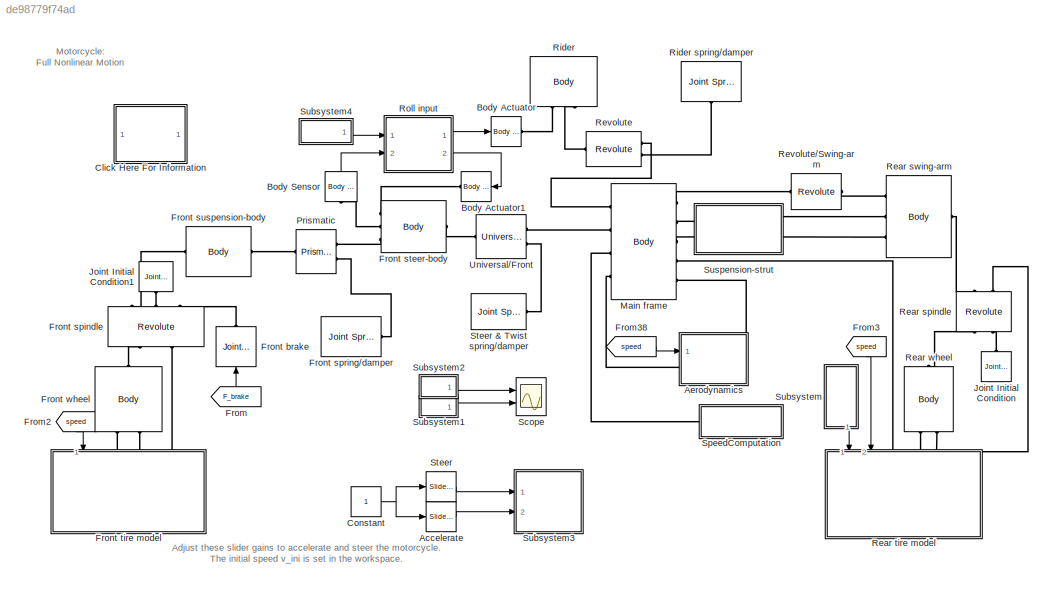
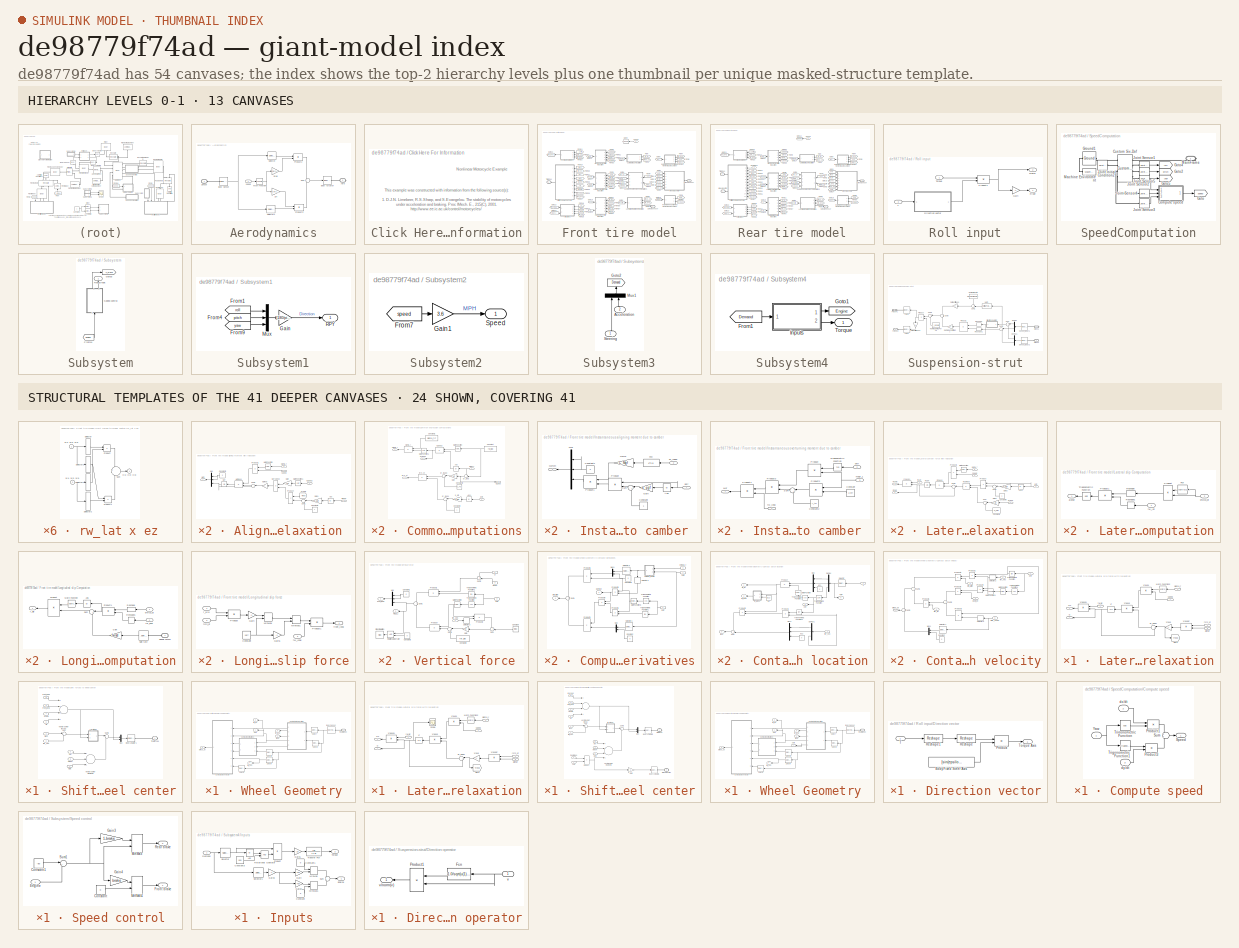
[diagram: thumbnail index - top-2 hierarchy levels (13 canvases) + 24 structural-template representatives of the remaining 41 canvases]
MODEL slx_de98779f74ad
KIND model
CONFIG AbsTol = 1e-4
CONFIG EnableMultiTasking = on
CONFIG FixedStep = 1e-3
CONFIG MaxStep = auto
CONFIG MinStep = auto
CONFIG PostLoadFcn = mech_slider_open(gcs)
CONFIG PreLoadFcn = mech_motorcycle_data_nonlinear
CONFIG RelTol = 1e-3
CONFIG SampleTimeConstraint = Unconstrained
CONFIG Solver = ode45
CONFIG SolverName = ode45
CONFIG StartTime = 0.0
CONFIG StopTime = inf
BLOCK [Reference] Accelerate  REF=simulink/Math
Operations/Slider
Gain
  Ports = [1, 1]
  SourceBlock = simulink/Math\nOperations/Slider\nGain
  SourceProductBaseCode = SL
  SourceProductName = Simulink
  SourceType = Slider Gain
  Tag = 341  295  330   98
BLOCK [SubSystem] Aerodynamics
  Ports = [1, 0, 0, 0, 0, 1, 1]
  RequestExecContextInheritance = off
  Variant = off
BLOCK [PMIOPort] Aerodynamics/Aero
  Port = 2
  Side = Right
BLOCK [Reference] Aerodynamics/Body Actuator  REF=mblibv1/Sensors & 
Actuators/Body Actuator
  Ports = [1, 0, 0, 0, 0, 0, 1]
  SourceBlock = mblibv1/Sensors & \nActuators/Body Actuator
  SourceProductBaseCode = MS
  SourceProductName = Simscape Multibody
  SourceType = Body Actuator
BLOCK [Reference] Aerodynamics/Body Sensor  REF=mblibv1/Sensors & 
Actuators/Body Sensor
  Ports = [0, 1, 0, 0, 0, 1]
  SourceBlock = mblibv1/Sensors & \nActuators/Body Sensor
  SourceProductBaseCode = MS
  SourceProductName = Simscape Multibody
  SourceType = Body Sensor
BLOCK [Gain] Aerodynamics/Drag
  Gain = -0.5*1.227*CDA
BLOCK [Gain] Aerodynamics/Lift
  Gain = -0.5*1.227*CLA
BLOCK [Math] Aerodynamics/Math Function
  Operator = square
  Ports = [1, 1]
BLOCK [Product] Aerodynamics/Product2
  Ports = [2, 1]
  RndMeth = Floor
BLOCK [Product] Aerodynamics/Product3
  Ports = [2, 1]
  RndMeth = Floor
BLOCK [Selector] Aerodynamics/Selector
  IndexOptions = Index vector (dialog)
  Indices = [1:3]
  InputPortWidth = 9
  OutputSizes = 1
  Ports = [1, 1]
BLOCK [Selector] Aerodynamics/Selector1
  IndexOptions = Index vector (dialog)
  Indices = [7:9]
  InputPortWidth = 9
  OutputSizes = 1
  Ports = [1, 1]
BLOCK [PMIOPort] Aerodynamics/Sensor
  Port = 1
  Side = Left
BLOCK [Sum] Aerodynamics/Sum
  IconShape = round
  Ports = [2, 1]
BLOCK [Inport] Aerodynamics/speed
  IconDisplay = Port number
BLOCK [Reference] Body Actuator  REF=mblibv1/Sensors & 
Actuators/Body Actuator
  Ports = [1, 0, 0, 0, 0, 0, 1]
  SourceBlock = mblibv1/Sensors & \nActuators/Body Actuator
  SourceProductBaseCode = MS
  SourceProductName = Simscape Multibody
  SourceType = Body Actuator
BLOCK [Reference] Body Actuator1  REF=mblibv1/Sensors & 
Actuators/Body Actuator
  Ports = [1, 0, 0, 0, 0, 0, 1]
  SourceBlock = mblibv1/Sensors & \nActuators/Body Actuator
  SourceProductBaseCode = MS
  SourceProductName = Simscape Multibody
  SourceType = Body Actuator
BLOCK [Reference] Body Sensor  REF=mblibv1/Sensors & 
Actuators/Body Sensor
  Ports = [0, 1, 0, 0, 0, 1]
  SourceBlock = mblibv1/Sensors & \nActuators/Body Sensor
  SourceProductBaseCode = MS
  SourceProductName = Simscape Multibody
  SourceType = Body Sensor
BLOCK [SubSystem] Click Here For Information
  Ports = []
  RequestExecContextInheritance = off
  Variant = off
BLOCK [Constant] Constant
BLOCK [From] From
  CloseFcn = tagdialog Close
  GotoTag = F_brake
BLOCK [From] From2
  CloseFcn = tagdialog Close
  GotoTag = speed
  TagVisibility = global
BLOCK [From] From3
  CloseFcn = tagdialog Close
  GotoTag = speed
  TagVisibility = global
BLOCK [From] From38
  CloseFcn = tagdialog Close
  GotoTag = speed
  TagVisibility = global
BLOCK [Reference] Front brake  REF=mblibv1/Sensors & 
Actuators/Joint Actuator
  Ports = [1, 0, 0, 0, 0, 0, 1]
  SourceBlock = mblibv1/Sensors & \nActuators/Joint Actuator
  SourceProductBaseCode = MS
  SourceProductName = Simscape Multibody
  SourceType = Joint Actuator
BLOCK [Reference] Front spindle  REF=mblibv1/Joints/Revolute
  Ports = [0, 0, 0, 0, 0, 3, 2]
  SourceBlock = mblibv1/Joints/Revolute
  SourceProductBaseCode = MS
  SourceProductName = Simscape Multibody
  SourceType = Revolute
BLOCK [Reference] Front spring//damper  REF=mblibv1/Force 
Elements/Joint Spring & Damper
  Ports = [0, 0, 0, 0, 0, 1]
  SourceBlock = mblibv1/Force \nElements/Joint Spring & Damper
  SourceProductBaseCode = MS
  SourceProductName = Simscape Multibody
  SourceType = Joint Spring & Damper
BLOCK [Reference] Front steer-body  REF=mblibv1/Bodies/Body
  Ports = [0, 0, 0, 0, 0, 1, 3]
  SourceBlock = mblibv1/Bodies/Body
  SourceProductBaseCode = MS
  SourceProductName = Simscape Multibody
  SourceType = Body
BLOCK [Reference] Front suspension-body  REF=mblibv1/Bodies/Body
  Ports = [0, 0, 0, 0, 0, 1, 1]
  SourceBlock = mblibv1/Bodies/Body
  SourceProductBaseCode = MS
  SourceProductName = Simscape Multibody
  SourceType = Body
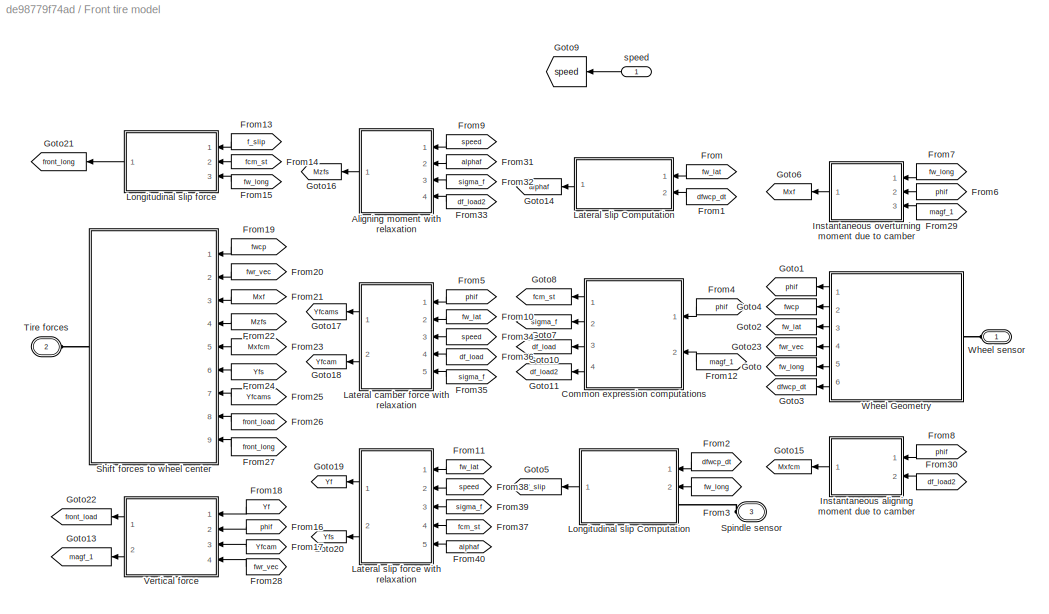
BLOCK [SubSystem] Front tire model
  Ports = [1, 0, 0, 0, 0, 3]
  RequestExecContextInheritance = off
  Variant = off
BLOCK [SubSystem] Front tire model/Aligning moment with relaxation 
  Ports = [4, 1]
  RequestExecContextInheritance = off
  Variant = off
BLOCK [Abs] Front tire model/Aligning moment with relaxation /Abs
  ZeroCross = off
BLOCK [Constant] Front tire model/Aligning moment with relaxation /Constant2
BLOCK [Constant] Front tire model/Aligning moment with relaxation /Constant3
  Value = 0
BLOCK [From] Front tire model/Aligning moment with relaxation /From3
  CloseFcn = tagdialog Close
  GotoTag = Yfexp
  TagVisibility = global
BLOCK [Gain] Front tire model/Aligning moment with relaxation /Gain
  Gain = t_pf
BLOCK [Gain] Front tire model/Aligning moment with relaxation /Gain1
  Gain = q_aaf
BLOCK [Math] Front tire model/Aligning moment with relaxation /Math Function
  Operator = reciprocal
  Ports = [1, 1]
BLOCK [Math] Front tire model/Aligning moment with relaxation /Math Function1
  Operator = sqrt
  Ports = [1, 1]
BLOCK [Mux] Front tire model/Aligning moment with relaxation /Mux
  DisplayOption = bar
  Inputs = 3
  Ports = [3, 1]
BLOCK [Integrator] Front tire model/Aligning moment with relaxation /Mzf
  Ports = [1, 1]
  ZeroCross = off
BLOCK [Gain] Front tire model/Aligning moment with relaxation /Mzfexp
  Gain = -1
BLOCK [Product] Front tire model/Aligning moment with relaxation /Mzfpexp
  Ports = [2, 1]
  RndMeth = Floor
BLOCK [Outport] Front tire model/Aligning moment with relaxation /Mzfs
  IconDisplay = Port number
BLOCK [Product] Front tire model/Aligning moment with relaxation /Mzr sdexp
  Ports = [2, 1]
  RndMeth = Floor
BLOCK [Product] Front tire model/Aligning moment with relaxation /Product
  Ports = [2, 1]
  RndMeth = Floor
BLOCK [Product] Front tire model/Aligning moment with relaxation /Product1
  Ports = [2, 1]
  RndMeth = Floor
BLOCK [Sum] Front tire model/Aligning moment with relaxation /Sum1
  IconShape = round
  Inputs = |-+
  Ports = [2, 1]
BLOCK [Sum] Front tire model/Aligning moment with relaxation /Sum2
  IconShape = round
  Inputs = |+-
  Ports = [2, 1]
BLOCK [Inport] Front tire model/Aligning moment with relaxation /alphaf
  IconDisplay = Port number
  Port = 2
BLOCK [Inport] Front tire model/Aligning moment with relaxation /df_load2
  IconDisplay = Port number
  Port = 4
BLOCK [Inport] Front tire model/Aligning moment with relaxation /sigma_f
  IconDisplay = Port number
  Port = 3
BLOCK [Inport] Front tire model/Aligning moment with relaxation /speed
  IconDisplay = Port number
BLOCK [SubSystem] Front tire model/Common expression computations
  Ports = [2, 4]
  RequestExecContextInheritance = off
  Variant = off
BLOCK [Abs] Front tire model/Common expression computations/Abs
  ZeroCross = off
BLOCK [Abs] Front tire model/Common expression computations/Abs1
  ZeroCross = off
BLOCK [Constant] Front tire model/Common expression computations/Constant
  Value = fw_ld0
BLOCK [Constant] Front tire model/Common expression computations/Constant1
  Value = sigma_fyf
BLOCK [Constant] Front tire model/Common expression computations/Constant2
BLOCK [Constant] Front tire model/Common expression computations/Constant3
  Value = C_Faf
BLOCK [Gain] Front tire model/Common expression computations/Gain
  Gain = n_af
BLOCK [Math] Front tire model/Common expression computations/Math Function
  Operator = reciprocal
  Ports = [1, 1]
BLOCK [Math] Front tire model/Common expression computations/Math Function1
  Operator = sqrt
  Ports = [1, 1]
BLOCK [Outport] Front tire model/Common expression computations/df_load  
  IconDisplay = Port number
  Port = 3
BLOCK [Product] Front tire model/Common expression computations/df_load2
  Ports = [2, 1]
  RndMeth = Floor
BLOCK [Outport] Front tire model/Common expression computations/df_load2 
  IconDisplay = Port number
  Port = 4
BLOCK [Sum] Front tire model/Common expression computations/dr_load
  IconShape = round
  Inputs = --|
  Ports = [2, 1]
BLOCK [Sum] Front tire model/Common expression computations/dr_load3
  IconShape = round
  Inputs = |++
  Ports = [2, 1]
BLOCK [Sum] Front tire model/Common expression computations/dr_load4
  IconShape = round
  Inputs = |-+
  Ports = [2, 1]
BLOCK [Product] Front tire model/Common expression computations/fcrn_st
  Ports = [2, 1]
  RndMeth = Floor
BLOCK [Outport] Front tire model/Common expression computations/fcrn_st 
  IconDisplay = Port number
BLOCK [Inport] Front tire model/Common expression computations/magf_1
  IconDisplay = Port number
  Port = 2
BLOCK [Gain] Front tire model/Common expression computations/p_a  fa
  Gain = p_agf
BLOCK [Inport] Front tire model/Common expression computations/phif
  IconDisplay = Port number
BLOCK [Outport] Front tire model/Common expression computations/sigma_f 
  IconDisplay = Port number
  Port = 2
BLOCK [Product] Front tire model/Common expression computations/sigma_r
  Ports = [2, 1]
  RndMeth = Floor
BLOCK [From] Front tire model/From
  CloseFcn = tagdialog Close
  GotoTag = fw_lat
BLOCK [From] Front tire model/From1
  CloseFcn = tagdialog Close
  GotoTag = dfwcp_dt
BLOCK [From] Front tire model/From10
  CloseFcn = tagdialog Close
  GotoTag = fw_lat
BLOCK [From] Front tire model/From11
  CloseFcn = tagdialog Close
  GotoTag = fw_lat
BLOCK [From] Front tire model/From12
  CloseFcn = tagdialog Close
  GotoTag = magf_1
  TagVisibility = global
BLOCK [From] Front tire model/From13
  CloseFcn = tagdialog Close
  GotoTag = f_slip
  TagVisibility = global
BLOCK [From] Front tire model/From14
  CloseFcn = tagdialog Close
  GotoTag = fcrn_st
  TagVisibility = global
BLOCK [From] Front tire model/From15
  CloseFcn = tagdialog Close
  GotoTag = fw_long
  TagVisibility = global
BLOCK [From] Front tire model/From16
  CloseFcn = tagdialog Close
  GotoTag = phif
BLOCK [From] Front tire model/From17
  CloseFcn = tagdialog Close
  GotoTag = Yfcam
  TagVisibility = global
BLOCK [From] Front tire model/From18
  CloseFcn = tagdialog Close
  GotoTag = Yf
  TagVisibility = global
BLOCK [From] Front tire model/From19
  CloseFcn = tagdialog Close
  GotoTag = fwcp
BLOCK [From] Front tire model/From2
  CloseFcn = tagdialog Close
  GotoTag = dfwcp_dt
BLOCK [From] Front tire model/From20
  CloseFcn = tagdialog Close
  GotoTag = fwr_vec
BLOCK [From] Front tire model/From21
  CloseFcn = tagdialog Close
  GotoTag = Mxf
  TagVisibility = global
BLOCK [From] Front tire model/From22
  CloseFcn = tagdialog Close
  GotoTag = Mzfs
  TagVisibility = global
BLOCK [From] Front tire model/From23
  CloseFcn = tagdialog Close
  GotoTag = Mxfcm
  TagVisibility = global
BLOCK [From] Front tire model/From24
  CloseFcn = tagdialog Close
  GotoTag = Yfs
  TagVisibility = global
BLOCK [From] Front tire model/From25
  CloseFcn = tagdialog Close
  GotoTag = Yfcams
  TagVisibility = global
BLOCK [From] Front tire model/From26
  CloseFcn = tagdialog Close
  GotoTag = front_load
  TagVisibility = global
BLOCK [From] Front tire model/From27
  CloseFcn = tagdialog Close
  GotoTag = front_long
  TagVisibility = global
BLOCK [From] Front tire model/From28
  CloseFcn = tagdialog Close
  GotoTag = fwr_vec
BLOCK [From] Front tire model/From29
  CloseFcn = tagdialog Close
  GotoTag = magf_1
  TagVisibility = global
BLOCK [From] Front tire model/From3
  CloseFcn = tagdialog Close
  GotoTag = fw_long
  TagVisibility = global
BLOCK [From] Front tire model/From30
  CloseFcn = tagdialog Close
  GotoTag = df_load2
BLOCK [From] Front tire model/From31
  CloseFcn = tagdialog Close
  GotoTag = alphaf
  TagVisibility = global
BLOCK [From] Front tire model/From32
  CloseFcn = tagdialog Close
  GotoTag = sigma_f
  TagVisibility = global
BLOCK [From] Front tire model/From33
  CloseFcn = tagdialog Close
  GotoTag = df_load2
BLOCK [From] Front tire model/From34
  CloseFcn = tagdialog Close
  GotoTag = speed
BLOCK [From] Front tire model/From35
  CloseFcn = tagdialog Close
  GotoTag = sigma_f
  TagVisibility = global
BLOCK [From] Front tire model/From36
  CloseFcn = tagdialog Close
  GotoTag = df_load
  TagVisibility = global
BLOCK [From] Front tire model/From37
  CloseFcn = tagdialog Close
  GotoTag = fcrn_st
  TagVisibility = global
BLOCK [From] Front tire model/From38
  CloseFcn = tagdialog Close
  GotoTag = speed
BLOCK [From] Front tire model/From39
  CloseFcn = tagdialog Close
  GotoTag = sigma_f
  TagVisibility = global
BLOCK [From] Front tire model/From4
  CloseFcn = tagdialog Close
  GotoTag = phif
BLOCK [From] Front tire model/From40
  CloseFcn = tagdialog Close
  GotoTag = alphaf
  TagVisibility = global
BLOCK [From] Front tire model/From5
  CloseFcn = tagdialog Close
  GotoTag = phif
BLOCK [From] Front tire model/From6
  CloseFcn = tagdialog Close
  GotoTag = phif
BLOCK [From] Front tire model/From7
  CloseFcn = tagdialog Close
  GotoTag = fw_long
  TagVisibility = global
BLOCK [From] Front tire model/From8
  CloseFcn = tagdialog Close
  GotoTag = phif
BLOCK [From] Front tire model/From9
  CloseFcn = tagdialog Close
  GotoTag = speed
BLOCK [Goto] Front tire model/Goto
  GotoTag = fw_long
  TagVisibility = global
BLOCK [Goto] Front tire model/Goto1
  GotoTag = phif
BLOCK [Goto] Front tire model/Goto10
  GotoTag = df_load
  TagVisibility = global
BLOCK [Goto] Front tire model/Goto11
  GotoTag = df_load2
BLOCK [Goto] Front tire model/Goto13
  GotoTag = magf_1
  TagVisibility = global
BLOCK [Goto] Front tire model/Goto14
  GotoTag = alphaf
  TagVisibility = global
BLOCK [Goto] Front tire model/Goto15
  GotoTag = Mxfcm
  TagVisibility = global
BLOCK [Goto] Front tire model/Goto16
  GotoTag = Mzfs
  TagVisibility = global
BLOCK [Goto] Front tire model/Goto17
  GotoTag = Yfcams
  TagVisibility = global
BLOCK [Goto] Front tire model/Goto18
  GotoTag = Yfcam
  TagVisibility = global
BLOCK [Goto] Front tire model/Goto19
  GotoTag = Yf
  TagVisibility = global
BLOCK [Goto] Front tire model/Goto2
  GotoTag = fw_lat
BLOCK [Goto] Front tire model/Goto20
  GotoTag = Yfs
  TagVisibility = global
BLOCK [Goto] Front tire model/Goto21
  GotoTag = front_long
  TagVisibility = global
BLOCK [Goto] Front tire model/Goto22
  GotoTag = front_load
  TagVisibility = global
BLOCK [Goto] Front tire model/Goto23
  GotoTag = fwr_vec
BLOCK [Goto] Front tire model/Goto3
  GotoTag = dfwcp_dt
BLOCK [Goto] Front tire model/Goto4
  GotoTag = fwcp
BLOCK [Goto] Front tire model/Goto5
  GotoTag = f_slip
  TagVisibility = global
BLOCK [Goto] Front tire model/Goto6
  GotoTag = Mxf
  TagVisibility = global
BLOCK [Goto] Front tire model/Goto7
  GotoTag = sigma_f
  TagVisibility = global
BLOCK [Goto] Front tire model/Goto8
  GotoTag = fcrn_st
  TagVisibility = global
BLOCK [Goto] Front tire model/Goto9
  GotoTag = speed
BLOCK [SubSystem] Front tire model/Instantaneous aligning moment due to camber 
  Ports = [2, 1]
  RequestExecContextInheritance = off
  Variant = off
BLOCK [Abs] Front tire model/Instantaneous aligning moment due to camber /Abs
  ZeroCross = off
BLOCK [Constant] Front tire model/Instantaneous aligning moment due to camber /Constant
BLOCK [Constant] Front tire model/Instantaneous aligning moment due to camber /Constant1
  Value = 0
BLOCK [Fcn] Front tire model/Instantaneous aligning moment due to camber /Fcn
  Expr = u^2.5
BLOCK [Gain] Front tire model/Instantaneous aligning moment due to camber /Gain
  Gain = q_ggf
BLOCK [Gain] Front tire model/Instantaneous aligning moment due to camber /Gain1
  Gain = C_Mgf
BLOCK [Mux] Front tire model/Instantaneous aligning moment due to camber /Mux
  DisplayOption = bar
  Inputs = 3
  Ports = [3, 1]
BLOCK [Outport] Front tire model/Instantaneous aligning moment due to camber /Mzfcm
  IconDisplay = Port number
BLOCK [Product] Front tire model/Instantaneous aligning moment due to camber /Product
  Ports = [2, 1]
  RndMeth = Floor
BLOCK [Product] Front tire model/Instantaneous aligning moment due to camber /Product1
  Ports = [2, 1]
  RndMeth = Floor
BLOCK [Sum] Front tire model/Instantaneous aligning moment due to camber /Sum
  IconShape = round
  Inputs = |++
  Ports = [2, 1]
BLOCK [Inport] Front tire model/Instantaneous aligning moment due to camber /df_load2
  IconDisplay = Port number
  Port = 2
BLOCK [Inport] Front tire model/Instantaneous aligning moment due to camber /phif
  IconDisplay = Port number
BLOCK [SubSystem] Front tire model/Instantaneous overturning moment due to camber 
  Ports = [3, 1]
  RequestExecContextInheritance = off
  Variant = off
BLOCK [Constant] Front tire model/Instantaneous overturning moment due to camber /Constant
  Value = 1/Ktf
BLOCK [Constant] Front tire model/Instantaneous overturning moment due to camber /Constant2
  Value = r_tcf
BLOCK [Outport] Front tire model/Instantaneous overturning moment due to camber /Mxf
  IconDisplay = Port number
BLOCK [Product] Front tire model/Instantaneous overturning moment due to camber /Product
  Ports = [2, 1]
  RndMeth = Floor
BLOCK [Product] Front tire model/Instantaneous overturning moment due to camber /Product2
  Ports = [2, 1]
  RndMeth = Floor
BLOCK [Product] Front tire model/Instantaneous overturning moment due to camber /Product3
  Ports = [2, 1]
  RndMeth = Floor
BLOCK [Product] Front tire model/Instantaneous overturning moment due to camber /Product4
  Ports = [2, 1]
  RndMeth = Floor
BLOCK [Sum] Front tire model/Instantaneous overturning moment due to camber /Sum
  IconShape = round
  Inputs = |++
  Ports = [2, 1]
BLOCK [Trigonometry] Front tire model/Instantaneous overturning moment due to camber /Trigonometric Function
  Operator = tan
  Ports = [1, 1]
BLOCK [Inport] Front tire model/Instantaneous overturning moment due to camber /fw_long
  IconDisplay = Port number
BLOCK [Inport] Front tire model/Instantaneous overturning moment due to camber /magf_1
  IconDisplay = Port number
  Port = 3
BLOCK [Inport] Front tire model/Instantaneous overturning moment due to camber /phif
  IconDisplay = Port number
  Port = 2
BLOCK [SubSystem] Front tire model/Lateral camber force with relaxation 
  Ports = [5, 2]
  RequestExecContextInheritance = off
  Variant = off
BLOCK [Abs] Front tire model/Lateral camber force with relaxation /Abs2
  ZeroCross = off
BLOCK [Constant] Front tire model/Lateral camber force with relaxation /Constant4
  Value = C_Fgf
BLOCK [Constant] Front tire model/Lateral camber force with relaxation /Constant5
BLOCK [Gain] Front tire model/Lateral camber force with relaxation /Gain1
  Gain = n_gf
BLOCK [Gain] Front tire model/Lateral camber force with relaxation /Gain2
  Gain = p_ggf
BLOCK [Math] Front tire model/Lateral camber force with relaxation /Math Function
  Operator = reciprocal
  Ports = [1, 1]
BLOCK [Product] Front tire model/Lateral camber force with relaxation /Product
  Ports = [2, 1]
  RndMeth = Floor
BLOCK [Product] Front tire model/Lateral camber force with relaxation /Product1
  Ports = [2, 1]
  RndMeth = Floor
BLOCK [Sum] Front tire model/Lateral camber force with relaxation /Sum
  IconShape = round
  Inputs = |++
  Ports = [2, 1]
BLOCK [Sum] Front tire model/Lateral camber force with relaxation /Sum1
  IconShape = round
  Inputs = |-+
  Ports = [2, 1]
BLOCK [Sum] Front tire model/Lateral camber force with relaxation /Sum2
  IconShape = round
  Inputs = |+-
  Ports = [2, 1]
BLOCK [Integrator] Front tire model/Lateral camber force with relaxation /Yfcam
  Ports = [1, 1]
  ZeroCross = off
BLOCK [Outport] Front tire model/Lateral camber force with relaxation /Yfcam 
  IconDisplay = Port number
  Port = 2
BLOCK [Product] Front tire model/Lateral camber force with relaxation /Yfcamexp  
  Ports = [2, 1]
  RndMeth = Floor
BLOCK [Outport] Front tire model/Lateral camber force with relaxation /Yfcams
  IconDisplay = Port number
BLOCK [Product] Front tire model/Lateral camber force with relaxation /Yfcpexp
  Ports = [2, 1]
  RndMeth = Floor
BLOCK [Product] Front tire model/Lateral camber force with relaxation /Yrpexp1
  Ports = [2, 1]
  RndMeth = Floor
BLOCK [Inport] Front tire model/Lateral camber force with relaxation /df_load
  IconDisplay = Port number
  Port = 4
BLOCK [Inport] Front tire model/Lateral camber force with relaxation /fw_lat
  IconDisplay = Port number
  Port = 2
BLOCK [Inport] Front tire model/Lateral camber force with relaxation /phif
  IconDisplay = Port number
BLOCK [Inport] Front tire model/Lateral camber force with relaxation /sigma_f
  IconDisplay = Port number
  Port = 5
BLOCK [Inport] Front tire model/Lateral camber force with relaxation /speed
  IconDisplay = Port number
  Port = 3
BLOCK [SubSystem] Front tire model/Lateral slip Computation
  Ports = [2, 1]
  RequestExecContextInheritance = off
  Variant = off
BLOCK [Fcn] Front tire model/Lateral slip Computation/Fcn
  Expr = 1.0/sqrt(u[1]*u[1] + u[2]*u[2] + u[3]*u[3])
BLOCK [Product] Front tire model/Lateral slip Computation/Product
  Ports = [2, 1]
  RndMeth = Floor
BLOCK [Product] Front tire model/Lateral slip Computation/Product1
  Multiplication = Matrix(*)
  Ports = [2, 1]
  RndMeth = Floor
BLOCK [Reshape] Front tire model/Lateral slip Computation/Reshape
  OutputDimensionality = Row vector (2-D)
  Ports = [1, 1]
BLOCK [Reshape] Front tire model/Lateral slip Computation/Reshape1
  OutputDimensionality = Column vector (2-D)
  Ports = [1, 1]
BLOCK [Trigonometry] Front tire model/Lateral slip Computation/Trigonometric Function
  Operator = asin
  Ports = [1, 1]
BLOCK [Outport] Front tire model/Lateral slip Computation/alphaf
  IconDisplay = Port number
BLOCK [Inport] Front tire model/Lateral slip Computation/dfwcp_dt
  IconDisplay = Port number
  Port = 2
BLOCK [Inport] Front tire model/Lateral slip Computation/fw_lat
  IconDisplay = Port number
BLOCK [SubSystem] Front tire model/Lateral slip force with relaxation
  Ports = [5, 2]
  RequestExecContextInheritance = off
  Variant = off
BLOCK [Goto] Front tire model/Lateral slip force with relaxation/Goto
  GotoTag = Yfexp
  TagVisibility = global
BLOCK [Math] Front tire model/Lateral slip force with relaxation/Math Function2
  Operator = reciprocal
  Ports = [1, 1]
BLOCK [Integrator] Front tire model/Lateral slip force with relaxation/Yf
  Ports = [1, 1]
  ZeroCross = off
BLOCK [Outport] Front tire model/Lateral slip force with relaxation/Yf 
  IconDisplay = Port number
BLOCK [Gain] Front tire model/Lateral slip force with relaxation/Yfexp
  Gain = -1
BLOCK [Product] Front tire model/Lateral slip force with relaxation/Yfpexp
  Ports = [2, 1]
  RndMeth = Floor
BLOCK [Outport] Front tire model/Lateral slip force with relaxation/Yfs
  IconDisplay = Port number
  Port = 2
BLOCK [Product] Front tire model/Lateral slip force with relaxation/Yrexp1
  Ports = [2, 1]
  RndMeth = Floor
BLOCK [Product] Front tire model/Lateral slip force with relaxation/Yrexpaf
  Ports = [2, 1]
  RndMeth = Floor
BLOCK [Product] Front tire model/Lateral slip force with relaxation/Yrpexp1
  Ports = [2, 1]
  RndMeth = Floor
BLOCK [Inport] Front tire model/Lateral slip force with relaxation/alphaf
  IconDisplay = Port number
  Port = 5
BLOCK [Sum] Front tire model/Lateral slip force with relaxation/dr_load1
  IconShape = round
  Inputs = |+-
  Ports = [2, 1]
BLOCK [Inport] Front tire model/Lateral slip force with relaxation/fcrn_st
  IconDisplay = Port number
  Port = 4
BLOCK [Inport] Front tire model/Lateral slip force with relaxation/fw_lat
  IconDisplay = Port number
BLOCK [Inport] Front tire model/Lateral slip force with relaxation/sigma_f
  IconDisplay = Port number
  Port = 3
BLOCK [Inport] Front tire model/Lateral slip force with relaxation/speed
  IconDisplay = Port number
  Port = 2
BLOCK [SubSystem] Front tire model/Longitudinal slip Computation
  Ports = [2, 1, 0, 0, 0, 1]
  RequestExecContextInheritance = off
  Variant = off
BLOCK [Abs] Front tire model/Longitudinal slip Computation/Abs
  ZeroCross = off
BLOCK [Gain] Front tire model/Longitudinal slip Computation/Gain
  Gain = fwrad
BLOCK [Math] Front tire model/Longitudinal slip Computation/Math Function
  Operator = reciprocal
  Ports = [1, 1]
BLOCK [Product] Front tire model/Longitudinal slip Computation/Product
  Ports = [2, 1]
  RndMeth = Floor
BLOCK [Product] Front tire model/Longitudinal slip Computation/Product1
  Multiplication = Matrix(*)
  Ports = [2, 1]
  RndMeth = Floor
BLOCK [Reshape] Front tire model/Longitudinal slip Computation/Reshape
  OutputDimensionality = Row vector (2-D)
  Ports = [1, 1]
BLOCK [Reshape] Front tire model/Longitudinal slip Computation/Reshape1
  OutputDimensionality = Column vector (2-D)
  Ports = [1, 1]
BLOCK [Reference] Front tire model/Longitudinal slip Computation/Spin rate  REF=mblibv1/Sensors & 
Actuators/Joint Sensor
  Ports = [0, 1, 0, 0, 0, 1]
  SourceBlock = mblibv1/Sensors & \nActuators/Joint Sensor
  SourceProductBaseCode = MS
  SourceProductName = Simscape Multibody
  SourceType = Joint Sensor
BLOCK [PMIOPort] Front tire model/Longitudinal slip Computation/Spindle sensor
  Port = 1
  Side = Left
  Tag = PMCPort
BLOCK [Sum] Front tire model/Longitudinal slip Computation/Sum
  IconShape = round
  Inputs = |++
  Ports = [2, 1]
BLOCK [Inport] Front tire model/Longitudinal slip Computation/dfwcp_dt
  IconDisplay = Port number
BLOCK [Outport] Front tire model/Longitudinal slip Computation/f_slip
  IconDisplay = Port number
BLOCK [Inport] Front tire model/Longitudinal slip Computation/fw_long
  IconDisplay = Port number
  Port = 2
BLOCK [SubSystem] Front tire model/Longitudinal slip force
  Ports = [3, 1]
  RequestExecContextInheritance = off
  Variant = off
BLOCK [Constant] Front tire model/Longitudinal slip force/Constant
  Value = satf
BLOCK [Gain] Front tire model/Longitudinal slip force/Gain
  Gain = -1
BLOCK [Gain] Front tire model/Longitudinal slip force/Gain1
  Gain = -1
BLOCK [MinMax] Front tire model/Longitudinal slip force/MinMax
  Inputs = 2
  Ports = [2, 1]
  ZeroCross = off
BLOCK [MinMax] Front tire model/Longitudinal slip force/MinMax1
  Function = max
  Inputs = 2
  Ports = [2, 1]
  ZeroCross = off
BLOCK [Product] Front tire model/Longitudinal slip force/Product
  Ports = [2, 1]
  RndMeth = Floor
BLOCK [Product] Front tire model/Longitudinal slip force/Product1
  Ports = [2, 1]
  RndMeth = Floor
BLOCK [Inport] Front tire model/Longitudinal slip force/f_slip
  IconDisplay = Port number
BLOCK [Inport] Front tire model/Longitudinal slip force/fcrn_st
  IconDisplay = Port number
  Port = 2
BLOCK [Outport] Front tire model/Longitudinal slip force/front_long
  IconDisplay = Port number
BLOCK [Inport] Front tire model/Longitudinal slip force/fw_long
  IconDisplay = Port number
  Port = 3
BLOCK [SubSystem] Front tire model/Shift forces to wheel center
  Ports = [9, 0, 0, 0, 0, 0, 1]
  RequestExecContextInheritance = off
  Variant = off
BLOCK [Reference] Front tire model/Shift forces to wheel center/Body Actuator1  REF=mblibv1/Sensors & 
Actuators/Body Actuator
  Ports = [1, 0, 0, 0, 0, 0, 1]
  SourceBlock = mblibv1/Sensors & \nActuators/Body Actuator
  SourceProductBaseCode = MS
  SourceProductName = Simscape Multibody
  SourceType = Body Actuator
BLOCK [Mux] Front tire model/Shift forces to wheel center/Mux
  DisplayOption = bar
  Inputs = 2
  Ports = [2, 1]
BLOCK [Inport] Front tire model/Shift forces to wheel center/Mxf
  IconDisplay = Port number
  Port = 3
BLOCK [Inport] Front tire model/Shift forces to wheel center/Mxfcm
  IconDisplay = Port number
  Port = 5
BLOCK [Inport] Front tire model/Shift forces to wheel center/Mzfs
  IconDisplay = Port number
  Port = 4
BLOCK [Sum] Front tire model/Shift forces to wheel center/Sum
  IconShape = round
  Inputs = |+-
  Ports = [2, 1]
BLOCK [Sum] Front tire model/Shift forces to wheel center/Sum3
  IconShape = round
  Inputs = |++
  Ports = [2, 1]
BLOCK [PMIOPort] Front tire model/Shift forces to wheel center/Tire forces
  Port = 1
  Side = Right
  Tag = PMCPort
BLOCK [Sum] Front tire model/Shift forces to wheel center/Vector sum of forces
  Inputs = ++++
  Ports = [4, 1]
BLOCK [Sum] Front tire model/Shift forces to wheel center/Vector sum of moments
  Inputs = +++
  Ports = [3, 1]
BLOCK [Inport] Front tire model/Shift forces to wheel center/Yfcams
  IconDisplay = Port number
  Port = 7
BLOCK [Inport] Front tire model/Shift forces to wheel center/Yfs
  IconDisplay = Port number
  Port = 6
BLOCK [Inport] Front tire model/Shift forces to wheel center/front_load
  IconDisplay = Port number
  Port = 8
BLOCK [Inport] Front tire model/Shift forces to wheel center/front_long
  IconDisplay = Port number
  Port = 9
BLOCK [Inport] Front tire model/Shift forces to wheel center/fwcp
  IconDisplay = Port number
BLOCK [Inport] Front tire model/Shift forces to wheel center/fwr_vec
  IconDisplay = Port number
  Port = 2
BLOCK [SubSystem] Front tire model/Shift forces to wheel center/rw_lat x ez
  Ports = [2, 1]
  RequestExecContextInheritance = off
  ShowPortLabels = none
  Variant = off
BLOCK [Product] Front tire model/Shift forces to wheel center/rw_lat x ez/Product
  Ports = [2, 1]
BLOCK [Product] Front tire model/Shift forces to wheel center/rw_lat x ez/Product1
  Ports = [2, 1]
BLOCK [Selector] Front tire model/Shift forces to wheel center/rw_lat x ez/Selector
  IndexOptions = Index vector (dialog)
  Indices = [2 3 1]
  InputPortWidth = 3
  OutputSizes = 1
  Ports = [1, 1]
BLOCK [Selector] Front tire model/Shift forces to wheel center/rw_lat x ez/Selector1
  IndexOptions = Index vector (dialog)
  Indices = [3 1 2]
  InputPortWidth = 3
  OutputSizes = 1
  Ports = [1, 1]
BLOCK [Selector] Front tire model/Shift forces to wheel center/rw_lat x ez/Selector2
  IndexOptions = Index vector (dialog)
  Indices = [2 3 1]
  InputPortWidth = 3
  OutputSizes = 1
  Ports = [1, 1]
BLOCK [Selector] Front tire model/Shift forces to wheel center/rw_lat x ez/Selector3
  IndexOptions = Index vector (dialog)
  Indices = [3 1 2]
  InputPortWidth = 3
  OutputSizes = 1
  Ports = [1, 1]
BLOCK [Sum] Front tire model/Shift forces to wheel center/rw_lat x ez/Sum
  IconShape = round
  Inputs = +|-
  Ports = [2, 1]
BLOCK [Inport] Front tire model/Shift forces to wheel center/rw_lat x ez/a(1) a(2) a(3)
  IconDisplay = Port number
BLOCK [Inport] Front tire model/Shift forces to wheel center/rw_lat x ez/b(1) b(2) b(3)
  IconDisplay = Port number
  Port = 2
BLOCK [Outport] Front tire model/Shift forces to wheel center/rw_lat x ez/c(1) c(2) c(3)
  IconDisplay = Port number
  InitialOutput = 0
BLOCK [PMIOPort] Front tire model/Spindle sensor
  Port = 3
  Side = Left
  Tag = PMCPort
BLOCK [PMIOPort] Front tire model/Tire forces
  Port = 2
  Side = Left
  Tag = PMCPort
BLOCK [SubSystem] Front tire model/Vertical force
  Ports = [4, 2]
  RequestExecContextInheritance = off
  Variant = off
BLOCK [Constant] Front tire model/Vertical force/Constant
  Value = fwrad
BLOCK [Constant] Front tire model/Vertical force/Constant1
  Value = 0
BLOCK [Constant] Front tire model/Vertical force/Constant2
  Value = fw_ld0
BLOCK [Constant] Front tire model/Vertical force/Constant3
  Value = 0
BLOCK [Gain] Front tire model/Vertical force/Gain
  Gain = Ktf
BLOCK [Math] Front tire model/Vertical force/Math Function
  Operator = reciprocal
  Ports = [1, 1]
BLOCK [Mux] Front tire model/Vertical force/Mux
  DisplayOption = bar
  Inputs = 3
  Ports = [3, 1]
BLOCK [Product] Front tire model/Vertical force/Product
  Ports = [2, 1]
  RndMeth = Floor
BLOCK [Product] Front tire model/Vertical force/Product1
  Ports = [2, 1]
  RndMeth = Floor
BLOCK [Product] Front tire model/Vertical force/Product2
  Ports = [2, 1]
  RndMeth = Floor
BLOCK [RelationalOperator] Front tire model/Vertical force/Relational Operator
  Ports = [2, 1]
  ZeroCross = off
BLOCK [Selector] Front tire model/Vertical force/Selector3
  IndexOptions = Index vector (dialog)
  Indices = 3
  InputPortWidth = 3
  OutputSizes = 1
  Ports = [1, 1]
BLOCK [Stop] Front tire model/Vertical force/Stop Simulation
BLOCK [Sum] Front tire model/Vertical force/Sum
  IconShape = round
  Inputs = ++|
  Ports = [2, 1]
BLOCK [Sum] Front tire model/Vertical force/Sum1
  IconShape = round
  Inputs = +-
  Ports = [2, 1]
BLOCK [Sum] Front tire model/Vertical force/Sum2
  IconShape = round
  Ports = [2, 1]
BLOCK [Sum] Front tire model/Vertical force/Sum3
  IconShape = round
  Inputs = |++
  Ports = [2, 1]
BLOCK [Trigonometry] Front tire model/Vertical force/Trigonometric Function
  Operator = cos
  Ports = [1, 1]
BLOCK [Trigonometry] Front tire model/Vertical force/Trigonometric Function1
  Operator = tan
  Ports = [1, 1]
BLOCK [Inport] Front tire model/Vertical force/Yf
  IconDisplay = Port number
BLOCK [Inport] Front tire model/Vertical force/Yfcam
  IconDisplay = Port number
  Port = 3
BLOCK [Outport] Front tire model/Vertical force/front_load
  IconDisplay = Port number
BLOCK [Inport] Front tire model/Vertical force/fwr_vec
  IconDisplay = Port number
  Port = 4
BLOCK [Outport] Front tire model/Vertical force/magf_1 
  IconDisplay = Port number
  Port = 2
BLOCK [Inport] Front tire model/Vertical force/phif
  IconDisplay = Port number
  Port = 2
BLOCK [SubSystem] Front tire model/Wheel Geometry
  Ports = [0, 6, 0, 0, 0, 1]
  RequestExecContextInheritance = off
  Variant = off
BLOCK [Reference] Front tire model/Wheel Geometry/Body Sensor  REF=mblibv1/Sensors & 
Actuators/Body Sensor
  Ports = [0, 1, 0, 0, 0, 1]
  SourceBlock = mblibv1/Sensors & \nActuators/Body Sensor
  SourceProductBaseCode = MS
  SourceProductName = Simscape Multibody
  SourceType = Body Sensor
BLOCK [SubSystem] Front tire model/Wheel Geometry/Compute derivatives
  Ports = [3, 2]
  RequestExecContextInheritance = off
  Variant = off
BLOCK [Constant] Front tire model/Wheel Geometry/Compute derivatives/Constant
  Value = 0
BLOCK [Constant] Front tire model/Wheel Geometry/Compute derivatives/Constant1
  Value = 0
BLOCK [Math] Front tire model/Wheel Geometry/Compute derivatives/Math Function3
  Operator = reciprocal
  Ports = [1, 1]
BLOCK [Mux] Front tire model/Wheel Geometry/Compute derivatives/Mux
  DisplayOption = bar
  Inputs = 2
  Ports = [2, 1]
BLOCK [Mux] Front tire model/Wheel Geometry/Compute derivatives/Mux1
  DisplayOption = bar
  Inputs = 2
  Ports = [2, 1]
BLOCK [Product] Front tire model/Wheel Geometry/Compute derivatives/Product1
  Ports = [2, 1]
  RndMeth = Floor
BLOCK [Product] Front tire model/Wheel Geometry/Compute derivatives/Product5
  Ports = [2, 1]
  RndMeth = Floor
BLOCK [Product] Front tire model/Wheel Geometry/Compute derivatives/Product6
  Ports = [2, 1]
  RndMeth = Floor
BLOCK [Product] Front tire model/Wheel Geometry/Compute derivatives/Product8
  Ports = [2, 1]
  RndMeth = Floor
BLOCK [Product] Front tire model/Wheel Geometry/Compute derivatives/Product9
  Ports = [2, 1]
  RndMeth = Floor
BLOCK [Selector] Front tire model/Wheel Geometry/Compute derivatives/Selector1
  IndexOptions = Index vector (dialog)
  Indices = [1 2]
  InputPortWidth = 3
  OutputSizes = 1
  Ports = [1, 1]
BLOCK [Selector] Front tire model/Wheel Geometry/Compute derivatives/Selector2
  IndexOptions = Index vector (dialog)
  Indices = [1 2]
  InputPortWidth = 3
  OutputSizes = 1
  Ports = [1, 1]
BLOCK [Selector] Front tire model/Wheel Geometry/Compute derivatives/Selector3
  IndexOptions = Index vector (dialog)
  Indices = 3
  InputPortWidth = 3
  OutputSizes = 1
  Ports = [1, 1]
BLOCK [Sum] Front tire model/Wheel Geometry/Compute derivatives/Sum1
  IconShape = round
  Ports = [2, 1]
BLOCK [Trigonometry] Front tire model/Wheel Geometry/Compute derivatives/Trigonometric Function
  Operator = cos
  Ports = [1, 1]
BLOCK [Trigonometry] Front tire model/Wheel Geometry/Compute derivatives/Trigonometric Function1
  Operator = tan
  Ports = [1, 1]
BLOCK [Outport] Front tire model/Wheel Geometry/Compute derivatives/dfw_lat//dt
  IconDisplay = Port number
BLOCK [Outport] Front tire model/Wheel Geometry/Compute derivatives/dphif_dt
  IconDisplay = Port number
  Port = 2
BLOCK [Inport] Front tire model/Wheel Geometry/Compute derivatives/omega_f
  IconDisplay = Port number
  Port = 3
BLOCK [SubSystem] Front tire model/Wheel Geometry/Compute derivatives/omega_f x spin
  Ports = [2, 1]
  RequestExecContextInheritance = off
  ShowPortLabels = none
  Variant = off
BLOCK [Product] Front tire model/Wheel Geometry/Compute derivatives/omega_f x spin/Product
  Ports = [2, 1]
BLOCK [Product] Front tire model/Wheel Geometry/Compute derivatives/omega_f x spin/Product1
  Ports = [2, 1]
BLOCK [Selector] Front tire model/Wheel Geometry/Compute derivatives/omega_f x spin/Selector
  IndexOptions = Index vector (dialog)
  Indices = [2 3 1]
  InputPortWidth = 3
  OutputSizes = 1
  Ports = [1, 1]
BLOCK [Selector] Front tire model/Wheel Geometry/Compute derivatives/omega_f x spin/Selector1
  IndexOptions = Index vector (dialog)
  Indices = [3 1 2]
  InputPortWidth = 3
  OutputSizes = 1
  Ports = [1, 1]
BLOCK [Selector] Front tire model/Wheel Geometry/Compute derivatives/omega_f x spin/Selector2
  IndexOptions = Index vector (dialog)
  Indices = [2 3 1]
  InputPortWidth = 3
  OutputSizes = 1
  Ports = [1, 1]
BLOCK [Selector] Front tire model/Wheel Geometry/Compute derivatives/omega_f x spin/Selector3
  IndexOptions = Index vector (dialog)
  Indices = [3 1 2]
  InputPortWidth = 3
  OutputSizes = 1
  Ports = [1, 1]
BLOCK [Sum] Front tire model/Wheel Geometry/Compute derivatives/omega_f x spin/Sum
  IconShape = round
  Inputs = +|-
  Ports = [2, 1]
BLOCK [Inport] Front tire model/Wheel Geometry/Compute derivatives/omega_f x spin/a(1) a(2) a(3)
  IconDisplay = Port number
BLOCK [Inport] Front tire model/Wheel Geometry/Compute derivatives/omega_f x spin/b(1) b(2) b(3)
  IconDisplay = Port number
  Port = 2
BLOCK [Outport] Front tire model/Wheel Geometry/Compute derivatives/omega_f x spin/c(1) c(2) c(3)
  IconDisplay = Port number
  InitialOutput = 0
BLOCK [Inport] Front tire model/Wheel Geometry/Compute derivatives/phif
  IconDisplay = Port number
BLOCK [Inport] Front tire model/Wheel Geometry/Compute derivatives/spin
  IconDisplay = Port number
  Port = 2
BLOCK [SubSystem] Front tire model/Wheel Geometry/Contact patch location
  Ports = [2, 5]
  RequestExecContextInheritance = off
  Variant = off
BLOCK [Demux] Front tire model/Wheel Geometry/Contact patch location/Demux
  Outputs = 3
  Ports = [1, 3]
BLOCK [Demux] Front tire model/Wheel Geometry/Contact patch location/Demux1
  Outputs = 3
  Ports = [1, 3]
BLOCK [Math] Front tire model/Wheel Geometry/Contact patch location/Math Function
  Operator = reciprocal
  Ports = [1, 1]
BLOCK [Mux] Front tire model/Wheel Geometry/Contact patch location/Mux
  DisplayOption = bar
  Inputs = 3
  Ports = [3, 1]
BLOCK [Mux] Front tire model/Wheel Geometry/Contact patch location/Mux1
  DisplayOption = bar
  Inputs = 3
  Ports = [3, 1]
BLOCK [Product] Front tire model/Wheel Geometry/Contact patch location/Product
  Ports = [2, 1]
  RndMeth = Floor
BLOCK [Product] Front tire model/Wheel Geometry/Contact patch location/Product1
  Ports = [2, 1]
  RndMeth = Floor
BLOCK [Product] Front tire model/Wheel Geometry/Contact patch location/Product6
  Ports = [2, 1]
  RndMeth = Floor
BLOCK [Selector] Front tire model/Wheel Geometry/Contact patch location/Selector
  IndexOptions = Index vector (dialog)
  Indices = [4:6]
  InputPortWidth = 9
  OutputSizes = 1
  Ports = [1, 1]
BLOCK [Sum] Front tire model/Wheel Geometry/Contact patch location/Sum
  IconShape = round
  Inputs = ++|
  Ports = [2, 1]
BLOCK [Inport] Front tire model/Wheel Geometry/Contact patch location/T
  IconDisplay = Port number
BLOCK [Trigonometry] Front tire model/Wheel Geometry/Contact patch location/Trigonometric Function
  Operator = asin
  Ports = [1, 1]
BLOCK [Trigonometry] Front tire model/Wheel Geometry/Contact patch location/Trigonometric Function1
  Operator = cos
  Ports = [1, 1]
BLOCK [Trigonometry] Front tire model/Wheel Geometry/Contact patch location/Trigonometric Function2
  Operator = tan
  Ports = [1, 1]
BLOCK [Constant] Front tire model/Wheel Geometry/Contact patch location/ez 
  Value = [0,0,1]
BLOCK [Constant] Front tire model/Wheel Geometry/Contact patch location/ez 1
  Value = 0
BLOCK [Constant] Front tire model/Wheel Geometry/Contact patch location/ez 2
  Value = 0
BLOCK [Outport] Front tire model/Wheel Geometry/Contact patch location/fw_lat
  IconDisplay = Port number
BLOCK [SubSystem] Front tire model/Wheel Geometry/Contact patch location/fw_lat x ez
  Ports = [2, 1]
  RequestExecContextInheritance = off
  ShowPortLabels = none
  Variant = off
BLOCK [Product] Front tire model/Wheel Geometry/Contact patch location/fw_lat x ez/Product
  Ports = [2, 1]
BLOCK [Product] Front tire model/Wheel Geometry/Contact patch location/fw_lat x ez/Product1
  Ports = [2, 1]
BLOCK [Selector] Front tire model/Wheel Geometry/Contact patch location/fw_lat x ez/Selector
  IndexOptions = Index vector (dialog)
  Indices = [2 3 1]
  InputPortWidth = 3
  OutputSizes = 1
  Ports = [1, 1]
BLOCK [Selector] Front tire model/Wheel Geometry/Contact patch location/fw_lat x ez/Selector1
  IndexOptions = Index vector (dialog)
  Indices = [3 1 2]
  InputPortWidth = 3
  OutputSizes = 1
  Ports = [1, 1]
BLOCK [Selector] Front tire model/Wheel Geometry/Contact patch location/fw_lat x ez/Selector2
  IndexOptions = Index vector (dialog)
  Indices = [2 3 1]
  InputPortWidth = 3
  OutputSizes = 1
  Ports = [1, 1]
BLOCK [Selector] Front tire model/Wheel Geometry/Contact patch location/fw_lat x ez/Selector3
  IndexOptions = Index vector (dialog)
  Indices = [3 1 2]
  InputPortWidth = 3
  OutputSizes = 1
  Ports = [1, 1]
BLOCK [Sum] Front tire model/Wheel Geometry/Contact patch location/fw_lat x ez/Sum
  IconShape = round
  Inputs = +|-
  Ports = [2, 1]
BLOCK [Inport] Front tire model/Wheel Geometry/Contact patch location/fw_lat x ez/a(1) a(2) a(3)
  IconDisplay = Port number
BLOCK [Inport] Front tire model/Wheel Geometry/Contact patch location/fw_lat x ez/b(1) b(2) b(3)
  IconDisplay = Port number
  Port = 2
BLOCK [Outport] Front tire model/Wheel Geometry/Contact patch location/fw_lat x ez/c(1) c(2) c(3)
  IconDisplay = Port number
  InitialOutput = 0
BLOCK [Outport] Front tire model/Wheel Geometry/Contact patch location/fw_long
  IconDisplay = Port number
  Port = 2
BLOCK [Outport] Front tire model/Wheel Geometry/Contact patch location/fwcp
  IconDisplay = Port number
  Port = 3
BLOCK [Inport] Front tire model/Wheel Geometry/Contact patch location/fwr_vec
  IconDisplay = Port number
  Port = 2
BLOCK [Outport] Front tire model/Wheel Geometry/Contact patch location/phif
  IconDisplay = Port number
  Port = 4
BLOCK [Outport] Front tire model/Wheel Geometry/Contact patch location/spin
  IconDisplay = Port number
  Port = 5
BLOCK [SubSystem] Front tire model/Wheel Geometry/Contact patch velocity
  Ports = [6, 1]
  RequestExecContextInheritance = off
  Variant = off
BLOCK [Constant] Front tire model/Wheel Geometry/Contact patch velocity/Constant
  Value = 0
BLOCK [Math] Front tire model/Wheel Geometry/Contact patch velocity/Math Function
  Operator = reciprocal
  Ports = [1, 1]
BLOCK [Math] Front tire model/Wheel Geometry/Contact patch velocity/Math Function1
  Operator = square
  Ports = [1, 1]
BLOCK [Mux] Front tire model/Wheel Geometry/Contact patch velocity/Mux1
  DisplayOption = bar
  Inputs = 2
  Ports = [2, 1]
BLOCK [Product] Front tire model/Wheel Geometry/Contact patch velocity/Product1
  Ports = [2, 1]
  RndMeth = Floor
BLOCK [Product] Front tire model/Wheel Geometry/Contact patch velocity/Product2
  Ports = [2, 1]
  RndMeth = Floor
BLOCK [Product] Front tire model/Wheel Geometry/Contact patch velocity/Product3
  Ports = [2, 1]
  RndMeth = Floor
BLOCK [Product] Front tire model/Wheel Geometry/Contact patch velocity/Product4
  Ports = [2, 1]
  RndMeth = Floor
BLOCK [Product] Front tire model/Wheel Geometry/Contact patch velocity/Product5
  Ports = [2, 1]
  RndMeth = Floor
BLOCK [Product] Front tire model/Wheel Geometry/Contact patch velocity/Product6
  Ports = [2, 1]
  RndMeth = Floor
BLOCK [Selector] Front tire model/Wheel Geometry/Contact patch velocity/Selector1
  IndexOptions = Index vector (dialog)
  Indices = [1 2]
  InputPortWidth = 3
  OutputSizes = 1
  Ports = [1, 1]
BLOCK [Selector] Front tire model/Wheel Geometry/Contact patch velocity/Selector2
  IndexOptions = Index vector (dialog)
  Indices = 3
  InputPortWidth = 3
  OutputSizes = 1
  Ports = [1, 1]
BLOCK [Selector] Front tire model/Wheel Geometry/Contact patch velocity/Selector3
  IndexOptions = Index vector (dialog)
  Indices = 3
  InputPortWidth = 3
  OutputSizes = 1
  Ports = [1, 1]
BLOCK [Sum] Front tire model/Wheel Geometry/Contact patch velocity/Sum1
  IconShape = round
  Ports = [2, 1]
BLOCK [Sum] Front tire model/Wheel Geometry/Contact patch velocity/Sum2
  IconShape = round
  Ports = [2, 1]
BLOCK [Sum] Front tire model/Wheel Geometry/Contact patch velocity/Sum3
  IconShape = round
  Ports = [2, 1]
BLOCK [Trigonometry] Front tire model/Wheel Geometry/Contact patch velocity/Trigonometric Function
  Operator = tan
  Ports = [1, 1]
BLOCK [Trigonometry] Front tire model/Wheel Geometry/Contact patch velocity/Trigonometric Function1
  Operator = cos
  Ports = [1, 1]
BLOCK [Inport] Front tire model/Wheel Geometry/Contact patch velocity/dfw_lat//dt
  IconDisplay = Port number
  Port = 3
BLOCK [Outport] Front tire model/Wheel Geometry/Contact patch velocity/dfwcp_dt
  IconDisplay = Port number
BLOCK [Inport] Front tire model/Wheel Geometry/Contact patch velocity/dfwr_vec//dr
  IconDisplay = Port number
  Port = 6
BLOCK [Inport] Front tire model/Wheel Geometry/Contact patch velocity/dphif_dt
  IconDisplay = Port number
  Port = 4
BLOCK [Inport] Front tire model/Wheel Geometry/Contact patch velocity/fwr_lat
  IconDisplay = Port number
BLOCK [Inport] Front tire model/Wheel Geometry/Contact patch velocity/fwr_vec
  IconDisplay = Port number
  Port = 5
BLOCK [Inport] Front tire model/Wheel Geometry/Contact patch velocity/phif
  IconDisplay = Port number
  Port = 2
BLOCK [PMIOPort] Front tire model/Wheel Geometry/Rear Wheel
  Port = 1
  Side = Left
BLOCK [Selector] Front tire model/Wheel Geometry/Select
  IndexOptions = Index vector (dialog)
  Indices = [10:18]
  InputPortWidth = 18
  OutputSizes = 1
  Ports = [1, 1]
BLOCK [Selector] Front tire model/Wheel Geometry/Select1
  IndexOptions = Index vector (dialog)
  Indices = [1:3]
  InputPortWidth = 18
  OutputSizes = 1
  Ports = [1, 1]
BLOCK [Selector] Front tire model/Wheel Geometry/Select2
  IndexOptions = Index vector (dialog)
  Indices = [4:6]
  InputPortWidth = 18
  OutputSizes = 1
  Ports = [1, 1]
BLOCK [Selector] Front tire model/Wheel Geometry/Select3
  IndexOptions = Index vector (dialog)
  Indices = [7:9]
  InputPortWidth = 18
  OutputSizes = 1
  Ports = [1, 1]
BLOCK [Selector] Front tire model/Wheel Geometry/Select4
  IndexOptions = Index vector (dialog)
  Indices = [1:3]
  InputPortWidth = 18
  OutputSizes = 1
  Ports = [1, 1]
BLOCK [Outport] Front tire model/Wheel Geometry/dfwcp_dt
  IconDisplay = Port number
  Port = 6
BLOCK [Outport] Front tire model/Wheel Geometry/fw_lat
  IconDisplay = Port number
  Port = 3
BLOCK [Outport] Front tire model/Wheel Geometry/fw_long
  IconDisplay = Port number
  Port = 5
BLOCK [Outport] Front tire model/Wheel Geometry/fwcp
  IconDisplay = Port number
  Port = 2
BLOCK [Outport] Front tire model/Wheel Geometry/fwr_vec
  IconDisplay = Port number
  Port = 4
BLOCK [Outport] Front tire model/Wheel Geometry/phif
  IconDisplay = Port number
BLOCK [PMIOPort] Front tire model/Wheel sensor
  Port = 1
  Side = Left
BLOCK [Inport] Front tire model/speed
  IconDisplay = Port number
BLOCK [Reference] Front wheel  REF=mblibv1/Bodies/Body
  Ports = [0, 0, 0, 0, 0, 1, 2]
  SourceBlock = mblibv1/Bodies/Body
  SourceProductBaseCode = MS
  SourceProductName = Simscape Multibody
  SourceType = Body
BLOCK [Reference] Joint Initial Condition  REF=mblibv1/Sensors & 
Actuators/Joint Initial Condition
  Ports = [0, 0, 0, 0, 0, 0, 1]
  SourceBlock = mblibv1/Sensors & \nActuators/Joint Initial Condition
  SourceProductBaseCode = MS
  SourceProductName = Simscape Multibody
  SourceType = Joint Initial Condition
BLOCK [Reference] Joint Initial Condition1  REF=mblibv1/Sensors & 
Actuators/Joint Initial Condition
  Ports = [0, 0, 0, 0, 0, 0, 1]
  SourceBlock = mblibv1/Sensors & \nActuators/Joint Initial Condition
  SourceProductBaseCode = MS
  SourceProductName = Simscape Multibody
  SourceType = Joint Initial Condition
BLOCK [Reference] Main frame  REF=mblibv1/Bodies/Body
  Ports = [0, 0, 0, 0, 0, 4, 5]
  SourceBlock = mblibv1/Bodies/Body
  SourceProductBaseCode = MS
  SourceProductName = Simscape Multibody
  SourceType = Body
BLOCK [Reference] Prismatic  REF=mblibv1/Joints/Prismatic
  Ports = [0, 0, 0, 0, 0, 2, 1]
  SourceBlock = mblibv1/Joints/Prismatic
  SourceProductBaseCode = MS
  SourceProductName = Simscape Multibody
  SourceType = Prismatic
BLOCK [Reference] Rear spindle  REF=mblibv1/Joints/Revolute
  Ports = [0, 0, 0, 0, 0, 2, 2]
  SourceBlock = mblibv1/Joints/Revolute
  SourceProductBaseCode = MS
  SourceProductName = Simscape Multibody
  SourceType = Revolute
BLOCK [Reference] Rear swing-arm  REF=mblibv1/Bodies/Body
  Ports = [0, 0, 0, 0, 0, 3, 1]
  SourceBlock = mblibv1/Bodies/Body
  SourceProductBaseCode = MS
  SourceProductName = Simscape Multibody
  SourceType = Body
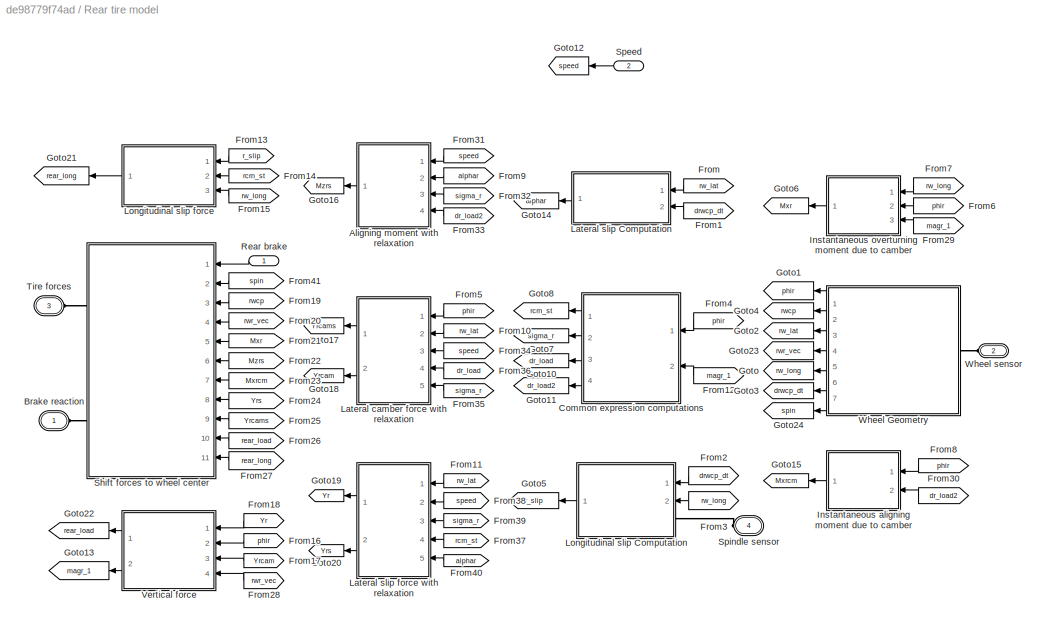
BLOCK [SubSystem] Rear tire model
  Ports = [2, 0, 0, 0, 0, 4]
  RequestExecContextInheritance = off
  Variant = off
BLOCK [SubSystem] Rear tire model/Aligning moment with relaxation 
  Ports = [4, 1]
  RequestExecContextInheritance = off
  Variant = off
BLOCK [Abs] Rear tire model/Aligning moment with relaxation /Abs
  ZeroCross = off
BLOCK [Constant] Rear tire model/Aligning moment with relaxation /Constant2
BLOCK [Constant] Rear tire model/Aligning moment with relaxation /Constant3
  Value = 0
BLOCK [From] Rear tire model/Aligning moment with relaxation /From3
  CloseFcn = tagdialog Close
  GotoTag = Yrexp
  TagVisibility = global
BLOCK [Gain] Rear tire model/Aligning moment with relaxation /Gain
  Gain = t_pr
BLOCK [Gain] Rear tire model/Aligning moment with relaxation /Gain1
  Gain = q_aar
BLOCK [Math] Rear tire model/Aligning moment with relaxation /Math Function
  Operator = reciprocal
  Ports = [1, 1]
BLOCK [Math] Rear tire model/Aligning moment with relaxation /Math Function1
  Operator = sqrt
  Ports = [1, 1]
BLOCK [Mux] Rear tire model/Aligning moment with relaxation /Mux
  DisplayOption = bar
  Inputs = 3
  Ports = [3, 1]
BLOCK [Integrator] Rear tire model/Aligning moment with relaxation /Mzr
  Ports = [1, 1]
  ZeroCross = off
BLOCK [Product] Rear tire model/Aligning moment with relaxation /Mzr sdexp
  Ports = [2, 1]
  RndMeth = Floor
BLOCK [Gain] Rear tire model/Aligning moment with relaxation /Mzrexp
  Gain = -1
BLOCK [Product] Rear tire model/Aligning moment with relaxation /Mzrpexp
  Ports = [2, 1]
  RndMeth = Floor
BLOCK [Outport] Rear tire model/Aligning moment with relaxation /Mzrs
  IconDisplay = Port number
BLOCK [Product] Rear tire model/Aligning moment with relaxation /Product
  Ports = [2, 1]
  RndMeth = Floor
BLOCK [Product] Rear tire model/Aligning moment with relaxation /Product1
  Ports = [2, 1]
  RndMeth = Floor
BLOCK [Sum] Rear tire model/Aligning moment with relaxation /Sum1
  IconShape = round
  Inputs = |-+
  Ports = [2, 1]
BLOCK [Sum] Rear tire model/Aligning moment with relaxation /Sum2
  IconShape = round
  Inputs = |+-
  Ports = [2, 1]
BLOCK [Inport] Rear tire model/Aligning moment with relaxation /alphar
  IconDisplay = Port number
  Port = 2
BLOCK [Inport] Rear tire model/Aligning moment with relaxation /dr_load2
  IconDisplay = Port number
  Port = 4
BLOCK [Inport] Rear tire model/Aligning moment with relaxation /sigma_r
  IconDisplay = Port number
  Port = 3
BLOCK [Inport] Rear tire model/Aligning moment with relaxation /speed
  IconDisplay = Port number
BLOCK [PMIOPort] Rear tire model/Brake reaction
  Port = 1
  Side = Left
  Tag = PMCPort
BLOCK [SubSystem] Rear tire model/Common expression computations
  Ports = [2, 4]
  RequestExecContextInheritance = off
  Variant = off
BLOCK [Abs] Rear tire model/Common expression computations/Abs
  ZeroCross = off
BLOCK [Abs] Rear tire model/Common expression computations/Abs1
  ZeroCross = off
BLOCK [Constant] Rear tire model/Common expression computations/Constant
  Value = rw_ld0
BLOCK [Constant] Rear tire model/Common expression computations/Constant1
  Value = sigma_fyr
BLOCK [Constant] Rear tire model/Common expression computations/Constant2
BLOCK [Constant] Rear tire model/Common expression computations/Constant3
  Value = C_Far
BLOCK [Gain] Rear tire model/Common expression computations/Gain
  Gain = n_ar
BLOCK [Math] Rear tire model/Common expression computations/Math Function
  Operator = reciprocal
  Ports = [1, 1]
BLOCK [Math] Rear tire model/Common expression computations/Math Function1
  Operator = sqrt
  Ports = [1, 1]
BLOCK [Sum] Rear tire model/Common expression computations/dr_load
  IconShape = round
  Inputs = --|
  Ports = [2, 1]
BLOCK [Outport] Rear tire model/Common expression computations/dr_load  
  IconDisplay = Port number
  Port = 3
BLOCK [Product] Rear tire model/Common expression computations/dr_load2
  Ports = [2, 1]
  RndMeth = Floor
BLOCK [Outport] Rear tire model/Common expression computations/dr_load2 
  IconDisplay = Port number
  Port = 4
BLOCK [Sum] Rear tire model/Common expression computations/dr_load3
  IconShape = round
  Inputs = |++
  Ports = [2, 1]
BLOCK [Sum] Rear tire model/Common expression computations/dr_load4
  IconShape = round
  Inputs = |-+
  Ports = [2, 1]
BLOCK [Inport] Rear tire model/Common expression computations/magr_1
  IconDisplay = Port number
  Port = 2
BLOCK [Gain] Rear tire model/Common expression computations/p_a  fa
  Gain = p_agr
BLOCK [Inport] Rear tire model/Common expression computations/phir
  IconDisplay = Port number
BLOCK [Product] Rear tire model/Common expression computations/rcrn_st
  Ports = [2, 1]
  RndMeth = Floor
BLOCK [Outport] Rear tire model/Common expression computations/rcrn_st 
  IconDisplay = Port number
BLOCK [Product] Rear tire model/Common expression computations/sigma_r
  Ports = [2, 1]
  RndMeth = Floor
BLOCK [Outport] Rear tire model/Common expression computations/sigma_r 
  IconDisplay = Port number
  Port = 2
BLOCK [From] Rear tire model/From
  CloseFcn = tagdialog Close
  GotoTag = rw_lat
BLOCK [From] Rear tire model/From1
  CloseFcn = tagdialog Close
  GotoTag = drwcp_dt
BLOCK [From] Rear tire model/From10
  CloseFcn = tagdialog Close
  GotoTag = rw_lat
BLOCK [From] Rear tire model/From11
  CloseFcn = tagdialog Close
  GotoTag = rw_lat
BLOCK [From] Rear tire model/From12
  CloseFcn = tagdialog Close
  GotoTag = magr_1
  TagVisibility = global
BLOCK [From] Rear tire model/From13
  CloseFcn = tagdialog Close
  GotoTag = r_slip
  TagVisibility = global
BLOCK [From] Rear tire model/From14
  CloseFcn = tagdialog Close
  GotoTag = rcrn_st
BLOCK [From] Rear tire model/From15
  CloseFcn = tagdialog Close
  GotoTag = rw_long
BLOCK [From] Rear tire model/From16
  CloseFcn = tagdialog Close
  GotoTag = phir
BLOCK [From] Rear tire model/From17
  CloseFcn = tagdialog Close
  GotoTag = Yrcam
  TagVisibility = global
BLOCK [From] Rear tire model/From18
  CloseFcn = tagdialog Close
  GotoTag = Yr
  TagVisibility = global
BLOCK [From] Rear tire model/From19
  CloseFcn = tagdialog Close
  GotoTag = rwcp
BLOCK [From] Rear tire model/From2
  CloseFcn = tagdialog Close
  GotoTag = drwcp_dt
BLOCK [From] Rear tire model/From20
  CloseFcn = tagdialog Close
  GotoTag = rwr_vec
BLOCK [From] Rear tire model/From21
  CloseFcn = tagdialog Close
  GotoTag = Mxr
  TagVisibility = global
BLOCK [From] Rear tire model/From22
  CloseFcn = tagdialog Close
  GotoTag = Mzrs
  TagVisibility = global
BLOCK [From] Rear tire model/From23
  CloseFcn = tagdialog Close
  GotoTag = Mxrcm
  TagVisibility = global
BLOCK [From] Rear tire model/From24
  CloseFcn = tagdialog Close
  GotoTag = Yrs
  TagVisibility = global
BLOCK [From] Rear tire model/From25
  CloseFcn = tagdialog Close
  GotoTag = Yrcams
  TagVisibility = global
BLOCK [From] Rear tire model/From26
  CloseFcn = tagdialog Close
  GotoTag = rear_load
  TagVisibility = global
BLOCK [From] Rear tire model/From27
  CloseFcn = tagdialog Close
  GotoTag = rear_long
  TagVisibility = global
BLOCK [From] Rear tire model/From28
  CloseFcn = tagdialog Close
  GotoTag = rwr_vec
BLOCK [From] Rear tire model/From29
  CloseFcn = tagdialog Close
  GotoTag = magr_1
  TagVisibility = global
BLOCK [From] Rear tire model/From3
  CloseFcn = tagdialog Close
  GotoTag = rw_long
BLOCK [From] Rear tire model/From30
  CloseFcn = tagdialog Close
  GotoTag = dr_load2
BLOCK [From] Rear tire model/From31
  CloseFcn = tagdialog Close
  GotoTag = speed
BLOCK [From] Rear tire model/From32
  CloseFcn = tagdialog Close
  GotoTag = sigma_r
  TagVisibility = global
BLOCK [From] Rear tire model/From33
  CloseFcn = tagdialog Close
  GotoTag = dr_load2
BLOCK [From] Rear tire model/From34
  CloseFcn = tagdialog Close
  GotoTag = speed
BLOCK [From] Rear tire model/From35
  CloseFcn = tagdialog Close
  GotoTag = sigma_r
  TagVisibility = global
BLOCK [From] Rear tire model/From36
  CloseFcn = tagdialog Close
  GotoTag = dr_load
  TagVisibility = global
BLOCK [From] Rear tire model/From37
  CloseFcn = tagdialog Close
  GotoTag = rcrn_st
BLOCK [From] Rear tire model/From38
  CloseFcn = tagdialog Close
  GotoTag = speed
BLOCK [From] Rear tire model/From39
  CloseFcn = tagdialog Close
  GotoTag = sigma_r
  TagVisibility = global
BLOCK [From] Rear tire model/From4
  CloseFcn = tagdialog Close
  GotoTag = phir
BLOCK [From] Rear tire model/From40
  CloseFcn = tagdialog Close
  GotoTag = alphar
  TagVisibility = global
BLOCK [From] Rear tire model/From41
  CloseFcn = tagdialog Close
  GotoTag = spin
BLOCK [From] Rear tire model/From5
  CloseFcn = tagdialog Close
  GotoTag = phir
BLOCK [From] Rear tire model/From6
  CloseFcn = tagdialog Close
  GotoTag = phir
BLOCK [From] Rear tire model/From7
  CloseFcn = tagdialog Close
  GotoTag = rw_long
BLOCK [From] Rear tire model/From8
  CloseFcn = tagdialog Close
  GotoTag = phir
BLOCK [From] Rear tire model/From9
  CloseFcn = tagdialog Close
  GotoTag = alphar
  TagVisibility = global
BLOCK [Goto] Rear tire model/Goto
  GotoTag = rw_long
BLOCK [Goto] Rear tire model/Goto1
  GotoTag = phir
BLOCK [Goto] Rear tire model/Goto10
  GotoTag = dr_load
  TagVisibility = global
BLOCK [Goto] Rear tire model/Goto11
  GotoTag = dr_load2
BLOCK [Goto] Rear tire model/Goto12
  GotoTag = speed
BLOCK [Goto] Rear tire model/Goto13
  GotoTag = magr_1
  TagVisibility = global
BLOCK [Goto] Rear tire model/Goto14
  GotoTag = alphar
  TagVisibility = global
BLOCK [Goto] Rear tire model/Goto15
  GotoTag = Mxrcm
  TagVisibility = global
BLOCK [Goto] Rear tire model/Goto16
  GotoTag = Mzrs
  TagVisibility = global
BLOCK [Goto] Rear tire model/Goto17
  GotoTag = Yrcams
  TagVisibility = global
BLOCK [Goto] Rear tire model/Goto18
  GotoTag = Yrcam
  TagVisibility = global
BLOCK [Goto] Rear tire model/Goto19
  GotoTag = Yr
  TagVisibility = global
BLOCK [Goto] Rear tire model/Goto2
  GotoTag = rw_lat
BLOCK [Goto] Rear tire model/Goto20
  GotoTag = Yrs
  TagVisibility = global
BLOCK [Goto] Rear tire model/Goto21
  GotoTag = rear_long
  TagVisibility = global
BLOCK [Goto] Rear tire model/Goto22
  GotoTag = rear_load
  TagVisibility = global
BLOCK [Goto] Rear tire model/Goto23
  GotoTag = rwr_vec
BLOCK [Goto] Rear tire model/Goto24
  GotoTag = spin
BLOCK [Goto] Rear tire model/Goto3
  GotoTag = drwcp_dt
BLOCK [Goto] Rear tire model/Goto4
  GotoTag = rwcp
BLOCK [Goto] Rear tire model/Goto5
  GotoTag = r_slip
  TagVisibility = global
BLOCK [Goto] Rear tire model/Goto6
  GotoTag = Mxr
  TagVisibility = global
BLOCK [Goto] Rear tire model/Goto7
  GotoTag = sigma_r
  TagVisibility = global
BLOCK [Goto] Rear tire model/Goto8
  GotoTag = rcrn_st
BLOCK [SubSystem] Rear tire model/Instantaneous aligning moment due to camber 
  Ports = [2, 1]
  RequestExecContextInheritance = off
  Variant = off
BLOCK [Abs] Rear tire model/Instantaneous aligning moment due to camber /Abs
  ZeroCross = off
BLOCK [Constant] Rear tire model/Instantaneous aligning moment due to camber /Constant
BLOCK [Constant] Rear tire model/Instantaneous aligning moment due to camber /Constant1
  Value = 0
BLOCK [Fcn] Rear tire model/Instantaneous aligning moment due to camber /Fcn
  Expr = u^2.5
BLOCK [Gain] Rear tire model/Instantaneous aligning moment due to camber /Gain
  Gain = q_ggr
BLOCK [Gain] Rear tire model/Instantaneous aligning moment due to camber /Gain1
  Gain = C_Mgr
BLOCK [Mux] Rear tire model/Instantaneous aligning moment due to camber /Mux
  DisplayOption = bar
  Inputs = 3
  Ports = [3, 1]
BLOCK [Outport] Rear tire model/Instantaneous aligning moment due to camber /Mzrcm
  IconDisplay = Port number
BLOCK [Product] Rear tire model/Instantaneous aligning moment due to camber /Product
  Ports = [2, 1]
  RndMeth = Floor
BLOCK [Product] Rear tire model/Instantaneous aligning moment due to camber /Product1
  Ports = [2, 1]
  RndMeth = Floor
BLOCK [Sum] Rear tire model/Instantaneous aligning moment due to camber /Sum
  IconShape = round
  Inputs = |++
  Ports = [2, 1]
BLOCK [Inport] Rear tire model/Instantaneous aligning moment due to camber /dr_load2
  IconDisplay = Port number
  Port = 2
BLOCK [Inport] Rear tire model/Instantaneous aligning moment due to camber /phir
  IconDisplay = Port number
BLOCK [SubSystem] Rear tire model/Instantaneous overturning moment due to camber 
  Ports = [3, 1]
  RequestExecContextInheritance = off
  Variant = off
BLOCK [Constant] Rear tire model/Instantaneous overturning moment due to camber /Constant
  Value = 1/Ktr
BLOCK [Constant] Rear tire model/Instantaneous overturning moment due to camber /Constant2
  Value = r_tcr
BLOCK [Outport] Rear tire model/Instantaneous overturning moment due to camber /Mxr
  IconDisplay = Port number
BLOCK [Product] Rear tire model/Instantaneous overturning moment due to camber /Product
  Ports = [2, 1]
  RndMeth = Floor
BLOCK [Product] Rear tire model/Instantaneous overturning moment due to camber /Product2
  Ports = [2, 1]
  RndMeth = Floor
BLOCK [Product] Rear tire model/Instantaneous overturning moment due to camber /Product3
  Ports = [2, 1]
  RndMeth = Floor
BLOCK [Product] Rear tire model/Instantaneous overturning moment due to camber /Product4
  Ports = [2, 1]
  RndMeth = Floor
BLOCK [Sum] Rear tire model/Instantaneous overturning moment due to camber /Sum
  IconShape = round
  Inputs = |++
  Ports = [2, 1]
BLOCK [Trigonometry] Rear tire model/Instantaneous overturning moment due to camber /Trigonometric Function
  Operator = tan
  Ports = [1, 1]
BLOCK [Inport] Rear tire model/Instantaneous overturning moment due to camber /magr_1
  IconDisplay = Port number
  Port = 3
BLOCK [Inport] Rear tire model/Instantaneous overturning moment due to camber /phir
  IconDisplay = Port number
  Port = 2
BLOCK [Inport] Rear tire model/Instantaneous overturning moment due to camber /rw_long
  IconDisplay = Port number
BLOCK [SubSystem] Rear tire model/Lateral camber force with relaxation 
  Ports = [5, 2]
  RequestExecContextInheritance = off
  Variant = off
BLOCK [Abs] Rear tire model/Lateral camber force with relaxation /Abs2
  ZeroCross = off
BLOCK [Constant] Rear tire model/Lateral camber force with relaxation /Constant4
  Value = C_Fgr
BLOCK [Constant] Rear tire model/Lateral camber force with relaxation /Constant5
BLOCK [Gain] Rear tire model/Lateral camber force with relaxation /Gain1
  Gain = n_gr
BLOCK [Gain] Rear tire model/Lateral camber force with relaxation /Gain2
  Gain = p_ggr
BLOCK [Math] Rear tire model/Lateral camber force with relaxation /Math Function
  Operator = reciprocal
  Ports = [1, 1]
BLOCK [Product] Rear tire model/Lateral camber force with relaxation /Product
  Ports = [2, 1]
  RndMeth = Floor
BLOCK [Product] Rear tire model/Lateral camber force with relaxation /Product1
  Ports = [2, 1]
  RndMeth = Floor
BLOCK [Sum] Rear tire model/Lateral camber force with relaxation /Sum
  IconShape = round
  Inputs = |++
  Ports = [2, 1]
BLOCK [Sum] Rear tire model/Lateral camber force with relaxation /Sum1
  IconShape = round
  Inputs = |-+
  Ports = [2, 1]
BLOCK [Sum] Rear tire model/Lateral camber force with relaxation /Sum2
  IconShape = round
  Inputs = |+-
  Ports = [2, 1]
BLOCK [Integrator] Rear tire model/Lateral camber force with relaxation /Yrcam
  Ports = [1, 1]
  ZeroCross = off
BLOCK [Outport] Rear tire model/Lateral camber force with relaxation /Yrcam 
  IconDisplay = Port number
  Port = 2
BLOCK [Product] Rear tire model/Lateral camber force with relaxation /Yrcamexp  
  Ports = [2, 1]
  RndMeth = Floor
BLOCK [Outport] Rear tire model/Lateral camber force with relaxation /Yrcams
  IconDisplay = Port number
BLOCK [Product] Rear tire model/Lateral camber force with relaxation /Yrcpexp
  Ports = [2, 1]
  RndMeth = Floor
BLOCK [Product] Rear tire model/Lateral camber force with relaxation /Yrpexp1
  Ports = [2, 1]
  RndMeth = Floor
BLOCK [Inport] Rear tire model/Lateral camber force with relaxation /dr_load
  IconDisplay = Port number
  Port = 4
BLOCK [Inport] Rear tire model/Lateral camber force with relaxation /phir
  IconDisplay = Port number
BLOCK [Inport] Rear tire model/Lateral camber force with relaxation /rw_lat
  IconDisplay = Port number
  Port = 2
BLOCK [Inport] Rear tire model/Lateral camber force with relaxation /sigma_r
  IconDisplay = Port number
  Port = 5
BLOCK [Inport] Rear tire model/Lateral camber force with relaxation /speed
  IconDisplay = Port number
  Port = 3
BLOCK [SubSystem] Rear tire model/Lateral slip Computation
  Ports = [2, 1]
  RequestExecContextInheritance = off
  Variant = off
BLOCK [Fcn] Rear tire model/Lateral slip Computation/Fcn
  Expr = 1.0/sqrt(u[1]*u[1] + u[2]*u[2] + u[3]*u[3])
BLOCK [Product] Rear tire model/Lateral slip Computation/Product
  Ports = [2, 1]
  RndMeth = Floor
BLOCK [Product] Rear tire model/Lateral slip Computation/Product1
  Multiplication = Matrix(*)
  Ports = [2, 1]
  RndMeth = Floor
BLOCK [Reshape] Rear tire model/Lateral slip Computation/Reshape
  OutputDimensionality = Row vector (2-D)
  Ports = [1, 1]
BLOCK [Reshape] Rear tire model/Lateral slip Computation/Reshape1
  OutputDimensionality = Column vector (2-D)
  Ports = [1, 1]
BLOCK [Trigonometry] Rear tire model/Lateral slip Computation/Trigonometric Function
  Operator = asin
  Ports = [1, 1]
BLOCK [Outport] Rear tire model/Lateral slip Computation/alphar
  IconDisplay = Port number
BLOCK [Inport] Rear tire model/Lateral slip Computation/drwcp_dt
  IconDisplay = Port number
  Port = 2
BLOCK [Inport] Rear tire model/Lateral slip Computation/rw_lat
  IconDisplay = Port number
BLOCK [SubSystem] Rear tire model/Lateral slip force with relaxation
  Ports = [5, 2]
  RequestExecContextInheritance = off
  Variant = off
BLOCK [Goto] Rear tire model/Lateral slip force with relaxation/Goto
  GotoTag = Yrexp
  TagVisibility = global
BLOCK [Math] Rear tire model/Lateral slip force with relaxation/Math Function2
  Operator = reciprocal
  Ports = [1, 1]
BLOCK [Scope] Rear tire model/Lateral slip force with relaxation/Scope
  NumInputPorts = 1
  Ports = [1]
  ScopeSpecificationString = C++SS(StrPVP('Location','[188, 365, 512, 604]'),StrPVP('Open','off'),MxPVP('AxesTitles',53,'struct(''axes1'',''%<SignalLabel>'')'),StrPVP('ShowLegends','off'),StrPVP('YMin','-25'),StrPVP('YMax','7.5'),StrPVP('SaveName','ScopeData2'),StrPVP('DataFormat','StructureWithTime'),StrPVP('BlockParamSampleTime','0'),StrPVP('LimitDataPoints','on'),StrPVP('Decimation','1'),StrPVP('BlockParamSampleInput','off...<+3ch>
BLOCK [Integrator] Rear tire model/Lateral slip force with relaxation/Yr
  Ports = [1, 1]
  ZeroCross = off
BLOCK [Outport] Rear tire model/Lateral slip force with relaxation/Yr 
  IconDisplay = Port number
BLOCK [Gain] Rear tire model/Lateral slip force with relaxation/Yrexp
  Gain = -1
BLOCK [Product] Rear tire model/Lateral slip force with relaxation/Yrexp1
  Ports = [2, 1]
  RndMeth = Floor
BLOCK [Product] Rear tire model/Lateral slip force with relaxation/Yrexpaf
  Ports = [2, 1]
  RndMeth = Floor
BLOCK [Product] Rear tire model/Lateral slip force with relaxation/Yrpexp
  Ports = [2, 1]
  RndMeth = Floor
BLOCK [Product] Rear tire model/Lateral slip force with relaxation/Yrpexp1
  Ports = [2, 1]
  RndMeth = Floor
BLOCK [Outport] Rear tire model/Lateral slip force with relaxation/Yrs
  IconDisplay = Port number
  Port = 2
BLOCK [Inport] Rear tire model/Lateral slip force with relaxation/alphar
  IconDisplay = Port number
  Port = 5
BLOCK [Sum] Rear tire model/Lateral slip force with relaxation/dr_load1
  IconShape = round
  Inputs = |+-
  Ports = [2, 1]
BLOCK [Inport] Rear tire model/Lateral slip force with relaxation/rcrn_st
  IconDisplay = Port number
  Port = 4
BLOCK [Inport] Rear tire model/Lateral slip force with relaxation/rw_lat
  IconDisplay = Port number
BLOCK [Inport] Rear tire model/Lateral slip force with relaxation/sigma_r
  IconDisplay = Port number
  Port = 3
BLOCK [Inport] Rear tire model/Lateral slip force with relaxation/speed
  IconDisplay = Port number
  Port = 2
BLOCK [SubSystem] Rear tire model/Longitudinal slip Computation
  Ports = [2, 1, 0, 0, 0, 1]
  RequestExecContextInheritance = off
  Variant = off
BLOCK [Abs] Rear tire model/Longitudinal slip Computation/Abs
  ZeroCross = off
BLOCK [Gain] Rear tire model/Longitudinal slip Computation/Gain
  Gain = rwrad
BLOCK [Math] Rear tire model/Longitudinal slip Computation/Math Function
  Operator = reciprocal
  Ports = [1, 1]
BLOCK [Product] Rear tire model/Longitudinal slip Computation/Product
  Ports = [2, 1]
  RndMeth = Floor
BLOCK [Product] Rear tire model/Longitudinal slip Computation/Product1
  Multiplication = Matrix(*)
  Ports = [2, 1]
  RndMeth = Floor
BLOCK [Reshape] Rear tire model/Longitudinal slip Computation/Reshape
  OutputDimensionality = Row vector (2-D)
  Ports = [1, 1]
BLOCK [Reshape] Rear tire model/Longitudinal slip Computation/Reshape1
  OutputDimensionality = Column vector (2-D)
  Ports = [1, 1]
BLOCK [Reference] Rear tire model/Longitudinal slip Computation/Spin rate  REF=mblibv1/Sensors & 
Actuators/Joint Sensor
  Ports = [0, 1, 0, 0, 0, 1]
  SourceBlock = mblibv1/Sensors & \nActuators/Joint Sensor
  SourceProductBaseCode = MS
  SourceProductName = Simscape Multibody
  SourceType = Joint Sensor
BLOCK [PMIOPort] Rear tire model/Longitudinal slip Computation/Spindle sensor
  Port = 1
  Side = Left
  Tag = PMCPort
BLOCK [Sum] Rear tire model/Longitudinal slip Computation/Sum
  IconShape = round
  Inputs = |++
  Ports = [2, 1]
BLOCK [Inport] Rear tire model/Longitudinal slip Computation/drwcp_dt
  IconDisplay = Port number
BLOCK [Outport] Rear tire model/Longitudinal slip Computation/r_slip
  IconDisplay = Port number
BLOCK [Inport] Rear tire model/Longitudinal slip Computation/rw_long
  IconDisplay = Port number
  Port = 2
BLOCK [SubSystem] Rear tire model/Longitudinal slip force
  Ports = [3, 1]
  RequestExecContextInheritance = off
  Variant = off
BLOCK [Constant] Rear tire model/Longitudinal slip force/Constant
  Value = satf
BLOCK [Gain] Rear tire model/Longitudinal slip force/Gain
  Gain = -1
BLOCK [Gain] Rear tire model/Longitudinal slip force/Gain1
  Gain = -1
BLOCK [MinMax] Rear tire model/Longitudinal slip force/MinMax
  Inputs = 2
  Ports = [2, 1]
  ZeroCross = off
BLOCK [MinMax] Rear tire model/Longitudinal slip force/MinMax1
  Function = max
  Inputs = 2
  Ports = [2, 1]
  ZeroCross = off
BLOCK [Product] Rear tire model/Longitudinal slip force/Product
  Ports = [2, 1]
  RndMeth = Floor
BLOCK [Product] Rear tire model/Longitudinal slip force/Product1
  Ports = [2, 1]
  RndMeth = Floor
BLOCK [Inport] Rear tire model/Longitudinal slip force/r_slip
  IconDisplay = Port number
BLOCK [Inport] Rear tire model/Longitudinal slip force/rcrn_st
  IconDisplay = Port number
  Port = 2
BLOCK [Outport] Rear tire model/Longitudinal slip force/rear_long
  IconDisplay = Port number
BLOCK [Inport] Rear tire model/Longitudinal slip force/rw_long
  IconDisplay = Port number
  Port = 3
BLOCK [Inport] Rear tire model/Rear brake
  IconDisplay = Port number
BLOCK [SubSystem] Rear tire model/Shift forces to wheel center
  Ports = [11, 0, 0, 0, 0, 0, 2]
  RequestExecContextInheritance = off
  Variant = off
BLOCK [Reference] Rear tire model/Shift forces to wheel center/Body Actuator1  REF=mblibv1/Sensors & 
Actuators/Body Actuator
  Ports = [1, 0, 0, 0, 0, 0, 1]
  SourceBlock = mblibv1/Sensors & \nActuators/Body Actuator
  SourceProductBaseCode = MS
  SourceProductName = Simscape Multibody
  SourceType = Body Actuator
BLOCK [Reference] Rear tire model/Shift forces to wheel center/Body Actuator2  REF=mblibv1/Sensors & 
Actuators/Body Actuator
  Ports = [1, 0, 0, 0, 0, 0, 1]
  SourceBlock = mblibv1/Sensors & \nActuators/Body Actuator
  SourceProductBaseCode = MS
  SourceProductName = Simscape Multibody
  SourceType = Body Actuator
BLOCK [PMIOPort] Rear tire model/Shift forces to wheel center/Brake reaction
  Port = 2
  Side = Right
  Tag = PMCPort
BLOCK [Gain] Rear tire model/Shift forces to wheel center/Gain
  Gain = -1
BLOCK [Mux] Rear tire model/Shift forces to wheel center/Mux
  DisplayOption = bar
  Inputs = 2
  Ports = [2, 1]
BLOCK [Inport] Rear tire model/Shift forces to wheel center/Mxr
  IconDisplay = Port number
  Port = 5
BLOCK [Inport] Rear tire model/Shift forces to wheel center/Mxrcm
  IconDisplay = Port number
  Port = 7
BLOCK [Inport] Rear tire model/Shift forces to wheel center/Mzrs
  IconDisplay = Port number
  Port = 6
BLOCK [Product] Rear tire model/Shift forces to wheel center/Product
  Ports = [2, 1]
  RndMeth = Floor
BLOCK [Inport] Rear tire model/Shift forces to wheel center/Rear brake
  IconDisplay = Port number
BLOCK [Sum] Rear tire model/Shift forces to wheel center/Sum
  IconShape = round
  Inputs = |+-
  Ports = [2, 1]
BLOCK [Sum] Rear tire model/Shift forces to wheel center/Sum3
  IconShape = round
  Inputs = |++
  Ports = [2, 1]
BLOCK [PMIOPort] Rear tire model/Shift forces to wheel center/Tire forces
  Port = 1
  Side = Right
  Tag = PMCPort
BLOCK [Sum] Rear tire model/Shift forces to wheel center/Vector sum of forces
  Inputs = ++++
  Ports = [4, 1]
BLOCK [Sum] Rear tire model/Shift forces to wheel center/Vector sum of moments
  Inputs = ++++
  Ports = [4, 1]
BLOCK [Inport] Rear tire model/Shift forces to wheel center/Yrcams
  IconDisplay = Port number
  Port = 9
BLOCK [Inport] Rear tire model/Shift forces to wheel center/Yrs
  IconDisplay = Port number
  Port = 8
BLOCK [Inport] Rear tire model/Shift forces to wheel center/rear_load
  IconDisplay = Port number
  Port = 10
BLOCK [Inport] Rear tire model/Shift forces to wheel center/rear_long
  IconDisplay = Port number
  Port = 11
BLOCK [SubSystem] Rear tire model/Shift forces to wheel center/rw_lat x ez
  Ports = [2, 1]
  RequestExecContextInheritance = off
  ShowPortLabels = none
  Variant = off
BLOCK [Product] Rear tire model/Shift forces to wheel center/rw_lat x ez/Product
  Ports = [2, 1]
BLOCK [Product] Rear tire model/Shift forces to wheel center/rw_lat x ez/Product1
  Ports = [2, 1]
BLOCK [Selector] Rear tire model/Shift forces to wheel center/rw_lat x ez/Selector
  IndexOptions = Index vector (dialog)
  Indices = [2 3 1]
  InputPortWidth = 3
  OutputSizes = 1
  Ports = [1, 1]
BLOCK [Selector] Rear tire model/Shift forces to wheel center/rw_lat x ez/Selector1
  IndexOptions = Index vector (dialog)
  Indices = [3 1 2]
  InputPortWidth = 3
  OutputSizes = 1
  Ports = [1, 1]
BLOCK [Selector] Rear tire model/Shift forces to wheel center/rw_lat x ez/Selector2
  IndexOptions = Index vector (dialog)
  Indices = [2 3 1]
  InputPortWidth = 3
  OutputSizes = 1
  Ports = [1, 1]
BLOCK [Selector] Rear tire model/Shift forces to wheel center/rw_lat x ez/Selector3
  IndexOptions = Index vector (dialog)
  Indices = [3 1 2]
  InputPortWidth = 3
  OutputSizes = 1
  Ports = [1, 1]
BLOCK [Sum] Rear tire model/Shift forces to wheel center/rw_lat x ez/Sum
  IconShape = round
  Inputs = +|-
  Ports = [2, 1]
BLOCK [Inport] Rear tire model/Shift forces to wheel center/rw_lat x ez/a(1) a(2) a(3)
  IconDisplay = Port number
BLOCK [Inport] Rear tire model/Shift forces to wheel center/rw_lat x ez/b(1) b(2) b(3)
  IconDisplay = Port number
  Port = 2
BLOCK [Outport] Rear tire model/Shift forces to wheel center/rw_lat x ez/c(1) c(2) c(3)
  IconDisplay = Port number
  InitialOutput = 0
BLOCK [Inport] Rear tire model/Shift forces to wheel center/rwcp
  IconDisplay = Port number
  Port = 3
BLOCK [Inport] Rear tire model/Shift forces to wheel center/rwr_vec
  IconDisplay = Port number
  Port = 4
BLOCK [Inport] Rear tire model/Shift forces to wheel center/spin
  IconDisplay = Port number
  Port = 2
BLOCK [Inport] Rear tire model/Speed
  IconDisplay = Port number
  Port = 2
BLOCK [PMIOPort] Rear tire model/Spindle sensor
  Port = 4
  Side = Left
  Tag = PMCPort
BLOCK [PMIOPort] Rear tire model/Tire forces
  Port = 3
  Side = Left
  Tag = PMCPort
BLOCK [SubSystem] Rear tire model/Vertical force
  Ports = [4, 2]
  RequestExecContextInheritance = off
  Variant = off
BLOCK [Constant] Rear tire model/Vertical force/Constant
  Value = rwrad
BLOCK [Constant] Rear tire model/Vertical force/Constant1
  Value = 0
BLOCK [Constant] Rear tire model/Vertical force/Constant2
  Value = rw_ld0
BLOCK [Constant] Rear tire model/Vertical force/Constant3
  Value = 0
BLOCK [Gain] Rear tire model/Vertical force/Gain
  Gain = Ktr
BLOCK [Math] Rear tire model/Vertical force/Math Function
  Operator = reciprocal
  Ports = [1, 1]
BLOCK [Mux] Rear tire model/Vertical force/Mux
  DisplayOption = bar
  Inputs = 3
  Ports = [3, 1]
BLOCK [Product] Rear tire model/Vertical force/Product
  Ports = [2, 1]
  RndMeth = Floor
BLOCK [Product] Rear tire model/Vertical force/Product1
  Ports = [2, 1]
  RndMeth = Floor
BLOCK [Product] Rear tire model/Vertical force/Product2
  Ports = [2, 1]
  RndMeth = Floor
BLOCK [RelationalOperator] Rear tire model/Vertical force/Relational Operator
  Ports = [2, 1]
  ZeroCross = off
BLOCK [Selector] Rear tire model/Vertical force/Selector3
  IndexOptions = Index vector (dialog)
  Indices = 3
  InputPortWidth = 3
  OutputSizes = 1
  Ports = [1, 1]
BLOCK [Stop] Rear tire model/Vertical force/Stop Simulation
BLOCK [Sum] Rear tire model/Vertical force/Sum
  IconShape = round
  Inputs = ++|
  Ports = [2, 1]
BLOCK [Sum] Rear tire model/Vertical force/Sum1
  IconShape = round
  Inputs = +-
  Ports = [2, 1]
BLOCK [Sum] Rear tire model/Vertical force/Sum2
  IconShape = round
  Ports = [2, 1]
BLOCK [Sum] Rear tire model/Vertical force/Sum3
  IconShape = round
  Inputs = |++
  Ports = [2, 1]
BLOCK [Trigonometry] Rear tire model/Vertical force/Trigonometric Function
  Operator = cos
  Ports = [1, 1]
BLOCK [Trigonometry] Rear tire model/Vertical force/Trigonometric Function1
  Operator = tan
  Ports = [1, 1]
BLOCK [Inport] Rear tire model/Vertical force/Yr
  IconDisplay = Port number
BLOCK [Inport] Rear tire model/Vertical force/Yrcam
  IconDisplay = Port number
  Port = 3
BLOCK [Outport] Rear tire model/Vertical force/magr_1 
  IconDisplay = Port number
  Port = 2
BLOCK [Inport] Rear tire model/Vertical force/phir
  IconDisplay = Port number
  Port = 2
BLOCK [Outport] Rear tire model/Vertical force/rear_load
  IconDisplay = Port number
BLOCK [Inport] Rear tire model/Vertical force/rwr_vec
  IconDisplay = Port number
  Port = 4
BLOCK [SubSystem] Rear tire model/Wheel Geometry
  Ports = [0, 7, 0, 0, 0, 1]
  RequestExecContextInheritance = off
  Variant = off
BLOCK [Reference] Rear tire model/Wheel Geometry/Body Sensor  REF=mblibv1/Sensors & 
Actuators/Body Sensor
  Ports = [0, 1, 0, 0, 0, 1]
  SourceBlock = mblibv1/Sensors & \nActuators/Body Sensor
  SourceProductBaseCode = MS
  SourceProductName = Simscape Multibody
  SourceType = Body Sensor
BLOCK [SubSystem] Rear tire model/Wheel Geometry/Compute derivatives
  Ports = [3, 2]
  RequestExecContextInheritance = off
  Variant = off
BLOCK [Constant] Rear tire model/Wheel Geometry/Compute derivatives/Constant
  Value = 0
BLOCK [Constant] Rear tire model/Wheel Geometry/Compute derivatives/Constant1
  Value = 0
BLOCK [Math] Rear tire model/Wheel Geometry/Compute derivatives/Math Function3
  Operator = reciprocal
  Ports = [1, 1]
BLOCK [Mux] Rear tire model/Wheel Geometry/Compute derivatives/Mux
  DisplayOption = bar
  Inputs = 2
  Ports = [2, 1]
BLOCK [Mux] Rear tire model/Wheel Geometry/Compute derivatives/Mux1
  DisplayOption = bar
  Inputs = 2
  Ports = [2, 1]
BLOCK [Product] Rear tire model/Wheel Geometry/Compute derivatives/Product1
  Ports = [2, 1]
  RndMeth = Floor
BLOCK [Product] Rear tire model/Wheel Geometry/Compute derivatives/Product5
  Ports = [2, 1]
  RndMeth = Floor
BLOCK [Product] Rear tire model/Wheel Geometry/Compute derivatives/Product6
  Ports = [2, 1]
  RndMeth = Floor
BLOCK [Product] Rear tire model/Wheel Geometry/Compute derivatives/Product8
  Ports = [2, 1]
  RndMeth = Floor
BLOCK [Product] Rear tire model/Wheel Geometry/Compute derivatives/Product9
  Ports = [2, 1]
  RndMeth = Floor
BLOCK [Selector] Rear tire model/Wheel Geometry/Compute derivatives/Selector1
  IndexOptions = Index vector (dialog)
  Indices = [1 2]
  InputPortWidth = 3
  OutputSizes = 1
  Ports = [1, 1]
BLOCK [Selector] Rear tire model/Wheel Geometry/Compute derivatives/Selector2
  IndexOptions = Index vector (dialog)
  Indices = [1 2]
  InputPortWidth = 3
  OutputSizes = 1
  Ports = [1, 1]
BLOCK [Selector] Rear tire model/Wheel Geometry/Compute derivatives/Selector3
  IndexOptions = Index vector (dialog)
  Indices = 3
  InputPortWidth = 3
  OutputSizes = 1
  Ports = [1, 1]
BLOCK [Sum] Rear tire model/Wheel Geometry/Compute derivatives/Sum1
  IconShape = round
  Ports = [2, 1]
BLOCK [Trigonometry] Rear tire model/Wheel Geometry/Compute derivatives/Trigonometric Function
  Operator = cos
  Ports = [1, 1]
BLOCK [Trigonometry] Rear tire model/Wheel Geometry/Compute derivatives/Trigonometric Function1
  Operator = tan
  Ports = [1, 1]
BLOCK [Outport] Rear tire model/Wheel Geometry/Compute derivatives/dphir_dt
  IconDisplay = Port number
  Port = 2
BLOCK [Outport] Rear tire model/Wheel Geometry/Compute derivatives/drw_lat//dt
  IconDisplay = Port number
BLOCK [Inport] Rear tire model/Wheel Geometry/Compute derivatives/omega_r
  IconDisplay = Port number
  Port = 3
BLOCK [SubSystem] Rear tire model/Wheel Geometry/Compute derivatives/omega_r x spin
  Ports = [2, 1]
  RequestExecContextInheritance = off
  ShowPortLabels = none
  Variant = off
BLOCK [Product] Rear tire model/Wheel Geometry/Compute derivatives/omega_r x spin/Product
  Ports = [2, 1]
BLOCK [Product] Rear tire model/Wheel Geometry/Compute derivatives/omega_r x spin/Product1
  Ports = [2, 1]
BLOCK [Selector] Rear tire model/Wheel Geometry/Compute derivatives/omega_r x spin/Selector
  IndexOptions = Index vector (dialog)
  Indices = [2 3 1]
  InputPortWidth = 3
  OutputSizes = 1
  Ports = [1, 1]
BLOCK [Selector] Rear tire model/Wheel Geometry/Compute derivatives/omega_r x spin/Selector1
  IndexOptions = Index vector (dialog)
  Indices = [3 1 2]
  InputPortWidth = 3
  OutputSizes = 1
  Ports = [1, 1]
BLOCK [Selector] Rear tire model/Wheel Geometry/Compute derivatives/omega_r x spin/Selector2
  IndexOptions = Index vector (dialog)
  Indices = [2 3 1]
  InputPortWidth = 3
  OutputSizes = 1
  Ports = [1, 1]
BLOCK [Selector] Rear tire model/Wheel Geometry/Compute derivatives/omega_r x spin/Selector3
  IndexOptions = Index vector (dialog)
  Indices = [3 1 2]
  InputPortWidth = 3
  OutputSizes = 1
  Ports = [1, 1]
BLOCK [Sum] Rear tire model/Wheel Geometry/Compute derivatives/omega_r x spin/Sum
  IconShape = round
  Inputs = +|-
  Ports = [2, 1]
BLOCK [Inport] Rear tire model/Wheel Geometry/Compute derivatives/omega_r x spin/a(1) a(2) a(3)
  IconDisplay = Port number
BLOCK [Inport] Rear tire model/Wheel Geometry/Compute derivatives/omega_r x spin/b(1) b(2) b(3)
  IconDisplay = Port number
  Port = 2
BLOCK [Outport] Rear tire model/Wheel Geometry/Compute derivatives/omega_r x spin/c(1) c(2) c(3)
  IconDisplay = Port number
  InitialOutput = 0
BLOCK [Inport] Rear tire model/Wheel Geometry/Compute derivatives/phir
  IconDisplay = Port number
BLOCK [Inport] Rear tire model/Wheel Geometry/Compute derivatives/spin
  IconDisplay = Port number
  Port = 2
BLOCK [SubSystem] Rear tire model/Wheel Geometry/Contact patch location
  Ports = [2, 5]
  RequestExecContextInheritance = off
  Variant = off
BLOCK [Demux] Rear tire model/Wheel Geometry/Contact patch location/Demux
  Outputs = 3
  Ports = [1, 3]
BLOCK [Demux] Rear tire model/Wheel Geometry/Contact patch location/Demux1
  Outputs = 3
  Ports = [1, 3]
BLOCK [Math] Rear tire model/Wheel Geometry/Contact patch location/Math Function
  Operator = reciprocal
  Ports = [1, 1]
BLOCK [Mux] Rear tire model/Wheel Geometry/Contact patch location/Mux
  DisplayOption = bar
  Inputs = 3
  Ports = [3, 1]
BLOCK [Mux] Rear tire model/Wheel Geometry/Contact patch location/Mux1
  DisplayOption = bar
  Inputs = 3
  Ports = [3, 1]
BLOCK [Product] Rear tire model/Wheel Geometry/Contact patch location/Product
  Ports = [2, 1]
  RndMeth = Floor
BLOCK [Product] Rear tire model/Wheel Geometry/Contact patch location/Product1
  Ports = [2, 1]
  RndMeth = Floor
BLOCK [Product] Rear tire model/Wheel Geometry/Contact patch location/Product6
  Ports = [2, 1]
  RndMeth = Floor
BLOCK [Selector] Rear tire model/Wheel Geometry/Contact patch location/Selector
  IndexOptions = Index vector (dialog)
  Indices = [4:6]
  InputPortWidth = 9
  OutputSizes = 1
  Ports = [1, 1]
BLOCK [Sum] Rear tire model/Wheel Geometry/Contact patch location/Sum
  IconShape = round
  Inputs = ++|
  Ports = [2, 1]
BLOCK [Inport] Rear tire model/Wheel Geometry/Contact patch location/T
  IconDisplay = Port number
BLOCK [Trigonometry] Rear tire model/Wheel Geometry/Contact patch location/Trigonometric Function
  Operator = asin
  Ports = [1, 1]
BLOCK [Trigonometry] Rear tire model/Wheel Geometry/Contact patch location/Trigonometric Function1
  Operator = cos
  Ports = [1, 1]
BLOCK [Trigonometry] Rear tire model/Wheel Geometry/Contact patch location/Trigonometric Function2
  Operator = tan
  Ports = [1, 1]
BLOCK [Constant] Rear tire model/Wheel Geometry/Contact patch location/ez 
  Value = [0,0,1]
BLOCK [Constant] Rear tire model/Wheel Geometry/Contact patch location/ez 1
  Value = 0
BLOCK [Constant] Rear tire model/Wheel Geometry/Contact patch location/ez 2
  Value = 0
BLOCK [Outport] Rear tire model/Wheel Geometry/Contact patch location/phir
  IconDisplay = Port number
  Port = 4
BLOCK [Outport] Rear tire model/Wheel Geometry/Contact patch location/rw_lat
  IconDisplay = Port number
BLOCK [SubSystem] Rear tire model/Wheel Geometry/Contact patch location/rw_lat x ez
  Ports = [2, 1]
  RequestExecContextInheritance = off
  ShowPortLabels = none
  Variant = off
BLOCK [Product] Rear tire model/Wheel Geometry/Contact patch location/rw_lat x ez/Product
  Ports = [2, 1]
BLOCK [Product] Rear tire model/Wheel Geometry/Contact patch location/rw_lat x ez/Product1
  Ports = [2, 1]
BLOCK [Selector] Rear tire model/Wheel Geometry/Contact patch location/rw_lat x ez/Selector
  IndexOptions = Index vector (dialog)
  Indices = [2 3 1]
  InputPortWidth = 3
  OutputSizes = 1
  Ports = [1, 1]
BLOCK [Selector] Rear tire model/Wheel Geometry/Contact patch location/rw_lat x ez/Selector1
  IndexOptions = Index vector (dialog)
  Indices = [3 1 2]
  InputPortWidth = 3
  OutputSizes = 1
  Ports = [1, 1]
BLOCK [Selector] Rear tire model/Wheel Geometry/Contact patch location/rw_lat x ez/Selector2
  IndexOptions = Index vector (dialog)
  Indices = [2 3 1]
  InputPortWidth = 3
  OutputSizes = 1
  Ports = [1, 1]
BLOCK [Selector] Rear tire model/Wheel Geometry/Contact patch location/rw_lat x ez/Selector3
  IndexOptions = Index vector (dialog)
  Indices = [3 1 2]
  InputPortWidth = 3
  OutputSizes = 1
  Ports = [1, 1]
BLOCK [Sum] Rear tire model/Wheel Geometry/Contact patch location/rw_lat x ez/Sum
  IconShape = round
  Inputs = +|-
  Ports = [2, 1]
BLOCK [Inport] Rear tire model/Wheel Geometry/Contact patch location/rw_lat x ez/a(1) a(2) a(3)
  IconDisplay = Port number
BLOCK [Inport] Rear tire model/Wheel Geometry/Contact patch location/rw_lat x ez/b(1) b(2) b(3)
  IconDisplay = Port number
  Port = 2
BLOCK [Outport] Rear tire model/Wheel Geometry/Contact patch location/rw_lat x ez/c(1) c(2) c(3)
  IconDisplay = Port number
  InitialOutput = 0
BLOCK [Outport] Rear tire model/Wheel Geometry/Contact patch location/rw_long
  IconDisplay = Port number
  Port = 2
BLOCK [Outport] Rear tire model/Wheel Geometry/Contact patch location/rwcp
  IconDisplay = Port number
  Port = 3
BLOCK [Inport] Rear tire model/Wheel Geometry/Contact patch location/rwr_vec
  IconDisplay = Port number
  Port = 2
BLOCK [Outport] Rear tire model/Wheel Geometry/Contact patch location/spin
  IconDisplay = Port number
  Port = 5
BLOCK [SubSystem] Rear tire model/Wheel Geometry/Contact patch velocity
  Ports = [6, 1]
  RequestExecContextInheritance = off
  Variant = off
BLOCK [Constant] Rear tire model/Wheel Geometry/Contact patch velocity/Constant
  Value = 0
BLOCK [Math] Rear tire model/Wheel Geometry/Contact patch velocity/Math Function
  Operator = reciprocal
  Ports = [1, 1]
BLOCK [Math] Rear tire model/Wheel Geometry/Contact patch velocity/Math Function1
  Operator = square
  Ports = [1, 1]
BLOCK [Mux] Rear tire model/Wheel Geometry/Contact patch velocity/Mux1
  DisplayOption = bar
  Inputs = 2
  Ports = [2, 1]
BLOCK [Product] Rear tire model/Wheel Geometry/Contact patch velocity/Product1
  Ports = [2, 1]
  RndMeth = Floor
BLOCK [Product] Rear tire model/Wheel Geometry/Contact patch velocity/Product2
  Ports = [2, 1]
  RndMeth = Floor
BLOCK [Product] Rear tire model/Wheel Geometry/Contact patch velocity/Product3
  Ports = [2, 1]
  RndMeth = Floor
BLOCK [Product] Rear tire model/Wheel Geometry/Contact patch velocity/Product4
  Ports = [2, 1]
  RndMeth = Floor
BLOCK [Product] Rear tire model/Wheel Geometry/Contact patch velocity/Product5
  Ports = [2, 1]
  RndMeth = Floor
BLOCK [Product] Rear tire model/Wheel Geometry/Contact patch velocity/Product6
  Ports = [2, 1]
  RndMeth = Floor
BLOCK [Selector] Rear tire model/Wheel Geometry/Contact patch velocity/Selector1
  IndexOptions = Index vector (dialog)
  Indices = [1 2]
  InputPortWidth = 3
  OutputSizes = 1
  Ports = [1, 1]
BLOCK [Selector] Rear tire model/Wheel Geometry/Contact patch velocity/Selector2
  IndexOptions = Index vector (dialog)
  Indices = 3
  InputPortWidth = 3
  OutputSizes = 1
  Ports = [1, 1]
BLOCK [Selector] Rear tire model/Wheel Geometry/Contact patch velocity/Selector3
  IndexOptions = Index vector (dialog)
  Indices = 3
  InputPortWidth = 3
  OutputSizes = 1
  Ports = [1, 1]
BLOCK [Sum] Rear tire model/Wheel Geometry/Contact patch velocity/Sum1
  IconShape = round
  Ports = [2, 1]
BLOCK [Sum] Rear tire model/Wheel Geometry/Contact patch velocity/Sum2
  IconShape = round
  Ports = [2, 1]
BLOCK [Sum] Rear tire model/Wheel Geometry/Contact patch velocity/Sum3
  IconShape = round
  Ports = [2, 1]
BLOCK [Trigonometry] Rear tire model/Wheel Geometry/Contact patch velocity/Trigonometric Function
  Operator = tan
  Ports = [1, 1]
BLOCK [Trigonometry] Rear tire model/Wheel Geometry/Contact patch velocity/Trigonometric Function1
  Operator = cos
  Ports = [1, 1]
BLOCK [Inport] Rear tire model/Wheel Geometry/Contact patch velocity/dphir_dt
  IconDisplay = Port number
  Port = 4
BLOCK [Inport] Rear tire model/Wheel Geometry/Contact patch velocity/drw_lat//dt
  IconDisplay = Port number
  Port = 3
BLOCK [Outport] Rear tire model/Wheel Geometry/Contact patch velocity/drwcp_dt
  IconDisplay = Port number
BLOCK [Inport] Rear tire model/Wheel Geometry/Contact patch velocity/drwr_vec//dr
  IconDisplay = Port number
  Port = 6
BLOCK [Inport] Rear tire model/Wheel Geometry/Contact patch velocity/phir
  IconDisplay = Port number
  Port = 2
BLOCK [Inport] Rear tire model/Wheel Geometry/Contact patch velocity/rwr_lat
  IconDisplay = Port number
BLOCK [Inport] Rear tire model/Wheel Geometry/Contact patch velocity/rwr_vec
  IconDisplay = Port number
  Port = 5
BLOCK [PMIOPort] Rear tire model/Wheel Geometry/Rear Wheel
  Port = 1
  Side = Left
BLOCK [Selector] Rear tire model/Wheel Geometry/Select
  IndexOptions = Index vector (dialog)
  Indices = [10:18]
  InputPortWidth = 18
  OutputSizes = 1
  Ports = [1, 1]
BLOCK [Selector] Rear tire model/Wheel Geometry/Select1
  IndexOptions = Index vector (dialog)
  Indices = [1:3]
  InputPortWidth = 18
  OutputSizes = 1
  Ports = [1, 1]
BLOCK [Selector] Rear tire model/Wheel Geometry/Select2
  IndexOptions = Index vector (dialog)
  Indices = [4:6]
  InputPortWidth = 18
  OutputSizes = 1
  Ports = [1, 1]
BLOCK [Selector] Rear tire model/Wheel Geometry/Select3
  IndexOptions = Index vector (dialog)
  Indices = [7:9]
  InputPortWidth = 18
  OutputSizes = 1
  Ports = [1, 1]
BLOCK [Selector] Rear tire model/Wheel Geometry/Select4
  IndexOptions = Index vector (dialog)
  Indices = [1:3]
  InputPortWidth = 18
  OutputSizes = 1
  Ports = [1, 1]
BLOCK [Outport] Rear tire model/Wheel Geometry/drwcp_dt
  IconDisplay = Port number
  Port = 6
BLOCK [Outport] Rear tire model/Wheel Geometry/phir
  IconDisplay = Port number
BLOCK [Outport] Rear tire model/Wheel Geometry/rw_lat
  IconDisplay = Port number
  Port = 3
BLOCK [Outport] Rear tire model/Wheel Geometry/rw_long
  IconDisplay = Port number
  Port = 5
BLOCK [Outport] Rear tire model/Wheel Geometry/rwcp
  IconDisplay = Port number
  Port = 2
BLOCK [Outport] Rear tire model/Wheel Geometry/rwr_vec
  IconDisplay = Port number
  Port = 4
BLOCK [Outport] Rear tire model/Wheel Geometry/spin
  IconDisplay = Port number
  Port = 7
BLOCK [PMIOPort] Rear tire model/Wheel sensor
  Port = 2
  Side = Left
BLOCK [Reference] Rear wheel  REF=mblibv1/Bodies/Body
  Ports = [0, 0, 0, 0, 0, 1, 2]
  SourceBlock = mblibv1/Bodies/Body
  SourceProductBaseCode = MS
  SourceProductName = Simscape Multibody
  SourceType = Body
BLOCK [Reference] Revolute  REF=mblibv1/Joints/Revolute
  Ports = [0, 0, 0, 0, 0, 2, 1]
  SourceBlock = mblibv1/Joints/Revolute
  SourceProductBaseCode = MS
  SourceProductName = Simscape Multibody
  SourceType = Revolute
BLOCK [Reference] Revolute//Swing-arm  REF=mblibv1/Joints/Revolute
  Ports = [0, 0, 0, 0, 0, 1, 1]
  SourceBlock = mblibv1/Joints/Revolute
  SourceProductBaseCode = MS
  SourceProductName = Simscape Multibody
  SourceType = Revolute
BLOCK [Reference] Rider  REF=mblibv1/Bodies/Body
  Ports = [0, 0, 0, 0, 0, 2]
  SourceBlock = mblibv1/Bodies/Body
  SourceProductBaseCode = MS
  SourceProductName = Simscape Multibody
  SourceType = Body
BLOCK [Reference] Rider spring//damper  REF=mblibv1/Force 
Elements/Joint Spring & Damper
  Ports = [0, 0, 0, 0, 0, 1]
  SourceBlock = mblibv1/Force \nElements/Joint Spring & Damper
  SourceProductBaseCode = MS
  SourceProductName = Simscape Multibody
  SourceType = Joint Spring & Damper
BLOCK [SubSystem] Roll input
  Ports = [2, 2]
  RequestExecContextInheritance = off
  TreatAsAtomicUnit = on
  Variant = off
BLOCK [SubSystem] Roll input/Direction vector
  Ports = [1, 1]
  RequestExecContextInheritance = off
  Variant = off
BLOCK [Constant] Roll input/Direction vector/Body Fixed Steer Axis
  Value = [sin(epsilon) 0 cos(epsilon)]
BLOCK [Product] Roll input/Direction vector/Product
  Multiplication = Matrix(*)
  Ports = [2, 1]
  RndMeth = Floor
BLOCK [Reshape] Roll input/Direction vector/Reshape
  OutputDimensionality = Customize
  OutputDimensions = [3,3]
  Ports = [1, 1]
BLOCK [Reshape] Roll input/Direction vector/Reshape1
  OutputDimensionality = Column vector (2-D)
  OutputDimensions = [3,3]
  Ports = [1, 1]
BLOCK [Inport] Roll input/Direction vector/T
  IconDisplay = Port number
BLOCK [Outport] Roll input/Direction vector/Torque Axis
  IconDisplay = Port number
BLOCK [Outport] Roll input/Frame
  IconDisplay = Port number
  Port = 2
BLOCK [Gain] Roll input/Gain
  Gain = -1
BLOCK [Product] Roll input/Product1
  Ports = [2, 1]
  RndMeth = Floor
BLOCK [Outport] Roll input/Rider
  IconDisplay = Port number
BLOCK [Inport] Roll input/T
  IconDisplay = Port number
  Port = 2
BLOCK [Inport] Roll input/Torque
  IconDisplay = Port number
BLOCK [Scope] Scope
  NumInputPorts = 2
  Ports = [2]
  ScopeSpecificationString = C++SS(StrPVP('Location','[1051, 65, 1378, 488]'),StrPVP('Open','off'),MxPVP('AxesTitles',53,'struct(''axes1'',''Speed (kph)'',''axes2'',''Roll-Pitch-Yaw'')'),StrPVP('ShowLegends','off'),StrPVP('TimeRange','25'),StrPVP('YMin','105~-15'),StrPVP('YMax','135~5'),StrPVP('DataFormat','StructureWithTime'),StrPVP('BlockParamSampleTime','0'),StrPVP('LimitDataPoints','on'),StrPVP('Decimation','1'),StrPVP('B...<+29ch>
BLOCK [SubSystem] SpeedComputation
  Ports = [0, 0, 0, 0, 0, 0, 1]
  RequestExecContextInheritance = off
  Variant = off
BLOCK [SubSystem] SpeedComputation/Compute speed
  Ports = [3, 1]
  RequestExecContextInheritance = off
  Variant = off
BLOCK [Product] SpeedComputation/Compute speed/Product1
  Ports = [2, 1]
  RndMeth = Floor
BLOCK [Product] SpeedComputation/Compute speed/Product3
  Ports = [2, 1]
  RndMeth = Floor
BLOCK [Outport] SpeedComputation/Compute speed/Speed
  IconDisplay = Port number
BLOCK [Sum] SpeedComputation/Compute speed/Sum
  IconShape = round
  Ports = [2, 1]
BLOCK [Trigonometry] SpeedComputation/Compute speed/Trigonometric Function
  Operator = cos
  Ports = [1, 1]
BLOCK [Trigonometry] SpeedComputation/Compute speed/Trigonometric Function1
  Ports = [1, 1]
BLOCK [Inport] SpeedComputation/Compute speed/Yaw
  IconDisplay = Port number
BLOCK [Inport] SpeedComputation/Compute speed/dx//dt
  IconDisplay = Port number
  Port = 2
BLOCK [Inport] SpeedComputation/Compute speed/dy//dt
  IconDisplay = Port number
  Port = 3
BLOCK [Reference] SpeedComputation/Custom Six-Dof  REF=mblibv1/Joints/Custom Joint
  Ports = [0, 0, 0, 0, 0, 4, 4]
  SourceBlock = mblibv1/Joints/Custom Joint
  SourceProductBaseCode = MS
  SourceProductName = Simscape Multibody
  SourceType = Custom Joint
BLOCK [Goto] SpeedComputation/Goto
  GotoTag = speed
  TagVisibility = global
BLOCK [Goto] SpeedComputation/Goto2
  GotoTag = pitch
  TagVisibility = global
BLOCK [Goto] SpeedComputation/Goto4
  GotoTag = roll
  TagVisibility = global
BLOCK [Goto] SpeedComputation/Goto5
  GotoTag = yaw
  TagVisibility = global
BLOCK [Reference] SpeedComputation/Ground1  REF=mblibv1/Bodies/Ground
  Ports = [0, 0, 0, 0, 0, 1, 1]
  SourceBlock = mblibv1/Bodies/Ground
  SourceProductBaseCode = MS
  SourceProductName = Simscape Multibody
  SourceType = Ground
  UserDataPersistent = on
BLOCK [Reference] SpeedComputation/Joint Initial Condition2  REF=mblibv1/Sensors & 
Actuators/Joint Initial Condition
  Ports = [0, 0, 0, 0, 0, 0, 1]
  SourceBlock = mblibv1/Sensors & \nActuators/Joint Initial Condition
  SourceProductBaseCode = MS
  SourceProductName = Simscape Multibody
  SourceType = Joint Initial Condition
BLOCK [Reference] SpeedComputation/Joint Sensor1  REF=mblibv1/Sensors & 
Actuators/Joint Sensor
  Ports = [0, 1, 0, 0, 0, 1]
  SourceBlock = mblibv1/Sensors & \nActuators/Joint Sensor
  SourceProductBaseCode = MS
  SourceProductName = Simscape Multibody
  SourceType = Joint Sensor
BLOCK [Reference] SpeedComputation/Joint Sensor2  REF=mblibv1/Sensors & 
Actuators/Joint Sensor
  Ports = [0, 1, 0, 0, 0, 1]
  SourceBlock = mblibv1/Sensors & \nActuators/Joint Sensor
  SourceProductBaseCode = MS
  SourceProductName = Simscape Multibody
  SourceType = Joint Sensor
BLOCK [Reference] SpeedComputation/Joint Sensor3  REF=mblibv1/Sensors & 
Actuators/Joint Sensor
  Ports = [0, 1, 0, 0, 0, 1]
  SourceBlock = mblibv1/Sensors & \nActuators/Joint Sensor
  SourceProductBaseCode = MS
  SourceProductName = Simscape Multibody
  SourceType = Joint Sensor
BLOCK [Reference] SpeedComputation/Joint Sensor4  REF=mblibv1/Sensors & 
Actuators/Joint Sensor
  Ports = [0, 1, 0, 0, 0, 1]
  SourceBlock = mblibv1/Sensors & \nActuators/Joint Sensor
  SourceProductBaseCode = MS
  SourceProductName = Simscape Multibody
  SourceType = Joint Sensor
BLOCK [Reference] SpeedComputation/Joint Sensor5  REF=mblibv1/Sensors & 
Actuators/Joint Sensor
  Ports = [0, 1, 0, 0, 0, 1]
  SourceBlock = mblibv1/Sensors & \nActuators/Joint Sensor
  SourceProductBaseCode = MS
  SourceProductName = Simscape Multibody
  SourceType = Joint Sensor
BLOCK [Reference] SpeedComputation/Machine Environment  REF=mblibv1/Bodies/Machine
Environment
  Ports = [0, 0, 0, 0, 0, 0, 1]
  SourceBlock = mblibv1/Bodies/Machine\nEnvironment
  SourceProductBaseCode = MS
  SourceProductName = Simscape Multibody
  SourceType = Machine Environment
  Tag = Factory ground
BLOCK [PMIOPort] SpeedComputation/MainFrame
  Port = 1
  Side = Right
BLOCK [Reference] Steer  REF=simulink/Math
Operations/Slider
Gain
  Ports = [1, 1]
  SourceBlock = simulink/Math\nOperations/Slider\nGain
  SourceProductBaseCode = SL
  SourceProductName = Simulink
  SourceType = Slider Gain
  Tag = 5  295  330   98
BLOCK [Reference] Steer & Twist spring//damper  REF=mblibv1/Force 
Elements/Joint Spring & Damper
  Ports = [0, 0, 0, 0, 0, 1]
  SourceBlock = mblibv1/Force \nElements/Joint Spring & Damper
  SourceProductBaseCode = MS
  SourceProductName = Simscape Multibody
  SourceType = Joint Spring & Damper
BLOCK [SubSystem] Subsystem
  Ports = [0, 1]
  RequestExecContextInheritance = off
  Variant = off
BLOCK [From] Subsystem/From11
  CloseFcn = tagdialog Close
  GotoTag = Engine
  TagVisibility = global
BLOCK [Goto] Subsystem/Goto3
  GotoTag = F_brake
BLOCK [Outport] Subsystem/RearBreak
  IconDisplay = Port number
BLOCK [SubSystem] Subsystem/Speed control
  Ports = [1, 2]
  RequestExecContextInheritance = off
  TreatAsAtomicUnit = on
  Variant = off
BLOCK [Constant] Subsystem/Speed control/Constant
  Value = 0
BLOCK [Constant] Subsystem/Speed control/Constant1
  Value = -80
BLOCK [Inport] Subsystem/Speed control/Engine
  IconDisplay = Port number
BLOCK [Outport] Subsystem/Speed control/Front brake
  IconDisplay = Port number
BLOCK [Gain] Subsystem/Speed control/Gain3
  Gain = 1-brake
BLOCK [Gain] Subsystem/Speed control/Gain4
  Gain = brake
BLOCK [MinMax] Subsystem/Speed control/MinMax
  Inputs = 2
  Ports = [2, 1]
  ZeroCross = off
BLOCK [MinMax] Subsystem/Speed control/MinMax1
  Function = max
  Inputs = 2
  Ports = [2, 1]
  ZeroCross = off
BLOCK [Outport] Subsystem/Speed control/Rear brake
  IconDisplay = Port number
  Port = 2
BLOCK [Sum] Subsystem/Speed control/Sum1
  IconShape = round
  Inputs = |++
  Ports = [2, 1]
BLOCK [SubSystem] Subsystem1
  Ports = [0, 1]
  RequestExecContextInheritance = off
  Variant = off
BLOCK [From] Subsystem1/From1
  CloseFcn = tagdialog Close
  GotoTag = roll
  TagVisibility = global
BLOCK [From] Subsystem1/From4
  CloseFcn = tagdialog Close
  GotoTag = pitch
  TagVisibility = global
BLOCK [From] Subsystem1/From9
  CloseFcn = tagdialog Close
  GotoTag = yaw
  TagVisibility = global
BLOCK [Gain] Subsystem1/Gain
  Gain = [180/pi 0 0;0 180/pi 0;0 0 180/pi]
  Multiplication = Matrix(K*u)
BLOCK [Mux] Subsystem1/Mux
  DisplayOption = bar
  Inputs = 3
  Ports = [3, 1]
BLOCK [Outport] Subsystem1/RPY
  IconDisplay = Port number
BLOCK [SubSystem] Subsystem2
  Ports = [0, 1]
  RequestExecContextInheritance = off
  Variant = off
BLOCK [From] Subsystem2/From7
  CloseFcn = tagdialog Close
  GotoTag = speed
  TagVisibility = global
BLOCK [Gain] Subsystem2/Gain1
  Gain = 3.6
BLOCK [Outport] Subsystem2/Speed
  IconDisplay = Port number
BLOCK [SubSystem] Subsystem3
  Ports = [2]
  RequestExecContextInheritance = off
  Variant = off
BLOCK [Inport] Subsystem3/Acceleration
  IconDisplay = Port number
  Port = 2
BLOCK [Goto] Subsystem3/Goto2
  GotoTag = Demand
  TagVisibility = global
BLOCK [Mux] Subsystem3/Mux1
  DisplayOption = bar
  Inputs = 2
  Ports = [2, 1]
BLOCK [Inport] Subsystem3/Steering
  IconDisplay = Port number
BLOCK [SubSystem] Subsystem4
  Ports = [0, 1]
  RequestExecContextInheritance = off
  Variant = off
BLOCK [From] Subsystem4/From1
  CloseFcn = tagdialog Close
  GotoTag = Demand
  TagVisibility = global
BLOCK [Goto] Subsystem4/Goto1
  GotoTag = Engine
  TagVisibility = global
BLOCK [SubSystem] Subsystem4/Inputs
  Ports = [1, 2]
  RequestExecContextInheritance = off
  Variant = off
BLOCK [Abs] Subsystem4/Inputs/Abs
  ZeroCross = off
BLOCK [Constant] Subsystem4/Inputs/Constant
  Value = 0
BLOCK [Constant] Subsystem4/Inputs/Constant1
  Value = 0
BLOCK [Constant] Subsystem4/Inputs/Constant3
  Value = 0.05
BLOCK [Inport] Subsystem4/Inputs/Demand 
  IconDisplay = Port number
BLOCK [Outport] Subsystem4/Inputs/Engine
  IconDisplay = Port number
BLOCK [Gain] Subsystem4/Inputs/Gain
  Gain = 150
BLOCK [Gain] Subsystem4/Inputs/Gain1
  Gain = -10
BLOCK [Gain] Subsystem4/Inputs/Gain2
  Gain = 750
BLOCK [Gain] Subsystem4/Inputs/Gain3
  Gain = -1
BLOCK [MinMax] Subsystem4/Inputs/MinMax
  Inputs = 2
  Ports = [2, 1]
  ZeroCross = off
BLOCK [MinMax] Subsystem4/Inputs/MinMax1
  Function = max
  Inputs = 2
  Ports = [2, 1]
  ZeroCross = off
BLOCK [Product] Subsystem4/Inputs/Product
  Ports = [2, 1]
  RndMeth = Floor
BLOCK [RelationalOperator] Subsystem4/Inputs/Relational Operator
  Ports = [2, 1]
  ZeroCross = off
BLOCK [Selector] Subsystem4/Inputs/Selector
  IndexOptions = Index vector (dialog)
  Indices = 1
  InputPortWidth = 2
  OutputSizes = 1
  Ports = [1, 1]
BLOCK [Selector] Subsystem4/Inputs/Selector1
  IndexOptions = Index vector (dialog)
  Indices = 2
  InputPortWidth = 2
  OutputSizes = 1
  Ports = [1, 1]
BLOCK [Sum] Subsystem4/Inputs/Sum
  IconShape = round
  Ports = [2, 1]
BLOCK [Outport] Subsystem4/Inputs/Torque
  IconDisplay = Port number
  Port = 2
BLOCK [TransferFcn] Subsystem4/Inputs/Transfer Fcn
  Denominator = [1 5]
  Numerator = [5]
BLOCK [Outport] Subsystem4/Torque
  IconDisplay = Port number
BLOCK [SubSystem] Suspension-strut
  Ports = [0, 0, 0, 0, 0, 2, 2]
  RequestExecContextInheritance = off
  Variant = off
BLOCK [Gain] Suspension-strut/Damping Coefficient
  Gain = Csr
BLOCK [Demux] Suspension-strut/Demux
  Outputs = [3 3]
  Ports = [1, 2]
BLOCK [Demux] Suspension-strut/Demux1
  Outputs = [3 3]
  Ports = [1, 2]
BLOCK [SubSystem] Suspension-strut/Direction operator
  Ports = [1, 1]
  RequestExecContextInheritance = off
  Variant = off
BLOCK [Fcn] Suspension-strut/Direction operator/Fcn
  Expr = 1.0/sqrt(u(1)*u(1) + u(2)*u(2) + u(3)*u(3))
BLOCK [Product] Suspension-strut/Direction operator/Product1
  Ports = [2, 1]
  RndMeth = Floor
BLOCK [Inport] Suspension-strut/Direction operator/v
  IconDisplay = Port number
BLOCK [Outport] Suspension-strut/Direction operator/v//norm(v)
  IconDisplay = Port number
BLOCK [Reference] Suspension-strut/Force  REF=mblibv1/Sensors & 
Actuators/Body Actuator
  Ports = [1, 0, 0, 0, 0, 0, 1]
  SourceBlock = mblibv1/Sensors & \nActuators/Body Actuator
  SourceProductBaseCode = MS
  SourceProductName = Simscape Multibody
  SourceType = Body Actuator
BLOCK [Reference] Suspension-strut/Force     REF=mblibv1/Sensors & 
Actuators/Body Actuator
  Ports = [1, 0, 0, 0, 0, 0, 1]
  SourceBlock = mblibv1/Sensors & \nActuators/Body Actuator
  SourceProductBaseCode = MS
  SourceProductName = Simscape Multibody
  SourceType = Body Actuator
BLOCK [PMIOPort] Suspension-strut/Force#1
  Port = 3
  Side = Right
BLOCK [PMIOPort] Suspension-strut/Force#2
  Port = 4
  Side = Left
BLOCK [Constant] Suspension-strut/Nominal Spring-Force
  Value = r_sprld0
BLOCK [Constant] Suspension-strut/Nominal length
  Value = norm(Pickup.p13.coordinates - Pickup.p12.coordinates)
BLOCK [Fcn] Suspension-strut/Norm
  Expr = sqrt(u(1)*u(1) + u(2)*u(2) + u(3)*u(3))
BLOCK [Product] Suspension-strut/Product
  Ports = [2, 1]
  RndMeth = Floor
BLOCK [Product] Suspension-strut/Product1
  Multiplication = Matrix(*)
  Ports = [2, 1]
  RndMeth = Floor
BLOCK [Reshape] Suspension-strut/Reshape
  OutputDimensionality = Row vector (2-D)
  Ports = [1, 1]
BLOCK [Reshape] Suspension-strut/Reshape1
  OutputDimensionality = Column vector (2-D)
  Ports = [1, 1]
BLOCK [Reference] Suspension-strut/Sensor_Body1  REF=mblibv1/Sensors & 
Actuators/Body Sensor
  Ports = [0, 1, 0, 0, 0, 1]
  SourceBlock = mblibv1/Sensors & \nActuators/Body Sensor
  SourceProductBaseCode = MS
  SourceProductName = Simscape Multibody
  SourceType = Body Sensor
BLOCK [Reference] Suspension-strut/Sensor_Body2  REF=mblibv1/Sensors & 
Actuators/Body Sensor
  Ports = [0, 1, 0, 0, 0, 1]
  SourceBlock = mblibv1/Sensors & \nActuators/Body Sensor
  SourceProductBaseCode = MS
  SourceProductName = Simscape Multibody
  SourceType = Body Sensor
BLOCK [PMIOPort] Suspension-strut/Side#1
  Port = 1
  Side = Right
BLOCK [PMIOPort] Suspension-strut/Side#2
  Port = 2
  Side = Left
BLOCK [Gain] Suspension-strut/Spring Stiffness
  Gain = Ksr
BLOCK [Gain] Suspension-strut/Spring Stiffness1
  Gain = -1
BLOCK [Sum] Suspension-strut/Sum
  IconShape = round
  Inputs = |+-
  Ports = [2, 1]
BLOCK [Sum] Suspension-strut/Sum1
  IconShape = round
  Inputs = -+|
  Ports = [2, 1]
BLOCK [Sum] Suspension-strut/Sum3
  IconShape = round
  Inputs = --
  Ports = [2, 1]
BLOCK [Sum] Suspension-strut/Sum4
  IconShape = round
  Inputs = |++
  Ports = [2, 1]
BLOCK [Sum] Suspension-strut/Sum5
  IconShape = round
  Inputs = |+-
  Ports = [2, 1]
BLOCK [Reference] Universal//Front  REF=mblibv1/Joints/Universal
  Ports = [0, 0, 0, 0, 0, 2, 1]
  SourceBlock = mblibv1/Joints/Universal
  SourceProductBaseCode = MS
  SourceProductName = Simscape Multibody
  SourceType = Universal
ANNOTATION (root): Adjust these slider gains to accelerate and steer the motorcycle. The initial speed v_ini is set in the workspace.
ANNOTATION (root): Motorcycle: Full Nonlinear Motion
ANNOTATION Click Here For Information: Nonlinear Motorcycle Example
ANNOTATION Click Here For Information: This example was constructed with information from the following source(s): 1. D.J.N. Limebeer, R.S.Sharp, and S.Evangelou. The stability of motorcycles under acceleration and braking. Proc IMech. E., 215(C), 2001. http://www.ee.ic.ac.uk/control/motorcycles/
LINE Accelerate:1 -> Subsystem3:2
NET Aerodynamics/Body Sensor:1 -> Aerodynamics/Selector1:1, Aerodynamics/Selector:1
LINE Aerodynamics/Drag:1 -> Aerodynamics/Product2:2
LINE Aerodynamics/Lift:1 -> Aerodynamics/Product3:1
NET Aerodynamics/Math Function:1 -> Aerodynamics/Drag:1, Aerodynamics/Lift:1
LINE Aerodynamics/Product2:1 -> Aerodynamics/Sum:1
LINE Aerodynamics/Product3:1 -> Aerodynamics/Sum:2
LINE Aerodynamics/Selector1:1 -> Aerodynamics/Product3:2
LINE Aerodynamics/Selector:1 -> Aerodynamics/Product2:1
LINE Aerodynamics/Sum:1 -> Aerodynamics/Body Actuator:1
LINE Aerodynamics/speed:1 -> Aerodynamics/Math Function:1
LINE Body Sensor:1 -> Roll input:2
NET Constant:1 -> Accelerate:1, Steer:1
LINE From2:1 -> Front tire model:1
LINE From38:1 -> Aerodynamics:1
LINE From3:1 -> Rear tire model:2
LINE From:1 -> Front brake:1
LINE Front tire model/Aligning moment with relaxation /Abs:1 -> Front tire model/Aligning moment with relaxation /Gain1:1
LINE Front tire model/Aligning moment with relaxation /Constant2:1 -> Front tire model/Aligning moment with relaxation /Sum1:2
NET Front tire model/Aligning moment with relaxation /Constant3:1 -> Front tire model/Aligning moment with relaxation /Mux:1, Front tire model/Aligning moment with relaxation /Mux:2
LINE Front tire model/Aligning moment with relaxation /From3:1 -> Front tire model/Aligning moment with relaxation /Product:1
LINE Front tire model/Aligning moment with relaxation /Gain1:1 -> Front tire model/Aligning moment with relaxation /Sum1:1
LINE Front tire model/Aligning moment with relaxation /Gain:1 -> Front tire model/Aligning moment with relaxation /Mzr sdexp:1
LINE Front tire model/Aligning moment with relaxation /Math Function1:1 -> Front tire model/Aligning moment with relaxation /Gain:1
LINE Front tire model/Aligning moment with relaxation /Math Function:1 -> Front tire model/Aligning moment with relaxation /Product1:1
LINE Front tire model/Aligning moment with relaxation /Mux:1 -> Front tire model/Aligning moment with relaxation /Mzfs:1
NET Front tire model/Aligning moment with relaxation /Mzf:1 -> Front tire model/Aligning moment with relaxation /Mux:3, Front tire model/Aligning moment with relaxation /Sum2:2
LINE Front tire model/Aligning moment with relaxation /Mzfexp:1 -> Front tire model/Aligning moment with relaxation /Sum2:1
LINE Front tire model/Aligning moment with relaxation /Mzfpexp:1 -> Front tire model/Aligning moment with relaxation /Mzf:1
LINE Front tire model/Aligning moment with relaxation /Mzr sdexp:1 -> Front tire model/Aligning moment with relaxation /Mzfexp:1
LINE Front tire model/Aligning moment with relaxation /Product1:1 -> Front tire model/Aligning moment with relaxation /Mzfpexp:1
LINE Front tire model/Aligning moment with relaxation /Product:1 -> Front tire model/Aligning moment with relaxation /Mzr sdexp:2
LINE Front tire model/Aligning moment with relaxation /Sum1:1 -> Front tire model/Aligning moment with relaxation /Product:2
LINE Front tire model/Aligning moment with relaxation /Sum2:1 -> Front tire model/Aligning moment with relaxation /Mzfpexp:2
LINE Front tire model/Aligning moment with relaxation /alphaf:1 -> Front tire model/Aligning moment with relaxation /Abs:1
LINE Front tire model/Aligning moment with relaxation /df_load2:1 -> Front tire model/Aligning moment with relaxation /Math Function1:1
LINE Front tire model/Aligning moment with relaxation /sigma_f:1 -> Front tire model/Aligning moment with relaxation /Math Function:1
LINE Front tire model/Aligning moment with relaxation /speed:1 -> Front tire model/Aligning moment with relaxation /Product1:2
LINE Front tire model/Aligning moment with relaxation :1 -> Front tire model/Goto16:1
LINE Front tire model/Common expression computations/Abs1:1 -> Front tire model/Common expression computations/p_a  fa:1
LINE Front tire model/Common expression computations/Abs:1 -> Front tire model/Common expression computations/df_load2:2
LINE Front tire model/Common expression computations/Constant1:1 -> Front tire model/Common expression computations/sigma_r:1
LINE Front tire model/Common expression computations/Constant2:1 -> Front tire model/Common expression computations/dr_load4:2
LINE Front tire model/Common expression computations/Constant3:1 -> Front tire model/Common expression computations/dr_load3:2
NET Front tire model/Common expression computations/Constant:1 -> Front tire model/Common expression computations/Math Function:1, Front tire model/Common expression computations/dr_load:2
LINE Front tire model/Common expression computations/Gain:1 -> Front tire model/Common expression computations/dr_load3:1
LINE Front tire model/Common expression computations/Math Function1:1 -> Front tire model/Common expression computations/sigma_r:2
LINE Front tire model/Common expression computations/Math Function:1 -> Front tire model/Common expression computations/df_load2:1
NET Front tire model/Common expression computations/df_load2:1 -> Front tire model/Common expression computations/Math Function1:1, Front tire model/Common expression computations/df_load2 :1
LINE Front tire model/Common expression computations/dr_load3:1 -> Front tire model/Common expression computations/fcrn_st:1
LINE Front tire model/Common expression computations/dr_load4:1 -> Front tire model/Common expression computations/fcrn_st:2
NET Front tire model/Common expression computations/dr_load:1 -> Front tire model/Common expression computations/Gain:1, Front tire model/Common expression computations/df_load  :1
LINE Front tire model/Common expression computations/fcrn_st:1 -> Front tire model/Common expression computations/fcrn_st :1
NET Front tire model/Common expression computations/magf_1:1 -> Front tire model/Common expression computations/Abs:1, Front tire model/Common expression computations/dr_load:1
LINE Front tire model/Common expression computations/p_a  fa:1 -> Front tire model/Common expression computations/dr_load4:1
LINE Front tire model/Common expression computations/phif:1 -> Front tire model/Common expression computations/Abs1:1
LINE Front tire model/Common expression computations/sigma_r:1 -> Front tire model/Common expression computations/sigma_f :1
LINE Front tire model/Common expression computations:1 -> Front tire model/Goto8:1
LINE Front tire model/Common expression computations:2 -> Front tire model/Goto7:1
LINE Front tire model/Common expression computations:3 -> Front tire model/Goto10:1
LINE Front tire model/Common expression computations:4 -> Front tire model/Goto11:1
LINE Front tire model/From10:1 -> Front tire model/Lateral camber force with relaxation :2
LINE Front tire model/From11:1 -> Front tire model/Lateral slip force with relaxation:1
LINE Front tire model/From12:1 -> Front tire model/Common expression computations:2
LINE Front tire model/From13:1 -> Front tire model/Longitudinal slip force:1
LINE Front tire model/From14:1 -> Front tire model/Longitudinal slip force:2
LINE Front tire model/From15:1 -> Front tire model/Longitudinal slip force:3
LINE Front tire model/From16:1 -> Front tire model/Vertical force:2
LINE Front tire model/From17:1 -> Front tire model/Vertical force:3
LINE Front tire model/From18:1 -> Front tire model/Vertical force:1
LINE Front tire model/From19:1 -> Front tire model/Shift forces to wheel center:1
LINE Front tire model/From1:1 -> Front tire model/Lateral slip Computation:2
LINE Front tire model/From20:1 -> Front tire model/Shift forces to wheel center:2
LINE Front tire model/From21:1 -> Front tire model/Shift forces to wheel center:3
LINE Front tire model/From22:1 -> Front tire model/Shift forces to wheel center:4
LINE Front tire model/From23:1 -> Front tire model/Shift forces to wheel center:5
LINE Front tire model/From24:1 -> Front tire model/Shift forces to wheel center:6
LINE Front tire model/From25:1 -> Front tire model/Shift forces to wheel center:7
LINE Front tire model/From26:1 -> Front tire model/Shift forces to wheel center:8
LINE Front tire model/From27:1 -> Front tire model/Shift forces to wheel center:9
LINE Front tire model/From28:1 -> Front tire model/Vertical force:4
LINE Front tire model/From29:1 -> Front tire model/Instantaneous overturning moment due to camber :3
LINE Front tire model/From2:1 -> Front tire model/Longitudinal slip Computation:1
LINE Front tire model/From30:1 -> Front tire model/Instantaneous aligning moment due to camber :2
LINE Front tire model/From31:1 -> Front tire model/Aligning moment with relaxation :2
LINE Front tire model/From32:1 -> Front tire model/Aligning moment with relaxation :3
LINE Front tire model/From33:1 -> Front tire model/Aligning moment with relaxation :4
LINE Front tire model/From34:1 -> Front tire model/Lateral camber force with relaxation :3
LINE Front tire model/From35:1 -> Front tire model/Lateral camber force with relaxation :5
LINE Front tire model/From36:1 -> Front tire model/Lateral camber force with relaxation :4
LINE Front tire model/From37:1 -> Front tire model/Lateral slip force with relaxation:4
LINE Front tire model/From38:1 -> Front tire model/Lateral slip force with relaxation:2
LINE Front tire model/From39:1 -> Front tire model/Lateral slip force with relaxation:3
LINE Front tire model/From3:1 -> Front tire model/Longitudinal slip Computation:2
LINE Front tire model/From40:1 -> Front tire model/Lateral slip force with relaxation:5
LINE Front tire model/From4:1 -> Front tire model/Common expression computations:1
LINE Front tire model/From5:1 -> Front tire model/Lateral camber force with relaxation :1
LINE Front tire model/From6:1 -> Front tire model/Instantaneous overturning moment due to camber :2
LINE Front tire model/From7:1 -> Front tire model/Instantaneous overturning moment due to camber :1
LINE Front tire model/From8:1 -> Front tire model/Instantaneous aligning moment due to camber :1
LINE Front tire model/From9:1 -> Front tire model/Aligning moment with relaxation :1
LINE Front tire model/From:1 -> Front tire model/Lateral slip Computation:1
LINE Front tire model/Instantaneous aligning moment due to camber /Abs:1 -> Front tire model/Instantaneous aligning moment due to camber /Gain:1
NET Front tire model/Instantaneous aligning moment due to camber /Constant1:1 -> Front tire model/Instantaneous aligning moment due to camber /Mux:1, Front tire model/Instantaneous aligning moment due to camber /Mux:2
LINE Front tire model/Instantaneous aligning moment due to camber /Constant:1 -> Front tire model/Instantaneous aligning moment due to camber /Sum:2
LINE Front tire model/Instantaneous aligning moment due to camber /Fcn:1 -> Front tire model/Instantaneous aligning moment due to camber /Gain1:1
LINE Front tire model/Instantaneous aligning moment due to camber /Gain1:1 -> Front tire model/Instantaneous aligning moment due to camber /Product1:1
LINE Front tire model/Instantaneous aligning moment due to camber /Gain:1 -> Front tire model/Instantaneous aligning moment due to camber /Sum:1
LINE Front tire model/Instantaneous aligning moment due to camber /Mux:1 -> Front tire model/Instantaneous aligning moment due to camber /Mzfcm:1
LINE Front tire model/Instantaneous aligning moment due to camber /Product1:1 -> Front tire model/Instantaneous aligning moment due to camber /Mux:3
LINE Front tire model/Instantaneous aligning moment due to camber /Product:1 -> Front tire model/Instantaneous aligning moment due to camber /Product1:2
LINE Front tire model/Instantaneous aligning moment due to camber /Sum:1 -> Front tire model/Instantaneous aligning moment due to camber /Product:2
LINE Front tire model/Instantaneous aligning moment due to camber /df_load2:1 -> Front tire model/Instantaneous aligning moment due to camber /Fcn:1
NET Front tire model/Instantaneous aligning moment due to camber /phif:1 -> Front tire model/Instantaneous aligning moment due to camber /Abs:1, Front tire model/Instantaneous aligning moment due to camber /Product:1
LINE Front tire model/Instantaneous aligning moment due to camber :1 -> Front tire model/Goto15:1
LINE Front tire model/Instantaneous overturning moment due to camber /Constant2:1 -> Front tire model/Instantaneous overturning moment due to camber /Sum:2
LINE Front tire model/Instantaneous overturning moment due to camber /Constant:1 -> Front tire model/Instantaneous overturning moment due to camber /Product2:2
LINE Front tire model/Instantaneous overturning moment due to camber /Product2:1 -> Front tire model/Instantaneous overturning moment due to camber /Sum:1
LINE Front tire model/Instantaneous overturning moment due to camber /Product3:1 -> Front tire model/Instantaneous overturning moment due to camber /Product4:1
LINE Front tire model/Instantaneous overturning moment due to camber /Product4:1 -> Front tire model/Instantaneous overturning moment due to camber /Mxf:1
LINE Front tire model/Instantaneous overturning moment due to camber /Product:1 -> Front tire model/Instantaneous overturning moment due to camber /Product3:1
LINE Front tire model/Instantaneous overturning moment due to camber /Sum:1 -> Front tire model/Instantaneous overturning moment due to camber /Product3:2
LINE Front tire model/Instantaneous overturning moment due to camber /Trigonometric Function:1 -> Front tire model/Instantaneous overturning moment due to camber /Product:1
LINE Front tire model/Instantaneous overturning moment due to camber /fw_long:1 -> Front tire model/Instantaneous overturning moment due to camber /Product4:2
NET Front tire model/Instantaneous overturning moment due to camber /magf_1:1 -> Front tire model/Instantaneous overturning moment due to camber /Product2:1, Front tire model/Instantaneous overturning moment due to camber /Product:2
LINE Front tire model/Instantaneous overturning moment due to camber /phif:1 -> Front tire model/Instantaneous overturning moment due to camber /Trigonometric Function:1
LINE Front tire model/Instantaneous overturning moment due to camber :1 -> Front tire model/Goto6:1
LINE Front tire model/Lateral camber force with relaxation /Abs2:1 -> Front tire model/Lateral camber force with relaxation /Gain2:1
LINE Front tire model/Lateral camber force with relaxation /Constant4:1 -> Front tire model/Lateral camber force with relaxation /Sum:2
LINE Front tire model/Lateral camber force with relaxation /Constant5:1 -> Front tire model/Lateral camber force with relaxation /Sum1:2
LINE Front tire model/Lateral camber force with relaxation /Gain1:1 -> Front tire model/Lateral camber force with relaxation /Sum:1
LINE Front tire model/Lateral camber force with relaxation /Gain2:1 -> Front tire model/Lateral camber force with relaxation /Sum1:1
LINE Front tire model/Lateral camber force with relaxation /Math Function:1 -> Front tire model/Lateral camber force with relaxation /Product1:1
LINE Front tire model/Lateral camber force with relaxation /Product1:1 -> Front tire model/Lateral camber force with relaxation /Yfcpexp:1
LINE Front tire model/Lateral camber force with relaxation /Product:1 -> Front tire model/Lateral camber force with relaxation /Yfcamexp  :1
LINE Front tire model/Lateral camber force with relaxation /Sum1:1 -> Front tire model/Lateral camber force with relaxation /Product:2
LINE Front tire model/Lateral camber force with relaxation /Sum2:1 -> Front tire model/Lateral camber force with relaxation /Yfcpexp:2
LINE Front tire model/Lateral camber force with relaxation /Sum:1 -> Front tire model/Lateral camber force with relaxation /Yfcamexp  :2
NET Front tire model/Lateral camber force with relaxation /Yfcam:1 -> Front tire model/Lateral camber force with relaxation /Sum2:2, Front tire model/Lateral camber force with relaxation /Yfcam :1, Front tire model/Lateral camber force with relaxation /Yrpexp1:2
LINE Front tire model/Lateral camber force with relaxation /Yfcamexp  :1 -> Front tire model/Lateral camber force with relaxation /Sum2:1
LINE Front tire model/Lateral camber force with relaxation /Yfcpexp:1 -> Front tire model/Lateral camber force with relaxation /Yfcam:1
LINE Front tire model/Lateral camber force with relaxation /Yrpexp1:1 -> Front tire model/Lateral camber force with relaxation /Yfcams:1
LINE Front tire model/Lateral camber force with relaxation /df_load:1 -> Front tire model/Lateral camber force with relaxation /Gain1:1
LINE Front tire model/Lateral camber force with relaxation /fw_lat:1 -> Front tire model/Lateral camber force with relaxation /Yrpexp1:1
NET Front tire model/Lateral camber force with relaxation /phif:1 -> Front tire model/Lateral camber force with relaxation /Abs2:1, Front tire model/Lateral camber force with relaxation /Product:1
LINE Front tire model/Lateral camber force with relaxation /sigma_f:1 -> Front tire model/Lateral camber force with relaxation /Math Function:1
LINE Front tire model/Lateral camber force with relaxation /speed:1 -> Front tire model/Lateral camber force with relaxation /Product1:2
LINE Front tire model/Lateral camber force with relaxation :1 -> Front tire model/Goto17:1
LINE Front tire model/Lateral camber force with relaxation :2 -> Front tire model/Goto18:1
LINE Front tire model/Lateral slip Computation/Fcn:1 -> Front tire model/Lateral slip Computation/Product:1
LINE Front tire model/Lateral slip Computation/Product1:1 -> Front tire model/Lateral slip Computation/Trigonometric Function:1
LINE Front tire model/Lateral slip Computation/Product:1 -> Front tire model/Lateral slip Computation/Reshape:1
LINE Front tire model/Lateral slip Computation/Reshape1:1 -> Front tire model/Lateral slip Computation/Product1:2
LINE Front tire model/Lateral slip Computation/Reshape:1 -> Front tire model/Lateral slip Computation/Product1:1
LINE Front tire model/Lateral slip Computation/Trigonometric Function:1 -> Front tire model/Lateral slip Computation/alphaf:1
NET Front tire model/Lateral slip Computation/dfwcp_dt:1 -> Front tire model/Lateral slip Computation/Fcn:1, Front tire model/Lateral slip Computation/Product:2
LINE Front tire model/Lateral slip Computation/fw_lat:1 -> Front tire model/Lateral slip Computation/Reshape1:1
LINE Front tire model/Lateral slip Computation:1 -> Front tire model/Goto14:1
LINE Front tire model/Lateral slip force with relaxation/Math Function2:1 -> Front tire model/Lateral slip force with relaxation/Yrexp1:1
NET Front tire model/Lateral slip force with relaxation/Yf:1 -> Front tire model/Lateral slip force with relaxation/Yf :1, Front tire model/Lateral slip force with relaxation/Yrpexp1:2, Front tire model/Lateral slip force with relaxation/dr_load1:2
NET Front tire model/Lateral slip force with relaxation/Yfexp:1 -> Front tire model/Lateral slip force with relaxation/Goto:1, Front tire model/Lateral slip force with relaxation/dr_load1:1
LINE Front tire model/Lateral slip force with relaxation/Yfpexp:1 -> Front tire model/Lateral slip force with relaxation/Yf:1
LINE Front tire model/Lateral slip force with relaxation/Yrexp1:1 -> Front tire model/Lateral slip force with relaxation/Yfpexp:1
LINE Front tire model/Lateral slip force with relaxation/Yrexpaf:1 -> Front tire model/Lateral slip force with relaxation/Yfexp:1
LINE Front tire model/Lateral slip force with relaxation/Yrpexp1:1 -> Front tire model/Lateral slip force with relaxation/Yfs:1
LINE Front tire model/Lateral slip force with relaxation/alphaf:1 -> Front tire model/Lateral slip force with relaxation/Yrexpaf:2
LINE Front tire model/Lateral slip force with relaxation/dr_load1:1 -> Front tire model/Lateral slip force with relaxation/Yfpexp:2
LINE Front tire model/Lateral slip force with relaxation/fcrn_st:1 -> Front tire model/Lateral slip force with relaxation/Yrexpaf:1
LINE Front tire model/Lateral slip force with relaxation/fw_lat:1 -> Front tire model/Lateral slip force with relaxation/Yrpexp1:1
LINE Front tire model/Lateral slip force with relaxation/sigma_f:1 -> Front tire model/Lateral slip force with relaxation/Math Function2:1
LINE Front tire model/Lateral slip force with relaxation/speed:1 -> Front tire model/Lateral slip force with relaxation/Yrexp1:2
LINE Front tire model/Lateral slip force with relaxation:1 -> Front tire model/Goto19:1
LINE Front tire model/Lateral slip force with relaxation:2 -> Front tire model/Goto20:1
LINE Front tire model/Longitudinal slip Computation/Abs:1 -> Front tire model/Longitudinal slip Computation/Math Function:1
LINE Front tire model/Longitudinal slip Computation/Gain:1 -> Front tire model/Longitudinal slip Computation/Sum:2
LINE Front tire model/Longitudinal slip Computation/Math Function:1 -> Front tire model/Longitudinal slip Computation/Product:1
NET Front tire model/Longitudinal slip Computation/Product1:1 -> Front tire model/Longitudinal slip Computation/Abs:1, Front tire model/Longitudinal slip Computation/Sum:1
LINE Front tire model/Longitudinal slip Computation/Product:1 -> Front tire model/Longitudinal slip Computation/f_slip:1
LINE Front tire model/Longitudinal slip Computation/Reshape1:1 -> Front tire model/Longitudinal slip Computation/Product1:2
LINE Front tire model/Longitudinal slip Computation/Reshape:1 -> Front tire model/Longitudinal slip Computation/Product1:1
LINE Front tire model/Longitudinal slip Computation/Spin rate:1 -> Front tire model/Longitudinal slip Computation/Gain:1
LINE Front tire model/Longitudinal slip Computation/Sum:1 -> Front tire model/Longitudinal slip Computation/Product:2
LINE Front tire model/Longitudinal slip Computation/dfwcp_dt:1 -> Front tire model/Longitudinal slip Computation/Reshape:1
LINE Front tire model/Longitudinal slip Computation/fw_long:1 -> Front tire model/Longitudinal slip Computation/Reshape1:1
LINE Front tire model/Longitudinal slip Computation:1 -> Front tire model/Goto5:1
NET Front tire model/Longitudinal slip force/Constant:1 -> Front tire model/Longitudinal slip force/Gain1:1, Front tire model/Longitudinal slip force/MinMax:2
LINE Front tire model/Longitudinal slip force/Gain1:1 -> Front tire model/Longitudinal slip force/MinMax1:2
LINE Front tire model/Longitudinal slip force/Gain:1 -> Front tire model/Longitudinal slip force/MinMax:1
LINE Front tire model/Longitudinal slip force/MinMax1:1 -> Front tire model/Longitudinal slip force/Product1:1
LINE Front tire model/Longitudinal slip force/MinMax:1 -> Front tire model/Longitudinal slip force/MinMax1:1
LINE Front tire model/Longitudinal slip force/Product1:1 -> Front tire model/Longitudinal slip force/front_long:1
LINE Front tire model/Longitudinal slip force/Product:1 -> Front tire model/Longitudinal slip force/Gain:1
LINE Front tire model/Longitudinal slip force/f_slip:1 -> Front tire model/Longitudinal slip force/Product:1
LINE Front tire model/Longitudinal slip force/fcrn_st:1 -> Front tire model/Longitudinal slip force/Product:2
LINE Front tire model/Longitudinal slip force/fw_long:1 -> Front tire model/Longitudinal slip force/Product1:2
LINE Front tire model/Longitudinal slip force:1 -> Front tire model/Goto21:1
LINE Front tire model/Shift forces to wheel center/Mux:1 -> Front tire model/Shift forces to wheel center/Body Actuator1:1
LINE Front tire model/Shift forces to wheel center/Mxf:1 -> Front tire model/Shift forces to wheel center/Vector sum of moments:1
LINE Front tire model/Shift forces to wheel center/Mxfcm:1 -> Front tire model/Shift forces to wheel center/Vector sum of moments:2
LINE Front tire model/Shift forces to wheel center/Mzfs:1 -> Front tire model/Shift forces to wheel center/Vector sum of moments:3
LINE Front tire model/Shift forces to wheel center/Sum3:1 -> Front tire model/Shift forces to wheel center/Mux:1
LINE Front tire model/Shift forces to wheel center/Sum:1 -> Front tire model/Shift forces to wheel center/rw_lat x ez:1
NET Front tire model/Shift forces to wheel center/Vector sum of forces:1 -> Front tire model/Shift forces to wheel center/Mux:2, Front tire model/Shift forces to wheel center/rw_lat x ez:2
LINE Front tire model/Shift forces to wheel center/Vector sum of moments:1 -> Front tire model/Shift forces to wheel center/Sum3:2
LINE Front tire model/Shift forces to wheel center/Yfcams:1 -> Front tire model/Shift forces to wheel center/Vector sum of forces:3
LINE Front tire model/Shift forces to wheel center/Yfs:1 -> Front tire model/Shift forces to wheel center/Vector sum of forces:4
LINE Front tire model/Shift forces to wheel center/front_load:1 -> Front tire model/Shift forces to wheel center/Vector sum of forces:1
LINE Front tire model/Shift forces to wheel center/front_long:1 -> Front tire model/Shift forces to wheel center/Vector sum of forces:2
LINE Front tire model/Shift forces to wheel center/fwcp:1 -> Front tire model/Shift forces to wheel center/Sum:1
LINE Front tire model/Shift forces to wheel center/fwr_vec:1 -> Front tire model/Shift forces to wheel center/Sum:2
LINE Front tire model/Shift forces to wheel center/rw_lat x ez/Product1:1 -> Front tire model/Shift forces to wheel center/rw_lat x ez/Sum:2
LINE Front tire model/Shift forces to wheel center/rw_lat x ez/Product:1 -> Front tire model/Shift forces to wheel center/rw_lat x ez/Sum:1
LINE Front tire model/Shift forces to wheel center/rw_lat x ez/Selector1:1 -> Front tire model/Shift forces to wheel center/rw_lat x ez/Product:2
LINE Front tire model/Shift forces to wheel center/rw_lat x ez/Selector2:1 -> Front tire model/Shift forces to wheel center/rw_lat x ez/Product1:2
LINE Front tire model/Shift forces to wheel center/rw_lat x ez/Selector3:1 -> Front tire model/Shift forces to wheel center/rw_lat x ez/Product1:1
LINE Front tire model/Shift forces to wheel center/rw_lat x ez/Selector:1 -> Front tire model/Shift forces to wheel center/rw_lat x ez/Product:1
LINE Front tire model/Shift forces to wheel center/rw_lat x ez/Sum:1 -> Front tire model/Shift forces to wheel center/rw_lat x ez/c(1) c(2) c(3):1
NET Front tire model/Shift forces to wheel center/rw_lat x ez/a(1) a(2) a(3):1 -> Front tire model/Shift forces to wheel center/rw_lat x ez/Selector3:1, Front tire model/Shift forces to wheel center/rw_lat x ez/Selector:1
NET Front tire model/Shift forces to wheel center/rw_lat x ez/b(1) b(2) b(3):1 -> Front tire model/Shift forces to wheel center/rw_lat x ez/Selector1:1, Front tire model/Shift forces to wheel center/rw_lat x ez/Selector2:1
LINE Front tire model/Shift forces to wheel center/rw_lat x ez:1 -> Front tire model/Shift forces to wheel center/Sum3:1
NET Front tire model/Vertical force/Constant1:1 -> Front tire model/Vertical force/Mux:1, Front tire model/Vertical force/Mux:2
LINE Front tire model/Vertical force/Constant2:1 -> Front tire model/Vertical force/Sum3:2
LINE Front tire model/Vertical force/Constant3:1 -> Front tire model/Vertical force/Relational Operator:2
LINE Front tire model/Vertical force/Constant:1 -> Front tire model/Vertical force/Sum:2
LINE Front tire model/Vertical force/Gain:1 -> Front tire model/Vertical force/Sum3:1
NET Front tire model/Vertical force/Math Function:1 -> Front tire model/Vertical force/Product2:1, Front tire model/Vertical force/Product:1
LINE Front tire model/Vertical force/Mux:1 -> Front tire model/Vertical force/front_load:1
LINE Front tire model/Vertical force/Product1:1 -> Front tire model/Vertical force/Sum1:1
LINE Front tire model/Vertical force/Product2:1 -> Front tire model/Vertical force/Sum:1
LINE Front tire model/Vertical force/Product:1 -> Front tire model/Vertical force/Sum1:2
LINE Front tire model/Vertical force/Relational Operator:1 -> Front tire model/Vertical force/Stop Simulation:1
LINE Front tire model/Vertical force/Selector3:1 -> Front tire model/Vertical force/Product2:2
NET Front tire model/Vertical force/Sum1:1 -> Front tire model/Vertical force/Mux:3, Front tire model/Vertical force/Relational Operator:1, Front tire model/Vertical force/magf_1 :1
LINE Front tire model/Vertical force/Sum2:1 -> Front tire model/Vertical force/Product1:1
LINE Front tire model/Vertical force/Sum3:1 -> Front tire model/Vertical force/Product:2
LINE Front tire model/Vertical force/Sum:1 -> Front tire model/Vertical force/Gain:1
LINE Front tire model/Vertical force/Trigonometric Function1:1 -> Front tire model/Vertical force/Product1:2
LINE Front tire model/Vertical force/Trigonometric Function:1 -> Front tire model/Vertical force/Math Function:1
LINE Front tire model/Vertical force/Yf:1 -> Front tire model/Vertical force/Sum2:1
LINE Front tire model/Vertical force/Yfcam:1 -> Front tire model/Vertical force/Sum2:2
LINE Front tire model/Vertical force/fwr_vec:1 -> Front tire model/Vertical force/Selector3:1
NET Front tire model/Vertical force/phif:1 -> Front tire model/Vertical force/Trigonometric Function1:1, Front tire model/Vertical force/Trigonometric Function:1
LINE Front tire model/Vertical force:1 -> Front tire model/Goto22:1
LINE Front tire model/Vertical force:2 -> Front tire model/Goto13:1
NET Front tire model/Wheel Geometry/Body Sensor:1 -> Front tire model/Wheel Geometry/Select1:1, Front tire model/Wheel Geometry/Select2:1, Front tire model/Wheel Geometry/Select3:1, Front tire model/Wheel Geometry/Select4:1, Front tire model/Wheel Geometry/Select:1
LINE Front tire model/Wheel Geometry/Compute derivatives/Constant1:1 -> Front tire model/Wheel Geometry/Compute derivatives/Mux1:2
LINE Front tire model/Wheel Geometry/Compute derivatives/Constant:1 -> Front tire model/Wheel Geometry/Compute derivatives/Mux:2
NET Front tire model/Wheel Geometry/Compute derivatives/Math Function3:1 -> Front tire model/Wheel Geometry/Compute derivatives/Product5:1, Front tire model/Wheel Geometry/Compute derivatives/Product6:2, Front tire model/Wheel Geometry/Compute derivatives/Product8:1
LINE Front tire model/Wheel Geometry/Compute derivatives/Mux1:1 -> Front tire model/Wheel Geometry/Compute derivatives/Product6:1
LINE Front tire model/Wheel Geometry/Compute derivatives/Mux:1 -> Front tire model/Wheel Geometry/Compute derivatives/Product1:2
LINE Front tire model/Wheel Geometry/Compute derivatives/Product1:1 -> Front tire model/Wheel Geometry/Compute derivatives/Sum1:2
LINE Front tire model/Wheel Geometry/Compute derivatives/Product5:1 -> Front tire model/Wheel Geometry/Compute derivatives/Product9:2
LINE Front tire model/Wheel Geometry/Compute derivatives/Product6:1 -> Front tire model/Wheel Geometry/Compute derivatives/Sum1:1
NET Front tire model/Wheel Geometry/Compute derivatives/Product8:1 -> Front tire model/Wheel Geometry/Compute derivatives/Product9:1, Front tire model/Wheel Geometry/Compute derivatives/dphif_dt:1
LINE Front tire model/Wheel Geometry/Compute derivatives/Product9:1 -> Front tire model/Wheel Geometry/Compute derivatives/Product1:1
LINE Front tire model/Wheel Geometry/Compute derivatives/Selector1:1 -> Front tire model/Wheel Geometry/Compute derivatives/Mux:1
LINE Front tire model/Wheel Geometry/Compute derivatives/Selector2:1 -> Front tire model/Wheel Geometry/Compute derivatives/Mux1:1
LINE Front tire model/Wheel Geometry/Compute derivatives/Selector3:1 -> Front tire model/Wheel Geometry/Compute derivatives/Product8:2
LINE Front tire model/Wheel Geometry/Compute derivatives/Sum1:1 -> Front tire model/Wheel Geometry/Compute derivatives/dfw_lat//dt:1
LINE Front tire model/Wheel Geometry/Compute derivatives/Trigonometric Function1:1 -> Front tire model/Wheel Geometry/Compute derivatives/Product5:2
LINE Front tire model/Wheel Geometry/Compute derivatives/Trigonometric Function:1 -> Front tire model/Wheel Geometry/Compute derivatives/Math Function3:1
LINE Front tire model/Wheel Geometry/Compute derivatives/omega_f x spin/Product1:1 -> Front tire model/Wheel Geometry/Compute derivatives/omega_f x spin/Sum:2
LINE Front tire model/Wheel Geometry/Compute derivatives/omega_f x spin/Product:1 -> Front tire model/Wheel Geometry/Compute derivatives/omega_f x spin/Sum:1
LINE Front tire model/Wheel Geometry/Compute derivatives/omega_f x spin/Selector1:1 -> Front tire model/Wheel Geometry/Compute derivatives/omega_f x spin/Product:2
LINE Front tire model/Wheel Geometry/Compute derivatives/omega_f x spin/Selector2:1 -> Front tire model/Wheel Geometry/Compute derivatives/omega_f x spin/Product1:2
LINE Front tire model/Wheel Geometry/Compute derivatives/omega_f x spin/Selector3:1 -> Front tire model/Wheel Geometry/Compute derivatives/omega_f x spin/Product1:1
LINE Front tire model/Wheel Geometry/Compute derivatives/omega_f x spin/Selector:1 -> Front tire model/Wheel Geometry/Compute derivatives/omega_f x spin/Product:1
LINE Front tire model/Wheel Geometry/Compute derivatives/omega_f x spin/Sum:1 -> Front tire model/Wheel Geometry/Compute derivatives/omega_f x spin/c(1) c(2) c(3):1
NET Front tire model/Wheel Geometry/Compute derivatives/omega_f x spin/a(1) a(2) a(3):1 -> Front tire model/Wheel Geometry/Compute derivatives/omega_f x spin/Selector3:1, Front tire model/Wheel Geometry/Compute derivatives/omega_f x spin/Selector:1
NET Front tire model/Wheel Geometry/Compute derivatives/omega_f x spin/b(1) b(2) b(3):1 -> Front tire model/Wheel Geometry/Compute derivatives/omega_f x spin/Selector1:1, Front tire model/Wheel Geometry/Compute derivatives/omega_f x spin/Selector2:1
NET Front tire model/Wheel Geometry/Compute derivatives/omega_f x spin:1 -> Front tire model/Wheel Geometry/Compute derivatives/Selector2:1, Front tire model/Wheel Geometry/Compute derivatives/Selector3:1
LINE Front tire model/Wheel Geometry/Compute derivatives/omega_f:1 -> Front tire model/Wheel Geometry/Compute derivatives/omega_f x spin:1
NET Front tire model/Wheel Geometry/Compute derivatives/phif:1 -> Front tire model/Wheel Geometry/Compute derivatives/Trigonometric Function1:1, Front tire model/Wheel Geometry/Compute derivatives/Trigonometric Function:1
NET Front tire model/Wheel Geometry/Compute derivatives/spin:1 -> Front tire model/Wheel Geometry/Compute derivatives/Selector1:1, Front tire model/Wheel Geometry/Compute derivatives/omega_f x spin:2
LINE Front tire model/Wheel Geometry/Compute derivatives:1 -> Front tire model/Wheel Geometry/Contact patch velocity:3
LINE Front tire model/Wheel Geometry/Compute derivatives:2 -> Front tire model/Wheel Geometry/Contact patch velocity:4
LINE Front tire model/Wheel Geometry/Contact patch location/Demux1:1 -> Front tire model/Wheel Geometry/Contact patch location/Mux1:1
LINE Front tire model/Wheel Geometry/Contact patch location/Demux1:2 -> Front tire model/Wheel Geometry/Contact patch location/Mux1:2
LINE Front tire model/Wheel Geometry/Contact patch location/Demux1:3 -> Front tire model/Wheel Geometry/Contact patch location/Product1:2
LINE Front tire model/Wheel Geometry/Contact patch location/Demux:1 -> Front tire model/Wheel Geometry/Contact patch location/Mux:1
LINE Front tire model/Wheel Geometry/Contact patch location/Demux:2 -> Front tire model/Wheel Geometry/Contact patch location/Mux:2
LINE Front tire model/Wheel Geometry/Contact patch location/Demux:3 -> Front tire model/Wheel Geometry/Contact patch location/Trigonometric Function:1
LINE Front tire model/Wheel Geometry/Contact patch location/Math Function:1 -> Front tire model/Wheel Geometry/Contact patch location/Product:2
LINE Front tire model/Wheel Geometry/Contact patch location/Mux1:1 -> Front tire model/Wheel Geometry/Contact patch location/Sum:2
LINE Front tire model/Wheel Geometry/Contact patch location/Mux:1 -> Front tire model/Wheel Geometry/Contact patch location/Product:1
LINE Front tire model/Wheel Geometry/Contact patch location/Product1:1 -> Front tire model/Wheel Geometry/Contact patch location/Product6:2
LINE Front tire model/Wheel Geometry/Contact patch location/Product6:1 -> Front tire model/Wheel Geometry/Contact patch location/Sum:1
NET Front tire model/Wheel Geometry/Contact patch location/Product:1 -> Front tire model/Wheel Geometry/Contact patch location/Product6:1, Front tire model/Wheel Geometry/Contact patch location/fw_lat x ez:1, Front tire model/Wheel Geometry/Contact patch location/fw_lat:1
NET Front tire model/Wheel Geometry/Contact patch location/Selector:1 -> Front tire model/Wheel Geometry/Contact patch location/Demux:1, Front tire model/Wheel Geometry/Contact patch location/spin:1
LINE Front tire model/Wheel Geometry/Contact patch location/Sum:1 -> Front tire model/Wheel Geometry/Contact patch location/fwcp:1
LINE Front tire model/Wheel Geometry/Contact patch location/T:1 -> Front tire model/Wheel Geometry/Contact patch location/Selector:1
LINE Front tire model/Wheel Geometry/Contact patch location/Trigonometric Function1:1 -> Front tire model/Wheel Geometry/Contact patch location/Math Function:1
LINE Front tire model/Wheel Geometry/Contact patch location/Trigonometric Function2:1 -> Front tire model/Wheel Geometry/Contact patch location/Product1:1
NET Front tire model/Wheel Geometry/Contact patch location/Trigonometric Function:1 -> Front tire model/Wheel Geometry/Contact patch location/Trigonometric Function1:1, Front tire model/Wheel Geometry/Contact patch location/Trigonometric Function2:1, Front tire model/Wheel Geometry/Contact patch location/phif:1
LINE Front tire model/Wheel Geometry/Contact patch location/ez 1:1 -> Front tire model/Wheel Geometry/Contact patch location/Mux:3
LINE Front tire model/Wheel Geometry/Contact patch location/ez 2:1 -> Front tire model/Wheel Geometry/Contact patch location/Mux1:3
LINE Front tire model/Wheel Geometry/Contact patch location/ez :1 -> Front tire model/Wheel Geometry/Contact patch location/fw_lat x ez:2
LINE Front tire model/Wheel Geometry/Contact patch location/fw_lat x ez/Product1:1 -> Front tire model/Wheel Geometry/Contact patch location/fw_lat x ez/Sum:2
LINE Front tire model/Wheel Geometry/Contact patch location/fw_lat x ez/Product:1 -> Front tire model/Wheel Geometry/Contact patch location/fw_lat x ez/Sum:1
LINE Front tire model/Wheel Geometry/Contact patch location/fw_lat x ez/Selector1:1 -> Front tire model/Wheel Geometry/Contact patch location/fw_lat x ez/Product:2
LINE Front tire model/Wheel Geometry/Contact patch location/fw_lat x ez/Selector2:1 -> Front tire model/Wheel Geometry/Contact patch location/fw_lat x ez/Product1:2
LINE Front tire model/Wheel Geometry/Contact patch location/fw_lat x ez/Selector3:1 -> Front tire model/Wheel Geometry/Contact patch location/fw_lat x ez/Product1:1
LINE Front tire model/Wheel Geometry/Contact patch location/fw_lat x ez/Selector:1 -> Front tire model/Wheel Geometry/Contact patch location/fw_lat x ez/Product:1
LINE Front tire model/Wheel Geometry/Contact patch location/fw_lat x ez/Sum:1 -> Front tire model/Wheel Geometry/Contact patch location/fw_lat x ez/c(1) c(2) c(3):1
NET Front tire model/Wheel Geometry/Contact patch location/fw_lat x ez/a(1) a(2) a(3):1 -> Front tire model/Wheel Geometry/Contact patch location/fw_lat x ez/Selector3:1, Front tire model/Wheel Geometry/Contact patch location/fw_lat x ez/Selector:1
NET Front tire model/Wheel Geometry/Contact patch location/fw_lat x ez/b(1) b(2) b(3):1 -> Front tire model/Wheel Geometry/Contact patch location/fw_lat x ez/Selector1:1, Front tire model/Wheel Geometry/Contact patch location/fw_lat x ez/Selector2:1
LINE Front tire model/Wheel Geometry/Contact patch location/fw_lat x ez:1 -> Front tire model/Wheel Geometry/Contact patch location/fw_long:1
LINE Front tire model/Wheel Geometry/Contact patch location/fwr_vec:1 -> Front tire model/Wheel Geometry/Contact patch location/Demux1:1
NET Front tire model/Wheel Geometry/Contact patch location:1 -> Front tire model/Wheel Geometry/Contact patch velocity:1, Front tire model/Wheel Geometry/fw_lat:1
LINE Front tire model/Wheel Geometry/Contact patch location:2 -> Front tire model/Wheel Geometry/fw_long:1
LINE Front tire model/Wheel Geometry/Contact patch location:3 -> Front tire model/Wheel Geometry/fwcp:1
NET Front tire model/Wheel Geometry/Contact patch location:4 -> Front tire model/Wheel Geometry/Compute derivatives:1, Front tire model/Wheel Geometry/Contact patch velocity:2, Front tire model/Wheel Geometry/phif:1
LINE Front tire model/Wheel Geometry/Contact patch location:5 -> Front tire model/Wheel Geometry/Compute derivatives:2
LINE Front tire model/Wheel Geometry/Contact patch velocity/Constant:1 -> Front tire model/Wheel Geometry/Contact patch velocity/Mux1:2
LINE Front tire model/Wheel Geometry/Contact patch velocity/Math Function1:1 -> Front tire model/Wheel Geometry/Contact patch velocity/Product4:2
LINE Front tire model/Wheel Geometry/Contact patch velocity/Math Function:1 -> Front tire model/Wheel Geometry/Contact patch velocity/Math Function1:1
LINE Front tire model/Wheel Geometry/Contact patch velocity/Mux1:1 -> Front tire model/Wheel Geometry/Contact patch velocity/Sum3:2
LINE Front tire model/Wheel Geometry/Contact patch velocity/Product1:1 -> Front tire model/Wheel Geometry/Contact patch velocity/Product2:1
LINE Front tire model/Wheel Geometry/Contact patch velocity/Product2:1 -> Front tire model/Wheel Geometry/Contact patch velocity/Sum1:1
LINE Front tire model/Wheel Geometry/Contact patch velocity/Product3:1 -> Front tire model/Wheel Geometry/Contact patch velocity/Sum2:2
LINE Front tire model/Wheel Geometry/Contact patch velocity/Product4:1 -> Front tire model/Wheel Geometry/Contact patch velocity/Product5:1
LINE Front tire model/Wheel Geometry/Contact patch velocity/Product5:1 -> Front tire model/Wheel Geometry/Contact patch velocity/Sum2:1
LINE Front tire model/Wheel Geometry/Contact patch velocity/Product6:1 -> Front tire model/Wheel Geometry/Contact patch velocity/Sum1:2
LINE Front tire model/Wheel Geometry/Contact patch velocity/Selector1:1 -> Front tire model/Wheel Geometry/Contact patch velocity/Mux1:1
NET Front tire model/Wheel Geometry/Contact patch velocity/Selector2:1 -> Front tire model/Wheel Geometry/Contact patch velocity/Product1:2, Front tire model/Wheel Geometry/Contact patch velocity/Product4:1
LINE Front tire model/Wheel Geometry/Contact patch velocity/Selector3:1 -> Front tire model/Wheel Geometry/Contact patch velocity/Product3:2
LINE Front tire model/Wheel Geometry/Contact patch velocity/Sum1:1 -> Front tire model/Wheel Geometry/Contact patch velocity/Sum3:1
LINE Front tire model/Wheel Geometry/Contact patch velocity/Sum2:1 -> Front tire model/Wheel Geometry/Contact patch velocity/Product6:1
LINE Front tire model/Wheel Geometry/Contact patch velocity/Sum3:1 -> Front tire model/Wheel Geometry/Contact patch velocity/dfwcp_dt:1
LINE Front tire model/Wheel Geometry/Contact patch velocity/Trigonometric Function1:1 -> Front tire model/Wheel Geometry/Contact patch velocity/Math Function:1
NET Front tire model/Wheel Geometry/Contact patch velocity/Trigonometric Function:1 -> Front tire model/Wheel Geometry/Contact patch velocity/Product1:1, Front tire model/Wheel Geometry/Contact patch velocity/Product3:1
LINE Front tire model/Wheel Geometry/Contact patch velocity/dfw_lat//dt:1 -> Front tire model/Wheel Geometry/Contact patch velocity/Product2:2
NET Front tire model/Wheel Geometry/Contact patch velocity/dfwr_vec//dr:1 -> Front tire model/Wheel Geometry/Contact patch velocity/Selector1:1, Front tire model/Wheel Geometry/Contact patch velocity/Selector3:1
LINE Front tire model/Wheel Geometry/Contact patch velocity/dphif_dt:1 -> Front tire model/Wheel Geometry/Contact patch velocity/Product5:2
LINE Front tire model/Wheel Geometry/Contact patch velocity/fwr_lat:1 -> Front tire model/Wheel Geometry/Contact patch velocity/Product6:2
LINE Front tire model/Wheel Geometry/Contact patch velocity/fwr_vec:1 -> Front tire model/Wheel Geometry/Contact patch velocity/Selector2:1
NET Front tire model/Wheel Geometry/Contact patch velocity/phif:1 -> Front tire model/Wheel Geometry/Contact patch velocity/Trigonometric Function1:1, Front tire model/Wheel Geometry/Contact patch velocity/Trigonometric Function:1
LINE Front tire model/Wheel Geometry/Contact patch velocity:1 -> Front tire model/Wheel Geometry/dfwcp_dt:1
LINE Front tire model/Wheel Geometry/Select1:1 -> Front tire model/Wheel Geometry/Contact patch location:2
LINE Front tire model/Wheel Geometry/Select2:1 -> Front tire model/Wheel Geometry/Contact patch velocity:6
LINE Front tire model/Wheel Geometry/Select3:1 -> Front tire model/Wheel Geometry/Compute derivatives:3
NET Front tire model/Wheel Geometry/Select4:1 -> Front tire model/Wheel Geometry/Contact patch velocity:5, Front tire model/Wheel Geometry/fwr_vec:1
LINE Front tire model/Wheel Geometry/Select:1 -> Front tire model/Wheel Geometry/Contact patch location:1
LINE Front tire model/Wheel Geometry:1 -> Front tire model/Goto1:1
LINE Front tire model/Wheel Geometry:2 -> Front tire model/Goto4:1
LINE Front tire model/Wheel Geometry:3 -> Front tire model/Goto2:1
LINE Front tire model/Wheel Geometry:4 -> Front tire model/Goto23:1
LINE Front tire model/Wheel Geometry:5 -> Front tire model/Goto:1
LINE Front tire model/Wheel Geometry:6 -> Front tire model/Goto3:1
LINE Front tire model/speed:1 -> Front tire model/Goto9:1
LINE Rear tire model/Aligning moment with relaxation /Abs:1 -> Rear tire model/Aligning moment with relaxation /Gain1:1
LINE Rear tire model/Aligning moment with relaxation /Constant2:1 -> Rear tire model/Aligning moment with relaxation /Sum1:2
NET Rear tire model/Aligning moment with relaxation /Constant3:1 -> Rear tire model/Aligning moment with relaxation /Mux:1, Rear tire model/Aligning moment with relaxation /Mux:2
LINE Rear tire model/Aligning moment with relaxation /From3:1 -> Rear tire model/Aligning moment with relaxation /Product:1
LINE Rear tire model/Aligning moment with relaxation /Gain1:1 -> Rear tire model/Aligning moment with relaxation /Sum1:1
LINE Rear tire model/Aligning moment with relaxation /Gain:1 -> Rear tire model/Aligning moment with relaxation /Mzr sdexp:1
LINE Rear tire model/Aligning moment with relaxation /Math Function1:1 -> Rear tire model/Aligning moment with relaxation /Gain:1
LINE Rear tire model/Aligning moment with relaxation /Math Function:1 -> Rear tire model/Aligning moment with relaxation /Product1:1
LINE Rear tire model/Aligning moment with relaxation /Mux:1 -> Rear tire model/Aligning moment with relaxation /Mzrs:1
LINE Rear tire model/Aligning moment with relaxation /Mzr sdexp:1 -> Rear tire model/Aligning moment with relaxation /Mzrexp:1
NET Rear tire model/Aligning moment with relaxation /Mzr:1 -> Rear tire model/Aligning moment with relaxation /Mux:3, Rear tire model/Aligning moment with relaxation /Sum2:2
LINE Rear tire model/Aligning moment with relaxation /Mzrexp:1 -> Rear tire model/Aligning moment with relaxation /Sum2:1
LINE Rear tire model/Aligning moment with relaxation /Mzrpexp:1 -> Rear tire model/Aligning moment with relaxation /Mzr:1
LINE Rear tire model/Aligning moment with relaxation /Product1:1 -> Rear tire model/Aligning moment with relaxation /Mzrpexp:1
LINE Rear tire model/Aligning moment with relaxation /Product:1 -> Rear tire model/Aligning moment with relaxation /Mzr sdexp:2
LINE Rear tire model/Aligning moment with relaxation /Sum1:1 -> Rear tire model/Aligning moment with relaxation /Product:2
LINE Rear tire model/Aligning moment with relaxation /Sum2:1 -> Rear tire model/Aligning moment with relaxation /Mzrpexp:2
LINE Rear tire model/Aligning moment with relaxation /alphar:1 -> Rear tire model/Aligning moment with relaxation /Abs:1
LINE Rear tire model/Aligning moment with relaxation /dr_load2:1 -> Rear tire model/Aligning moment with relaxation /Math Function1:1
LINE Rear tire model/Aligning moment with relaxation /sigma_r:1 -> Rear tire model/Aligning moment with relaxation /Math Function:1
LINE Rear tire model/Aligning moment with relaxation /speed:1 -> Rear tire model/Aligning moment with relaxation /Product1:2
LINE Rear tire model/Aligning moment with relaxation :1 -> Rear tire model/Goto16:1
LINE Rear tire model/Common expression computations/Abs1:1 -> Rear tire model/Common expression computations/p_a  fa:1
LINE Rear tire model/Common expression computations/Abs:1 -> Rear tire model/Common expression computations/dr_load2:2
LINE Rear tire model/Common expression computations/Constant1:1 -> Rear tire model/Common expression computations/sigma_r:1
LINE Rear tire model/Common expression computations/Constant2:1 -> Rear tire model/Common expression computations/dr_load4:2
LINE Rear tire model/Common expression computations/Constant3:1 -> Rear tire model/Common expression computations/dr_load3:2
NET Rear tire model/Common expression computations/Constant:1 -> Rear tire model/Common expression computations/Math Function:1, Rear tire model/Common expression computations/dr_load:2
LINE Rear tire model/Common expression computations/Gain:1 -> Rear tire model/Common expression computations/dr_load3:1
LINE Rear tire model/Common expression computations/Math Function1:1 -> Rear tire model/Common expression computations/sigma_r:2
LINE Rear tire model/Common expression computations/Math Function:1 -> Rear tire model/Common expression computations/dr_load2:1
NET Rear tire model/Common expression computations/dr_load2:1 -> Rear tire model/Common expression computations/Math Function1:1, Rear tire model/Common expression computations/dr_load2 :1
LINE Rear tire model/Common expression computations/dr_load3:1 -> Rear tire model/Common expression computations/rcrn_st:1
LINE Rear tire model/Common expression computations/dr_load4:1 -> Rear tire model/Common expression computations/rcrn_st:2
NET Rear tire model/Common expression computations/dr_load:1 -> Rear tire model/Common expression computations/Gain:1, Rear tire model/Common expression computations/dr_load  :1
NET Rear tire model/Common expression computations/magr_1:1 -> Rear tire model/Common expression computations/Abs:1, Rear tire model/Common expression computations/dr_load:1
LINE Rear tire model/Common expression computations/p_a  fa:1 -> Rear tire model/Common expression computations/dr_load4:1
LINE Rear tire model/Common expression computations/phir:1 -> Rear tire model/Common expression computations/Abs1:1
LINE Rear tire model/Common expression computations/rcrn_st:1 -> Rear tire model/Common expression computations/rcrn_st :1
LINE Rear tire model/Common expression computations/sigma_r:1 -> Rear tire model/Common expression computations/sigma_r :1
LINE Rear tire model/Common expression computations:1 -> Rear tire model/Goto8:1
LINE Rear tire model/Common expression computations:2 -> Rear tire model/Goto7:1
LINE Rear tire model/Common expression computations:3 -> Rear tire model/Goto10:1
LINE Rear tire model/Common expression computations:4 -> Rear tire model/Goto11:1
LINE Rear tire model/From10:1 -> Rear tire model/Lateral camber force with relaxation :2
LINE Rear tire model/From11:1 -> Rear tire model/Lateral slip force with relaxation:1
LINE Rear tire model/From12:1 -> Rear tire model/Common expression computations:2
LINE Rear tire model/From13:1 -> Rear tire model/Longitudinal slip force:1
LINE Rear tire model/From14:1 -> Rear tire model/Longitudinal slip force:2
LINE Rear tire model/From15:1 -> Rear tire model/Longitudinal slip force:3
LINE Rear tire model/From16:1 -> Rear tire model/Vertical force:2
LINE Rear tire model/From17:1 -> Rear tire model/Vertical force:3
LINE Rear tire model/From18:1 -> Rear tire model/Vertical force:1
LINE Rear tire model/From19:1 -> Rear tire model/Shift forces to wheel center:3
LINE Rear tire model/From1:1 -> Rear tire model/Lateral slip Computation:2
LINE Rear tire model/From20:1 -> Rear tire model/Shift forces to wheel center:4
LINE Rear tire model/From21:1 -> Rear tire model/Shift forces to wheel center:5
LINE Rear tire model/From22:1 -> Rear tire model/Shift forces to wheel center:6
LINE Rear tire model/From23:1 -> Rear tire model/Shift forces to wheel center:7
LINE Rear tire model/From24:1 -> Rear tire model/Shift forces to wheel center:8
LINE Rear tire model/From25:1 -> Rear tire model/Shift forces to wheel center:9
LINE Rear tire model/From26:1 -> Rear tire model/Shift forces to wheel center:10
LINE Rear tire model/From27:1 -> Rear tire model/Shift forces to wheel center:11
LINE Rear tire model/From28:1 -> Rear tire model/Vertical force:4
LINE Rear tire model/From29:1 -> Rear tire model/Instantaneous overturning moment due to camber :3
LINE Rear tire model/From2:1 -> Rear tire model/Longitudinal slip Computation:1
LINE Rear tire model/From30:1 -> Rear tire model/Instantaneous aligning moment due to camber :2
LINE Rear tire model/From31:1 -> Rear tire model/Aligning moment with relaxation :1
LINE Rear tire model/From32:1 -> Rear tire model/Aligning moment with relaxation :3
LINE Rear tire model/From33:1 -> Rear tire model/Aligning moment with relaxation :4
LINE Rear tire model/From34:1 -> Rear tire model/Lateral camber force with relaxation :3
LINE Rear tire model/From35:1 -> Rear tire model/Lateral camber force with relaxation :5
LINE Rear tire model/From36:1 -> Rear tire model/Lateral camber force with relaxation :4
LINE Rear tire model/From37:1 -> Rear tire model/Lateral slip force with relaxation:4
LINE Rear tire model/From38:1 -> Rear tire model/Lateral slip force with relaxation:2
LINE Rear tire model/From39:1 -> Rear tire model/Lateral slip force with relaxation:3
LINE Rear tire model/From3:1 -> Rear tire model/Longitudinal slip Computation:2
LINE Rear tire model/From40:1 -> Rear tire model/Lateral slip force with relaxation:5
LINE Rear tire model/From41:1 -> Rear tire model/Shift forces to wheel center:2
LINE Rear tire model/From4:1 -> Rear tire model/Common expression computations:1
LINE Rear tire model/From5:1 -> Rear tire model/Lateral camber force with relaxation :1
LINE Rear tire model/From6:1 -> Rear tire model/Instantaneous overturning moment due to camber :2
LINE Rear tire model/From7:1 -> Rear tire model/Instantaneous overturning moment due to camber :1
LINE Rear tire model/From8:1 -> Rear tire model/Instantaneous aligning moment due to camber :1
LINE Rear tire model/From9:1 -> Rear tire model/Aligning moment with relaxation :2
LINE Rear tire model/From:1 -> Rear tire model/Lateral slip Computation:1
LINE Rear tire model/Instantaneous aligning moment due to camber /Abs:1 -> Rear tire model/Instantaneous aligning moment due to camber /Gain:1
NET Rear tire model/Instantaneous aligning moment due to camber /Constant1:1 -> Rear tire model/Instantaneous aligning moment due to camber /Mux:1, Rear tire model/Instantaneous aligning moment due to camber /Mux:2
LINE Rear tire model/Instantaneous aligning moment due to camber /Constant:1 -> Rear tire model/Instantaneous aligning moment due to camber /Sum:2
LINE Rear tire model/Instantaneous aligning moment due to camber /Fcn:1 -> Rear tire model/Instantaneous aligning moment due to camber /Gain1:1
LINE Rear tire model/Instantaneous aligning moment due to camber /Gain1:1 -> Rear tire model/Instantaneous aligning moment due to camber /Product1:1
LINE Rear tire model/Instantaneous aligning moment due to camber /Gain:1 -> Rear tire model/Instantaneous aligning moment due to camber /Sum:1
LINE Rear tire model/Instantaneous aligning moment due to camber /Mux:1 -> Rear tire model/Instantaneous aligning moment due to camber /Mzrcm:1
LINE Rear tire model/Instantaneous aligning moment due to camber /Product1:1 -> Rear tire model/Instantaneous aligning moment due to camber /Mux:3
LINE Rear tire model/Instantaneous aligning moment due to camber /Product:1 -> Rear tire model/Instantaneous aligning moment due to camber /Product1:2
LINE Rear tire model/Instantaneous aligning moment due to camber /Sum:1 -> Rear tire model/Instantaneous aligning moment due to camber /Product:2
LINE Rear tire model/Instantaneous aligning moment due to camber /dr_load2:1 -> Rear tire model/Instantaneous aligning moment due to camber /Fcn:1
NET Rear tire model/Instantaneous aligning moment due to camber /phir:1 -> Rear tire model/Instantaneous aligning moment due to camber /Abs:1, Rear tire model/Instantaneous aligning moment due to camber /Product:1
LINE Rear tire model/Instantaneous aligning moment due to camber :1 -> Rear tire model/Goto15:1
LINE Rear tire model/Instantaneous overturning moment due to camber /Constant2:1 -> Rear tire model/Instantaneous overturning moment due to camber /Sum:2
LINE Rear tire model/Instantaneous overturning moment due to camber /Constant:1 -> Rear tire model/Instantaneous overturning moment due to camber /Product2:2
LINE Rear tire model/Instantaneous overturning moment due to camber /Product2:1 -> Rear tire model/Instantaneous overturning moment due to camber /Sum:1
LINE Rear tire model/Instantaneous overturning moment due to camber /Product3:1 -> Rear tire model/Instantaneous overturning moment due to camber /Product4:1
LINE Rear tire model/Instantaneous overturning moment due to camber /Product4:1 -> Rear tire model/Instantaneous overturning moment due to camber /Mxr:1
LINE Rear tire model/Instantaneous overturning moment due to camber /Product:1 -> Rear tire model/Instantaneous overturning moment due to camber /Product3:1
LINE Rear tire model/Instantaneous overturning moment due to camber /Sum:1 -> Rear tire model/Instantaneous overturning moment due to camber /Product3:2
LINE Rear tire model/Instantaneous overturning moment due to camber /Trigonometric Function:1 -> Rear tire model/Instantaneous overturning moment due to camber /Product:1
NET Rear tire model/Instantaneous overturning moment due to camber /magr_1:1 -> Rear tire model/Instantaneous overturning moment due to camber /Product2:1, Rear tire model/Instantaneous overturning moment due to camber /Product:2
LINE Rear tire model/Instantaneous overturning moment due to camber /phir:1 -> Rear tire model/Instantaneous overturning moment due to camber /Trigonometric Function:1
LINE Rear tire model/Instantaneous overturning moment due to camber /rw_long:1 -> Rear tire model/Instantaneous overturning moment due to camber /Product4:2
LINE Rear tire model/Instantaneous overturning moment due to camber :1 -> Rear tire model/Goto6:1
LINE Rear tire model/Lateral camber force with relaxation /Abs2:1 -> Rear tire model/Lateral camber force with relaxation /Gain2:1
LINE Rear tire model/Lateral camber force with relaxation /Constant4:1 -> Rear tire model/Lateral camber force with relaxation /Sum:2
LINE Rear tire model/Lateral camber force with relaxation /Constant5:1 -> Rear tire model/Lateral camber force with relaxation /Sum1:2
LINE Rear tire model/Lateral camber force with relaxation /Gain1:1 -> Rear tire model/Lateral camber force with relaxation /Sum:1
LINE Rear tire model/Lateral camber force with relaxation /Gain2:1 -> Rear tire model/Lateral camber force with relaxation /Sum1:1
LINE Rear tire model/Lateral camber force with relaxation /Math Function:1 -> Rear tire model/Lateral camber force with relaxation /Product1:1
LINE Rear tire model/Lateral camber force with relaxation /Product1:1 -> Rear tire model/Lateral camber force with relaxation /Yrcpexp:1
LINE Rear tire model/Lateral camber force with relaxation /Product:1 -> Rear tire model/Lateral camber force with relaxation /Yrcamexp  :1
LINE Rear tire model/Lateral camber force with relaxation /Sum1:1 -> Rear tire model/Lateral camber force with relaxation /Product:2
LINE Rear tire model/Lateral camber force with relaxation /Sum2:1 -> Rear tire model/Lateral camber force with relaxation /Yrcpexp:2
LINE Rear tire model/Lateral camber force with relaxation /Sum:1 -> Rear tire model/Lateral camber force with relaxation /Yrcamexp  :2
NET Rear tire model/Lateral camber force with relaxation /Yrcam:1 -> Rear tire model/Lateral camber force with relaxation /Sum2:2, Rear tire model/Lateral camber force with relaxation /Yrcam :1, Rear tire model/Lateral camber force with relaxation /Yrpexp1:2
LINE Rear tire model/Lateral camber force with relaxation /Yrcamexp  :1 -> Rear tire model/Lateral camber force with relaxation /Sum2:1
LINE Rear tire model/Lateral camber force with relaxation /Yrcpexp:1 -> Rear tire model/Lateral camber force with relaxation /Yrcam:1
LINE Rear tire model/Lateral camber force with relaxation /Yrpexp1:1 -> Rear tire model/Lateral camber force with relaxation /Yrcams:1
LINE Rear tire model/Lateral camber force with relaxation /dr_load:1 -> Rear tire model/Lateral camber force with relaxation /Gain1:1
NET Rear tire model/Lateral camber force with relaxation /phir:1 -> Rear tire model/Lateral camber force with relaxation /Abs2:1, Rear tire model/Lateral camber force with relaxation /Product:1
LINE Rear tire model/Lateral camber force with relaxation /rw_lat:1 -> Rear tire model/Lateral camber force with relaxation /Yrpexp1:1
LINE Rear tire model/Lateral camber force with relaxation /sigma_r:1 -> Rear tire model/Lateral camber force with relaxation /Math Function:1
LINE Rear tire model/Lateral camber force with relaxation /speed:1 -> Rear tire model/Lateral camber force with relaxation /Product1:2
LINE Rear tire model/Lateral camber force with relaxation :1 -> Rear tire model/Goto17:1
LINE Rear tire model/Lateral camber force with relaxation :2 -> Rear tire model/Goto18:1
LINE Rear tire model/Lateral slip Computation/Fcn:1 -> Rear tire model/Lateral slip Computation/Product:1
LINE Rear tire model/Lateral slip Computation/Product1:1 -> Rear tire model/Lateral slip Computation/Trigonometric Function:1
LINE Rear tire model/Lateral slip Computation/Product:1 -> Rear tire model/Lateral slip Computation/Reshape:1
LINE Rear tire model/Lateral slip Computation/Reshape1:1 -> Rear tire model/Lateral slip Computation/Product1:2
LINE Rear tire model/Lateral slip Computation/Reshape:1 -> Rear tire model/Lateral slip Computation/Product1:1
LINE Rear tire model/Lateral slip Computation/Trigonometric Function:1 -> Rear tire model/Lateral slip Computation/alphar:1
NET Rear tire model/Lateral slip Computation/drwcp_dt:1 -> Rear tire model/Lateral slip Computation/Fcn:1, Rear tire model/Lateral slip Computation/Product:2
LINE Rear tire model/Lateral slip Computation/rw_lat:1 -> Rear tire model/Lateral slip Computation/Reshape1:1
LINE Rear tire model/Lateral slip Computation:1 -> Rear tire model/Goto14:1
LINE Rear tire model/Lateral slip force with relaxation/Math Function2:1 -> Rear tire model/Lateral slip force with relaxation/Yrexp1:1
NET Rear tire model/Lateral slip force with relaxation/Yr:1 -> Rear tire model/Lateral slip force with relaxation/Scope:1, Rear tire model/Lateral slip force with relaxation/Yr :1, Rear tire model/Lateral slip force with relaxation/Yrpexp1:2, Rear tire model/Lateral slip force with relaxation/dr_load1:2
LINE Rear tire model/Lateral slip force with relaxation/Yrexp1:1 -> Rear tire model/Lateral slip force with relaxation/Yrpexp:1
NET Rear tire model/Lateral slip force with relaxation/Yrexp:1 -> Rear tire model/Lateral slip force with relaxation/Goto:1, Rear tire model/Lateral slip force with relaxation/dr_load1:1
LINE Rear tire model/Lateral slip force with relaxation/Yrexpaf:1 -> Rear tire model/Lateral slip force with relaxation/Yrexp:1
LINE Rear tire model/Lateral slip force with relaxation/Yrpexp1:1 -> Rear tire model/Lateral slip force with relaxation/Yrs:1
LINE Rear tire model/Lateral slip force with relaxation/Yrpexp:1 -> Rear tire model/Lateral slip force with relaxation/Yr:1
LINE Rear tire model/Lateral slip force with relaxation/alphar:1 -> Rear tire model/Lateral slip force with relaxation/Yrexpaf:2
LINE Rear tire model/Lateral slip force with relaxation/dr_load1:1 -> Rear tire model/Lateral slip force with relaxation/Yrpexp:2
LINE Rear tire model/Lateral slip force with relaxation/rcrn_st:1 -> Rear tire model/Lateral slip force with relaxation/Yrexpaf:1
LINE Rear tire model/Lateral slip force with relaxation/rw_lat:1 -> Rear tire model/Lateral slip force with relaxation/Yrpexp1:1
LINE Rear tire model/Lateral slip force with relaxation/sigma_r:1 -> Rear tire model/Lateral slip force with relaxation/Math Function2:1
LINE Rear tire model/Lateral slip force with relaxation/speed:1 -> Rear tire model/Lateral slip force with relaxation/Yrexp1:2
LINE Rear tire model/Lateral slip force with relaxation:1 -> Rear tire model/Goto19:1
LINE Rear tire model/Lateral slip force with relaxation:2 -> Rear tire model/Goto20:1
LINE Rear tire model/Longitudinal slip Computation/Abs:1 -> Rear tire model/Longitudinal slip Computation/Math Function:1
LINE Rear tire model/Longitudinal slip Computation/Gain:1 -> Rear tire model/Longitudinal slip Computation/Sum:2
LINE Rear tire model/Longitudinal slip Computation/Math Function:1 -> Rear tire model/Longitudinal slip Computation/Product:1
NET Rear tire model/Longitudinal slip Computation/Product1:1 -> Rear tire model/Longitudinal slip Computation/Abs:1, Rear tire model/Longitudinal slip Computation/Sum:1
LINE Rear tire model/Longitudinal slip Computation/Product:1 -> Rear tire model/Longitudinal slip Computation/r_slip:1
LINE Rear tire model/Longitudinal slip Computation/Reshape1:1 -> Rear tire model/Longitudinal slip Computation/Product1:2
LINE Rear tire model/Longitudinal slip Computation/Reshape:1 -> Rear tire model/Longitudinal slip Computation/Product1:1
LINE Rear tire model/Longitudinal slip Computation/Spin rate:1 -> Rear tire model/Longitudinal slip Computation/Gain:1
LINE Rear tire model/Longitudinal slip Computation/Sum:1 -> Rear tire model/Longitudinal slip Computation/Product:2
LINE Rear tire model/Longitudinal slip Computation/drwcp_dt:1 -> Rear tire model/Longitudinal slip Computation/Reshape:1
LINE Rear tire model/Longitudinal slip Computation/rw_long:1 -> Rear tire model/Longitudinal slip Computation/Reshape1:1
LINE Rear tire model/Longitudinal slip Computation:1 -> Rear tire model/Goto5:1
NET Rear tire model/Longitudinal slip force/Constant:1 -> Rear tire model/Longitudinal slip force/Gain1:1, Rear tire model/Longitudinal slip force/MinMax:2
LINE Rear tire model/Longitudinal slip force/Gain1:1 -> Rear tire model/Longitudinal slip force/MinMax1:2
LINE Rear tire model/Longitudinal slip force/Gain:1 -> Rear tire model/Longitudinal slip force/MinMax:1
LINE Rear tire model/Longitudinal slip force/MinMax1:1 -> Rear tire model/Longitudinal slip force/Product1:1
LINE Rear tire model/Longitudinal slip force/MinMax:1 -> Rear tire model/Longitudinal slip force/MinMax1:1
LINE Rear tire model/Longitudinal slip force/Product1:1 -> Rear tire model/Longitudinal slip force/rear_long:1
LINE Rear tire model/Longitudinal slip force/Product:1 -> Rear tire model/Longitudinal slip force/Gain:1
LINE Rear tire model/Longitudinal slip force/r_slip:1 -> Rear tire model/Longitudinal slip force/Product:1
LINE Rear tire model/Longitudinal slip force/rcrn_st:1 -> Rear tire model/Longitudinal slip force/Product:2
LINE Rear tire model/Longitudinal slip force/rw_long:1 -> Rear tire model/Longitudinal slip force/Product1:2
LINE Rear tire model/Longitudinal slip force:1 -> Rear tire model/Goto21:1
LINE Rear tire model/Rear brake:1 -> Rear tire model/Shift forces to wheel center:1
LINE Rear tire model/Shift forces to wheel center/Gain:1 -> Rear tire model/Shift forces to wheel center/Body Actuator1:1
LINE Rear tire model/Shift forces to wheel center/Mux:1 -> Rear tire model/Shift forces to wheel center/Body Actuator2:1
LINE Rear tire model/Shift forces to wheel center/Mxr:1 -> Rear tire model/Shift forces to wheel center/Vector sum of moments:1
LINE Rear tire model/Shift forces to wheel center/Mxrcm:1 -> Rear tire model/Shift forces to wheel center/Vector sum of moments:2
LINE Rear tire model/Shift forces to wheel center/Mzrs:1 -> Rear tire model/Shift forces to wheel center/Vector sum of moments:3
NET Rear tire model/Shift forces to wheel center/Product:1 -> Rear tire model/Shift forces to wheel center/Gain:1, Rear tire model/Shift forces to wheel center/Vector sum of moments:4
LINE Rear tire model/Shift forces to wheel center/Rear brake:1 -> Rear tire model/Shift forces to wheel center/Product:1
LINE Rear tire model/Shift forces to wheel center/Sum3:1 -> Rear tire model/Shift forces to wheel center/Mux:1
LINE Rear tire model/Shift forces to wheel center/Sum:1 -> Rear tire model/Shift forces to wheel center/rw_lat x ez:1
NET Rear tire model/Shift forces to wheel center/Vector sum of forces:1 -> Rear tire model/Shift forces to wheel center/Mux:2, Rear tire model/Shift forces to wheel center/rw_lat x ez:2
LINE Rear tire model/Shift forces to wheel center/Vector sum of moments:1 -> Rear tire model/Shift forces to wheel center/Sum3:2
LINE Rear tire model/Shift forces to wheel center/Yrcams:1 -> Rear tire model/Shift forces to wheel center/Vector sum of forces:3
LINE Rear tire model/Shift forces to wheel center/Yrs:1 -> Rear tire model/Shift forces to wheel center/Vector sum of forces:4
LINE Rear tire model/Shift forces to wheel center/rear_load:1 -> Rear tire model/Shift forces to wheel center/Vector sum of forces:1
LINE Rear tire model/Shift forces to wheel center/rear_long:1 -> Rear tire model/Shift forces to wheel center/Vector sum of forces:2
LINE Rear tire model/Shift forces to wheel center/rw_lat x ez/Product1:1 -> Rear tire model/Shift forces to wheel center/rw_lat x ez/Sum:2
LINE Rear tire model/Shift forces to wheel center/rw_lat x ez/Product:1 -> Rear tire model/Shift forces to wheel center/rw_lat x ez/Sum:1
LINE Rear tire model/Shift forces to wheel center/rw_lat x ez/Selector1:1 -> Rear tire model/Shift forces to wheel center/rw_lat x ez/Product:2
LINE Rear tire model/Shift forces to wheel center/rw_lat x ez/Selector2:1 -> Rear tire model/Shift forces to wheel center/rw_lat x ez/Product1:2
LINE Rear tire model/Shift forces to wheel center/rw_lat x ez/Selector3:1 -> Rear tire model/Shift forces to wheel center/rw_lat x ez/Product1:1
LINE Rear tire model/Shift forces to wheel center/rw_lat x ez/Selector:1 -> Rear tire model/Shift forces to wheel center/rw_lat x ez/Product:1
LINE Rear tire model/Shift forces to wheel center/rw_lat x ez/Sum:1 -> Rear tire model/Shift forces to wheel center/rw_lat x ez/c(1) c(2) c(3):1
NET Rear tire model/Shift forces to wheel center/rw_lat x ez/a(1) a(2) a(3):1 -> Rear tire model/Shift forces to wheel center/rw_lat x ez/Selector3:1, Rear tire model/Shift forces to wheel center/rw_lat x ez/Selector:1
NET Rear tire model/Shift forces to wheel center/rw_lat x ez/b(1) b(2) b(3):1 -> Rear tire model/Shift forces to wheel center/rw_lat x ez/Selector1:1, Rear tire model/Shift forces to wheel center/rw_lat x ez/Selector2:1
LINE Rear tire model/Shift forces to wheel center/rw_lat x ez:1 -> Rear tire model/Shift forces to wheel center/Sum3:1
LINE Rear tire model/Shift forces to wheel center/rwcp:1 -> Rear tire model/Shift forces to wheel center/Sum:1
LINE Rear tire model/Shift forces to wheel center/rwr_vec:1 -> Rear tire model/Shift forces to wheel center/Sum:2
LINE Rear tire model/Shift forces to wheel center/spin:1 -> Rear tire model/Shift forces to wheel center/Product:2
LINE Rear tire model/Speed:1 -> Rear tire model/Goto12:1
NET Rear tire model/Vertical force/Constant1:1 -> Rear tire model/Vertical force/Mux:1, Rear tire model/Vertical force/Mux:2
LINE Rear tire model/Vertical force/Constant2:1 -> Rear tire model/Vertical force/Sum3:2
LINE Rear tire model/Vertical force/Constant3:1 -> Rear tire model/Vertical force/Relational Operator:2
LINE Rear tire model/Vertical force/Constant:1 -> Rear tire model/Vertical force/Sum:2
LINE Rear tire model/Vertical force/Gain:1 -> Rear tire model/Vertical force/Sum3:1
NET Rear tire model/Vertical force/Math Function:1 -> Rear tire model/Vertical force/Product2:1, Rear tire model/Vertical force/Product:1
LINE Rear tire model/Vertical force/Mux:1 -> Rear tire model/Vertical force/rear_load:1
LINE Rear tire model/Vertical force/Product1:1 -> Rear tire model/Vertical force/Sum1:1
LINE Rear tire model/Vertical force/Product2:1 -> Rear tire model/Vertical force/Sum:1
LINE Rear tire model/Vertical force/Product:1 -> Rear tire model/Vertical force/Sum1:2
LINE Rear tire model/Vertical force/Relational Operator:1 -> Rear tire model/Vertical force/Stop Simulation:1
LINE Rear tire model/Vertical force/Selector3:1 -> Rear tire model/Vertical force/Product2:2
NET Rear tire model/Vertical force/Sum1:1 -> Rear tire model/Vertical force/Mux:3, Rear tire model/Vertical force/Relational Operator:1, Rear tire model/Vertical force/magr_1 :1
LINE Rear tire model/Vertical force/Sum2:1 -> Rear tire model/Vertical force/Product1:1
LINE Rear tire model/Vertical force/Sum3:1 -> Rear tire model/Vertical force/Product:2
LINE Rear tire model/Vertical force/Sum:1 -> Rear tire model/Vertical force/Gain:1
LINE Rear tire model/Vertical force/Trigonometric Function1:1 -> Rear tire model/Vertical force/Product1:2
LINE Rear tire model/Vertical force/Trigonometric Function:1 -> Rear tire model/Vertical force/Math Function:1
LINE Rear tire model/Vertical force/Yr:1 -> Rear tire model/Vertical force/Sum2:1
LINE Rear tire model/Vertical force/Yrcam:1 -> Rear tire model/Vertical force/Sum2:2
NET Rear tire model/Vertical force/phir:1 -> Rear tire model/Vertical force/Trigonometric Function1:1, Rear tire model/Vertical force/Trigonometric Function:1
LINE Rear tire model/Vertical force/rwr_vec:1 -> Rear tire model/Vertical force/Selector3:1
LINE Rear tire model/Vertical force:1 -> Rear tire model/Goto22:1
LINE Rear tire model/Vertical force:2 -> Rear tire model/Goto13:1
NET Rear tire model/Wheel Geometry/Body Sensor:1 -> Rear tire model/Wheel Geometry/Select1:1, Rear tire model/Wheel Geometry/Select2:1, Rear tire model/Wheel Geometry/Select3:1, Rear tire model/Wheel Geometry/Select4:1, Rear tire model/Wheel Geometry/Select:1
LINE Rear tire model/Wheel Geometry/Compute derivatives/Constant1:1 -> Rear tire model/Wheel Geometry/Compute derivatives/Mux1:2
LINE Rear tire model/Wheel Geometry/Compute derivatives/Constant:1 -> Rear tire model/Wheel Geometry/Compute derivatives/Mux:2
NET Rear tire model/Wheel Geometry/Compute derivatives/Math Function3:1 -> Rear tire model/Wheel Geometry/Compute derivatives/Product5:1, Rear tire model/Wheel Geometry/Compute derivatives/Product6:2, Rear tire model/Wheel Geometry/Compute derivatives/Product8:1
LINE Rear tire model/Wheel Geometry/Compute derivatives/Mux1:1 -> Rear tire model/Wheel Geometry/Compute derivatives/Product6:1
LINE Rear tire model/Wheel Geometry/Compute derivatives/Mux:1 -> Rear tire model/Wheel Geometry/Compute derivatives/Product1:2
LINE Rear tire model/Wheel Geometry/Compute derivatives/Product1:1 -> Rear tire model/Wheel Geometry/Compute derivatives/Sum1:2
LINE Rear tire model/Wheel Geometry/Compute derivatives/Product5:1 -> Rear tire model/Wheel Geometry/Compute derivatives/Product9:2
LINE Rear tire model/Wheel Geometry/Compute derivatives/Product6:1 -> Rear tire model/Wheel Geometry/Compute derivatives/Sum1:1
NET Rear tire model/Wheel Geometry/Compute derivatives/Product8:1 -> Rear tire model/Wheel Geometry/Compute derivatives/Product9:1, Rear tire model/Wheel Geometry/Compute derivatives/dphir_dt:1
LINE Rear tire model/Wheel Geometry/Compute derivatives/Product9:1 -> Rear tire model/Wheel Geometry/Compute derivatives/Product1:1
LINE Rear tire model/Wheel Geometry/Compute derivatives/Selector1:1 -> Rear tire model/Wheel Geometry/Compute derivatives/Mux:1
LINE Rear tire model/Wheel Geometry/Compute derivatives/Selector2:1 -> Rear tire model/Wheel Geometry/Compute derivatives/Mux1:1
LINE Rear tire model/Wheel Geometry/Compute derivatives/Selector3:1 -> Rear tire model/Wheel Geometry/Compute derivatives/Product8:2
LINE Rear tire model/Wheel Geometry/Compute derivatives/Sum1:1 -> Rear tire model/Wheel Geometry/Compute derivatives/drw_lat//dt:1
LINE Rear tire model/Wheel Geometry/Compute derivatives/Trigonometric Function1:1 -> Rear tire model/Wheel Geometry/Compute derivatives/Product5:2
LINE Rear tire model/Wheel Geometry/Compute derivatives/Trigonometric Function:1 -> Rear tire model/Wheel Geometry/Compute derivatives/Math Function3:1
LINE Rear tire model/Wheel Geometry/Compute derivatives/omega_r x spin/Product1:1 -> Rear tire model/Wheel Geometry/Compute derivatives/omega_r x spin/Sum:2
LINE Rear tire model/Wheel Geometry/Compute derivatives/omega_r x spin/Product:1 -> Rear tire model/Wheel Geometry/Compute derivatives/omega_r x spin/Sum:1
LINE Rear tire model/Wheel Geometry/Compute derivatives/omega_r x spin/Selector1:1 -> Rear tire model/Wheel Geometry/Compute derivatives/omega_r x spin/Product:2
LINE Rear tire model/Wheel Geometry/Compute derivatives/omega_r x spin/Selector2:1 -> Rear tire model/Wheel Geometry/Compute derivatives/omega_r x spin/Product1:2
LINE Rear tire model/Wheel Geometry/Compute derivatives/omega_r x spin/Selector3:1 -> Rear tire model/Wheel Geometry/Compute derivatives/omega_r x spin/Product1:1
LINE Rear tire model/Wheel Geometry/Compute derivatives/omega_r x spin/Selector:1 -> Rear tire model/Wheel Geometry/Compute derivatives/omega_r x spin/Product:1
LINE Rear tire model/Wheel Geometry/Compute derivatives/omega_r x spin/Sum:1 -> Rear tire model/Wheel Geometry/Compute derivatives/omega_r x spin/c(1) c(2) c(3):1
NET Rear tire model/Wheel Geometry/Compute derivatives/omega_r x spin/a(1) a(2) a(3):1 -> Rear tire model/Wheel Geometry/Compute derivatives/omega_r x spin/Selector3:1, Rear tire model/Wheel Geometry/Compute derivatives/omega_r x spin/Selector:1
NET Rear tire model/Wheel Geometry/Compute derivatives/omega_r x spin/b(1) b(2) b(3):1 -> Rear tire model/Wheel Geometry/Compute derivatives/omega_r x spin/Selector1:1, Rear tire model/Wheel Geometry/Compute derivatives/omega_r x spin/Selector2:1
NET Rear tire model/Wheel Geometry/Compute derivatives/omega_r x spin:1 -> Rear tire model/Wheel Geometry/Compute derivatives/Selector2:1, Rear tire model/Wheel Geometry/Compute derivatives/Selector3:1
LINE Rear tire model/Wheel Geometry/Compute derivatives/omega_r:1 -> Rear tire model/Wheel Geometry/Compute derivatives/omega_r x spin:1
NET Rear tire model/Wheel Geometry/Compute derivatives/phir:1 -> Rear tire model/Wheel Geometry/Compute derivatives/Trigonometric Function1:1, Rear tire model/Wheel Geometry/Compute derivatives/Trigonometric Function:1
NET Rear tire model/Wheel Geometry/Compute derivatives/spin:1 -> Rear tire model/Wheel Geometry/Compute derivatives/Selector1:1, Rear tire model/Wheel Geometry/Compute derivatives/omega_r x spin:2
LINE Rear tire model/Wheel Geometry/Compute derivatives:1 -> Rear tire model/Wheel Geometry/Contact patch velocity:3
LINE Rear tire model/Wheel Geometry/Compute derivatives:2 -> Rear tire model/Wheel Geometry/Contact patch velocity:4
LINE Rear tire model/Wheel Geometry/Contact patch location/Demux1:1 -> Rear tire model/Wheel Geometry/Contact patch location/Mux1:1
LINE Rear tire model/Wheel Geometry/Contact patch location/Demux1:2 -> Rear tire model/Wheel Geometry/Contact patch location/Mux1:2
LINE Rear tire model/Wheel Geometry/Contact patch location/Demux1:3 -> Rear tire model/Wheel Geometry/Contact patch location/Product1:2
LINE Rear tire model/Wheel Geometry/Contact patch location/Demux:1 -> Rear tire model/Wheel Geometry/Contact patch location/Mux:1
LINE Rear tire model/Wheel Geometry/Contact patch location/Demux:2 -> Rear tire model/Wheel Geometry/Contact patch location/Mux:2
LINE Rear tire model/Wheel Geometry/Contact patch location/Demux:3 -> Rear tire model/Wheel Geometry/Contact patch location/Trigonometric Function:1
LINE Rear tire model/Wheel Geometry/Contact patch location/Math Function:1 -> Rear tire model/Wheel Geometry/Contact patch location/Product:2
LINE Rear tire model/Wheel Geometry/Contact patch location/Mux1:1 -> Rear tire model/Wheel Geometry/Contact patch location/Sum:2
LINE Rear tire model/Wheel Geometry/Contact patch location/Mux:1 -> Rear tire model/Wheel Geometry/Contact patch location/Product:1
LINE Rear tire model/Wheel Geometry/Contact patch location/Product1:1 -> Rear tire model/Wheel Geometry/Contact patch location/Product6:2
LINE Rear tire model/Wheel Geometry/Contact patch location/Product6:1 -> Rear tire model/Wheel Geometry/Contact patch location/Sum:1
NET Rear tire model/Wheel Geometry/Contact patch location/Product:1 -> Rear tire model/Wheel Geometry/Contact patch location/Product6:1, Rear tire model/Wheel Geometry/Contact patch location/rw_lat x ez:1, Rear tire model/Wheel Geometry/Contact patch location/rw_lat:1
NET Rear tire model/Wheel Geometry/Contact patch location/Selector:1 -> Rear tire model/Wheel Geometry/Contact patch location/Demux:1, Rear tire model/Wheel Geometry/Contact patch location/spin:1
LINE Rear tire model/Wheel Geometry/Contact patch location/Sum:1 -> Rear tire model/Wheel Geometry/Contact patch location/rwcp:1
LINE Rear tire model/Wheel Geometry/Contact patch location/T:1 -> Rear tire model/Wheel Geometry/Contact patch location/Selector:1
LINE Rear tire model/Wheel Geometry/Contact patch location/Trigonometric Function1:1 -> Rear tire model/Wheel Geometry/Contact patch location/Math Function:1
LINE Rear tire model/Wheel Geometry/Contact patch location/Trigonometric Function2:1 -> Rear tire model/Wheel Geometry/Contact patch location/Product1:1
NET Rear tire model/Wheel Geometry/Contact patch location/Trigonometric Function:1 -> Rear tire model/Wheel Geometry/Contact patch location/Trigonometric Function1:1, Rear tire model/Wheel Geometry/Contact patch location/Trigonometric Function2:1, Rear tire model/Wheel Geometry/Contact patch location/phir:1
LINE Rear tire model/Wheel Geometry/Contact patch location/ez 1:1 -> Rear tire model/Wheel Geometry/Contact patch location/Mux:3
LINE Rear tire model/Wheel Geometry/Contact patch location/ez 2:1 -> Rear tire model/Wheel Geometry/Contact patch location/Mux1:3
LINE Rear tire model/Wheel Geometry/Contact patch location/ez :1 -> Rear tire model/Wheel Geometry/Contact patch location/rw_lat x ez:2
LINE Rear tire model/Wheel Geometry/Contact patch location/rw_lat x ez/Product1:1 -> Rear tire model/Wheel Geometry/Contact patch location/rw_lat x ez/Sum:2
LINE Rear tire model/Wheel Geometry/Contact patch location/rw_lat x ez/Product:1 -> Rear tire model/Wheel Geometry/Contact patch location/rw_lat x ez/Sum:1
LINE Rear tire model/Wheel Geometry/Contact patch location/rw_lat x ez/Selector1:1 -> Rear tire model/Wheel Geometry/Contact patch location/rw_lat x ez/Product:2
LINE Rear tire model/Wheel Geometry/Contact patch location/rw_lat x ez/Selector2:1 -> Rear tire model/Wheel Geometry/Contact patch location/rw_lat x ez/Product1:2
LINE Rear tire model/Wheel Geometry/Contact patch location/rw_lat x ez/Selector3:1 -> Rear tire model/Wheel Geometry/Contact patch location/rw_lat x ez/Product1:1
LINE Rear tire model/Wheel Geometry/Contact patch location/rw_lat x ez/Selector:1 -> Rear tire model/Wheel Geometry/Contact patch location/rw_lat x ez/Product:1
LINE Rear tire model/Wheel Geometry/Contact patch location/rw_lat x ez/Sum:1 -> Rear tire model/Wheel Geometry/Contact patch location/rw_lat x ez/c(1) c(2) c(3):1
NET Rear tire model/Wheel Geometry/Contact patch location/rw_lat x ez/a(1) a(2) a(3):1 -> Rear tire model/Wheel Geometry/Contact patch location/rw_lat x ez/Selector3:1, Rear tire model/Wheel Geometry/Contact patch location/rw_lat x ez/Selector:1
NET Rear tire model/Wheel Geometry/Contact patch location/rw_lat x ez/b(1) b(2) b(3):1 -> Rear tire model/Wheel Geometry/Contact patch location/rw_lat x ez/Selector1:1, Rear tire model/Wheel Geometry/Contact patch location/rw_lat x ez/Selector2:1
LINE Rear tire model/Wheel Geometry/Contact patch location/rw_lat x ez:1 -> Rear tire model/Wheel Geometry/Contact patch location/rw_long:1
LINE Rear tire model/Wheel Geometry/Contact patch location/rwr_vec:1 -> Rear tire model/Wheel Geometry/Contact patch location/Demux1:1
NET Rear tire model/Wheel Geometry/Contact patch location:1 -> Rear tire model/Wheel Geometry/Contact patch velocity:1, Rear tire model/Wheel Geometry/rw_lat:1
LINE Rear tire model/Wheel Geometry/Contact patch location:2 -> Rear tire model/Wheel Geometry/rw_long:1
LINE Rear tire model/Wheel Geometry/Contact patch location:3 -> Rear tire model/Wheel Geometry/rwcp:1
NET Rear tire model/Wheel Geometry/Contact patch location:4 -> Rear tire model/Wheel Geometry/Compute derivatives:1, Rear tire model/Wheel Geometry/Contact patch velocity:2, Rear tire model/Wheel Geometry/phir:1
NET Rear tire model/Wheel Geometry/Contact patch location:5 -> Rear tire model/Wheel Geometry/Compute derivatives:2, Rear tire model/Wheel Geometry/spin:1
LINE Rear tire model/Wheel Geometry/Contact patch velocity/Constant:1 -> Rear tire model/Wheel Geometry/Contact patch velocity/Mux1:2
LINE Rear tire model/Wheel Geometry/Contact patch velocity/Math Function1:1 -> Rear tire model/Wheel Geometry/Contact patch velocity/Product4:2
LINE Rear tire model/Wheel Geometry/Contact patch velocity/Math Function:1 -> Rear tire model/Wheel Geometry/Contact patch velocity/Math Function1:1
LINE Rear tire model/Wheel Geometry/Contact patch velocity/Mux1:1 -> Rear tire model/Wheel Geometry/Contact patch velocity/Sum3:2
LINE Rear tire model/Wheel Geometry/Contact patch velocity/Product1:1 -> Rear tire model/Wheel Geometry/Contact patch velocity/Product2:1
LINE Rear tire model/Wheel Geometry/Contact patch velocity/Product2:1 -> Rear tire model/Wheel Geometry/Contact patch velocity/Sum1:1
LINE Rear tire model/Wheel Geometry/Contact patch velocity/Product3:1 -> Rear tire model/Wheel Geometry/Contact patch velocity/Sum2:2
LINE Rear tire model/Wheel Geometry/Contact patch velocity/Product4:1 -> Rear tire model/Wheel Geometry/Contact patch velocity/Product5:1
LINE Rear tire model/Wheel Geometry/Contact patch velocity/Product5:1 -> Rear tire model/Wheel Geometry/Contact patch velocity/Sum2:1
LINE Rear tire model/Wheel Geometry/Contact patch velocity/Product6:1 -> Rear tire model/Wheel Geometry/Contact patch velocity/Sum1:2
LINE Rear tire model/Wheel Geometry/Contact patch velocity/Selector1:1 -> Rear tire model/Wheel Geometry/Contact patch velocity/Mux1:1
NET Rear tire model/Wheel Geometry/Contact patch velocity/Selector2:1 -> Rear tire model/Wheel Geometry/Contact patch velocity/Product1:2, Rear tire model/Wheel Geometry/Contact patch velocity/Product4:1
LINE Rear tire model/Wheel Geometry/Contact patch velocity/Selector3:1 -> Rear tire model/Wheel Geometry/Contact patch velocity/Product3:2
LINE Rear tire model/Wheel Geometry/Contact patch velocity/Sum1:1 -> Rear tire model/Wheel Geometry/Contact patch velocity/Sum3:1
LINE Rear tire model/Wheel Geometry/Contact patch velocity/Sum2:1 -> Rear tire model/Wheel Geometry/Contact patch velocity/Product6:1
LINE Rear tire model/Wheel Geometry/Contact patch velocity/Sum3:1 -> Rear tire model/Wheel Geometry/Contact patch velocity/drwcp_dt:1
LINE Rear tire model/Wheel Geometry/Contact patch velocity/Trigonometric Function1:1 -> Rear tire model/Wheel Geometry/Contact patch velocity/Math Function:1
NET Rear tire model/Wheel Geometry/Contact patch velocity/Trigonometric Function:1 -> Rear tire model/Wheel Geometry/Contact patch velocity/Product1:1, Rear tire model/Wheel Geometry/Contact patch velocity/Product3:1
LINE Rear tire model/Wheel Geometry/Contact patch velocity/dphir_dt:1 -> Rear tire model/Wheel Geometry/Contact patch velocity/Product5:2
LINE Rear tire model/Wheel Geometry/Contact patch velocity/drw_lat//dt:1 -> Rear tire model/Wheel Geometry/Contact patch velocity/Product2:2
NET Rear tire model/Wheel Geometry/Contact patch velocity/drwr_vec//dr:1 -> Rear tire model/Wheel Geometry/Contact patch velocity/Selector1:1, Rear tire model/Wheel Geometry/Contact patch velocity/Selector3:1
NET Rear tire model/Wheel Geometry/Contact patch velocity/phir:1 -> Rear tire model/Wheel Geometry/Contact patch velocity/Trigonometric Function1:1, Rear tire model/Wheel Geometry/Contact patch velocity/Trigonometric Function:1
LINE Rear tire model/Wheel Geometry/Contact patch velocity/rwr_lat:1 -> Rear tire model/Wheel Geometry/Contact patch velocity/Product6:2
LINE Rear tire model/Wheel Geometry/Contact patch velocity/rwr_vec:1 -> Rear tire model/Wheel Geometry/Contact patch velocity/Selector2:1
LINE Rear tire model/Wheel Geometry/Contact patch velocity:1 -> Rear tire model/Wheel Geometry/drwcp_dt:1
LINE Rear tire model/Wheel Geometry/Select1:1 -> Rear tire model/Wheel Geometry/Contact patch location:2
LINE Rear tire model/Wheel Geometry/Select2:1 -> Rear tire model/Wheel Geometry/Contact patch velocity:6
LINE Rear tire model/Wheel Geometry/Select3:1 -> Rear tire model/Wheel Geometry/Compute derivatives:3
NET Rear tire model/Wheel Geometry/Select4:1 -> Rear tire model/Wheel Geometry/Contact patch velocity:5, Rear tire model/Wheel Geometry/rwr_vec:1
LINE Rear tire model/Wheel Geometry/Select:1 -> Rear tire model/Wheel Geometry/Contact patch location:1
LINE Rear tire model/Wheel Geometry:1 -> Rear tire model/Goto1:1
LINE Rear tire model/Wheel Geometry:2 -> Rear tire model/Goto4:1
LINE Rear tire model/Wheel Geometry:3 -> Rear tire model/Goto2:1
LINE Rear tire model/Wheel Geometry:4 -> Rear tire model/Goto23:1
LINE Rear tire model/Wheel Geometry:5 -> Rear tire model/Goto:1
LINE Rear tire model/Wheel Geometry:6 -> Rear tire model/Goto3:1
LINE Rear tire model/Wheel Geometry:7 -> Rear tire model/Goto24:1
LINE Roll input/Direction vector/Body Fixed Steer Axis:1 -> Roll input/Direction vector/Product:2
LINE Roll input/Direction vector/Product:1 -> Roll input/Direction vector/Torque Axis:1
LINE Roll input/Direction vector/Reshape1:1 -> Roll input/Direction vector/Reshape:1
LINE Roll input/Direction vector/Reshape:1 -> Roll input/Direction vector/Product:1
LINE Roll input/Direction vector/T:1 -> Roll input/Direction vector/Reshape1:1
LINE Roll input/Direction vector:1 -> Roll input/Product1:2
LINE Roll input/Gain:1 -> Roll input/Rider:1
NET Roll input/Product1:1 -> Roll input/Frame:1, Roll input/Gain:1
LINE Roll input/T:1 -> Roll input/Direction vector:1
LINE Roll input/Torque:1 -> Roll input/Product1:1
LINE Roll input:1 -> Body Actuator:1
LINE Roll input:2 -> Body Actuator1:1
LINE SpeedComputation/Compute speed/Product1:1 -> SpeedComputation/Compute speed/Sum:1
LINE SpeedComputation/Compute speed/Product3:1 -> SpeedComputation/Compute speed/Sum:2
LINE SpeedComputation/Compute speed/Sum:1 -> SpeedComputation/Compute speed/Speed:1
LINE SpeedComputation/Compute speed/Trigonometric Function1:1 -> SpeedComputation/Compute speed/Product3:1
LINE SpeedComputation/Compute speed/Trigonometric Function:1 -> SpeedComputation/Compute speed/Product1:2
NET SpeedComputation/Compute speed/Yaw:1 -> SpeedComputation/Compute speed/Trigonometric Function1:1, SpeedComputation/Compute speed/Trigonometric Function:1
LINE SpeedComputation/Compute speed/dx//dt:1 -> SpeedComputation/Compute speed/Product1:1
LINE SpeedComputation/Compute speed/dy//dt:1 -> SpeedComputation/Compute speed/Product3:2
LINE SpeedComputation/Compute speed:1 -> SpeedComputation/Goto:1
LINE SpeedComputation/Joint Sensor1:1 -> SpeedComputation/Goto4:1
NET SpeedComputation/Joint Sensor2:1 -> SpeedComputation/Compute speed:1, SpeedComputation/Goto5:1
LINE SpeedComputation/Joint Sensor3:1 -> SpeedComputation/Compute speed:3
LINE SpeedComputation/Joint Sensor4:1 -> SpeedComputation/Compute speed:2
LINE SpeedComputation/Joint Sensor5:1 -> SpeedComputation/Goto2:1
LINE Steer:1 -> Subsystem3:1
LINE Subsystem/From11:1 -> Subsystem/Speed control:1
LINE Subsystem/Speed control/Constant1:1 -> Subsystem/Speed control/Sum1:1
LINE Subsystem/Speed control/Constant:1 -> Subsystem/Speed control/MinMax1:2
LINE Subsystem/Speed control/Engine:1 -> Subsystem/Speed control/Sum1:2
LINE Subsystem/Speed control/Gain3:1 -> Subsystem/Speed control/MinMax:1
LINE Subsystem/Speed control/Gain4:1 -> Subsystem/Speed control/MinMax1:1
LINE Subsystem/Speed control/MinMax1:1 -> Subsystem/Speed control/Front brake:1
LINE Subsystem/Speed control/MinMax:1 -> Subsystem/Speed control/Rear brake:1
NET Subsystem/Speed control/Sum1:1 -> Subsystem/Speed control/Gain3:1, Subsystem/Speed control/Gain4:1, Subsystem/Speed control/MinMax:2
LINE Subsystem/Speed control:1 -> Subsystem/Goto3:1
LINE Subsystem/Speed control:2 -> Subsystem/RearBreak:1
LINE Subsystem1/From1:1 -> Subsystem1/Mux:1
LINE Subsystem1/From4:1 -> Subsystem1/Mux:2
LINE Subsystem1/From9:1 -> Subsystem1/Mux:3
LINE Subsystem1/Gain:1 -> Subsystem1/RPY:1
LINE Subsystem1/Mux:1 -> Subsystem1/Gain:1
LINE Subsystem1:1 -> Scope:2
LINE Subsystem2/From7:1 -> Subsystem2/Gain1:1
LINE Subsystem2/Gain1:1 -> Subsystem2/Speed:1
LINE Subsystem2:1 -> Scope:1
LINE Subsystem3/Acceleration:1 -> Subsystem3/Mux1:2
LINE Subsystem3/Mux1:1 -> Subsystem3/Goto2:1
LINE Subsystem3/Steering:1 -> Subsystem3/Mux1:1
LINE Subsystem4/From1:1 -> Subsystem4/Inputs:1
LINE Subsystem4/Inputs/Abs:1 -> Subsystem4/Inputs/Relational Operator:1
LINE Subsystem4/Inputs/Constant1:1 -> Subsystem4/Inputs/MinMax:1
LINE Subsystem4/Inputs/Constant3:1 -> Subsystem4/Inputs/Relational Operator:2
LINE Subsystem4/Inputs/Constant:1 -> Subsystem4/Inputs/MinMax1:2
NET Subsystem4/Inputs/Demand :1 -> Subsystem4/Inputs/Selector1:1, Subsystem4/Inputs/Selector:1
LINE Subsystem4/Inputs/Gain1:1 -> Subsystem4/Inputs/Transfer Fcn:1
LINE Subsystem4/Inputs/Gain2:1 -> Subsystem4/Inputs/MinMax1:1
NET Subsystem4/Inputs/Gain3:1 -> Subsystem4/Inputs/Gain2:1, Subsystem4/Inputs/Gain:1
LINE Subsystem4/Inputs/Gain:1 -> Subsystem4/Inputs/MinMax:2
LINE Subsystem4/Inputs/MinMax1:1 -> Subsystem4/Inputs/Sum:2
LINE Subsystem4/Inputs/MinMax:1 -> Subsystem4/Inputs/Sum:1
LINE Subsystem4/Inputs/Product:1 -> Subsystem4/Inputs/Gain1:1
LINE Subsystem4/Inputs/Relational Operator:1 -> Subsystem4/Inputs/Product:2
LINE Subsystem4/Inputs/Selector1:1 -> Subsystem4/Inputs/Gain3:1
NET Subsystem4/Inputs/Selector:1 -> Subsystem4/Inputs/Abs:1, Subsystem4/Inputs/Product:1
LINE Subsystem4/Inputs/Sum:1 -> Subsystem4/Inputs/Engine:1
LINE Subsystem4/Inputs/Transfer Fcn:1 -> Subsystem4/Inputs/Torque:1
LINE Subsystem4/Inputs:1 -> Subsystem4/Goto1:1
LINE Subsystem4/Inputs:2 -> Subsystem4/Torque:1
LINE Subsystem4:1 -> Roll input:1
LINE Subsystem:1 -> Rear tire model:1
LINE Suspension-strut/Damping Coefficient:1 -> Suspension-strut/Sum3:2
LINE Suspension-strut/Demux1:1 -> Suspension-strut/Sum:2
LINE Suspension-strut/Demux1:2 -> Suspension-strut/Sum5:2
LINE Suspension-strut/Demux:1 -> Suspension-strut/Sum:1
LINE Suspension-strut/Demux:2 -> Suspension-strut/Sum5:1
LINE Suspension-strut/Direction operator/Fcn:1 -> Suspension-strut/Direction operator/Product1:1
LINE Suspension-strut/Direction operator/Product1:1 -> Suspension-strut/Direction operator/v//norm(v):1
NET Suspension-strut/Direction operator/v:1 -> Suspension-strut/Direction operator/Fcn:1, Suspension-strut/Direction operator/Product1:2
NET Suspension-strut/Direction operator:1 -> Suspension-strut/Product:2, Suspension-strut/Reshape:1
LINE Suspension-strut/Nominal Spring-Force:1 -> Suspension-strut/Sum4:2
LINE Suspension-strut/Nominal length:1 -> Suspension-strut/Sum1:1
LINE Suspension-strut/Norm:1 -> Suspension-strut/Sum1:2
LINE Suspension-strut/Product1:1 -> Suspension-strut/Damping Coefficient:1
NET Suspension-strut/Product:1 -> Suspension-strut/Force:1, Suspension-strut/Spring Stiffness1:1
LINE Suspension-strut/Reshape1:1 -> Suspension-strut/Product1:2
LINE Suspension-strut/Reshape:1 -> Suspension-strut/Product1:1
LINE Suspension-strut/Sensor_Body1:1 -> Suspension-strut/Demux:1
LINE Suspension-strut/Sensor_Body2:1 -> Suspension-strut/Demux1:1
LINE Suspension-strut/Spring Stiffness1:1 -> Suspension-strut/Force   :1
LINE Suspension-strut/Spring Stiffness:1 -> Suspension-strut/Sum3:1
LINE Suspension-strut/Sum1:1 -> Suspension-strut/Spring Stiffness:1
LINE Suspension-strut/Sum3:1 -> Suspension-strut/Sum4:1
LINE Suspension-strut/Sum4:1 -> Suspension-strut/Product:1
LINE Suspension-strut/Sum5:1 -> Suspension-strut/Reshape1:1
NET Suspension-strut/Sum:1 -> Suspension-strut/Direction operator:1, Suspension-strut/Norm:1
PLINE Aerodynamics/Aero:RConn1 -- Aerodynamics/Body Actuator:RConn1
PLINE Aerodynamics/Body Sensor:LConn1 -- Aerodynamics/Sensor:RConn1
PLINE Aerodynamics:LConn1 -- Main frame:LConn4
PLINE Aerodynamics:RConn1 -- Main frame:RConn5
PLINE Body Actuator1:RConn1 -- Front steer-body:RConn1
PLINE Body Actuator:RConn1 -- Rider:LConn1
PLINE Body Sensor:LConn1 -- Front steer-body:RConn2
PLINE Front brake:RConn1 -- Front spindle:LConn3
PLINE Front spindle:LConn1 -- Front suspension-body:RConn1
PLINE Front spindle:LConn2 -- Joint Initial Condition1:RConn1
PLINE Front spindle:RConn1 -- Front wheel:LConn1
PLINE Front spindle:RConn2 -- Front tire model:LConn3
PLINE Front spring//damper:LConn1 -- Prismatic:LConn2
PLINE Front steer-body:LConn1 -- Universal//Front:RConn1
PLINE Front steer-body:RConn3 -- Prismatic:LConn1
PLINE Front suspension-body:LConn1 -- Prismatic:RConn1
PLINE Front tire model/Longitudinal slip Computation/Spin rate:LConn1 -- Front tire model/Longitudinal slip Computation/Spindle sensor:RConn1
PLINE Front tire model/Longitudinal slip Computation:LConn1 -- Front tire model/Spindle sensor:RConn1
PLINE Front tire model/Shift forces to wheel center/Body Actuator1:RConn1 -- Front tire model/Shift forces to wheel center/Tire forces:RConn1
PLINE Front tire model/Shift forces to wheel center:RConn1 -- Front tire model/Tire forces:RConn1
PLINE Front tire model/Wheel Geometry/Body Sensor:LConn1 -- Front tire model/Wheel Geometry/Rear Wheel:RConn1
PLINE Front tire model/Wheel Geometry:LConn1 -- Front tire model/Wheel sensor:RConn1
PLINE Front tire model:LConn1 -- Front wheel:RConn1
PLINE Front tire model:LConn2 -- Front wheel:RConn2
PLINE Joint Initial Condition:RConn1 -- Rear spindle:RConn2
PLINE Main frame:LConn1 -- Revolute:LConn1
PLINE Main frame:LConn2 -- Universal//Front:LConn1
PLINE Main frame:LConn3 -- SpeedComputation:RConn1
PLINE Main frame:RConn1 -- Revolute//Swing-arm:LConn1
PLINE Main frame:RConn2 -- Suspension-strut:LConn1
PLINE Main frame:RConn3 -- Suspension-strut:LConn2
PLINE Main frame:RConn4 -- Rear tire model:LConn1
PLINE Rear spindle:LConn1 -- Rear swing-arm:RConn1
PLINE Rear spindle:LConn2 -- Rear tire model:LConn4
PLINE Rear spindle:RConn1 -- Rear wheel:LConn1
PLINE Rear swing-arm:LConn1 -- Revolute//Swing-arm:RConn1
PLINE Rear swing-arm:LConn2 -- Suspension-strut:RConn1
PLINE Rear swing-arm:LConn3 -- Suspension-strut:RConn2
PLINE Rear tire model/Brake reaction:RConn1 -- Rear tire model/Shift forces to wheel center:RConn2
PLINE Rear tire model/Longitudinal slip Computation/Spin rate:LConn1 -- Rear tire model/Longitudinal slip Computation/Spindle sensor:RConn1
PLINE Rear tire model/Longitudinal slip Computation:LConn1 -- Rear tire model/Spindle sensor:RConn1
PLINE Rear tire model/Shift forces to wheel center/Body Actuator1:RConn1 -- Rear tire model/Shift forces to wheel center/Brake reaction:RConn1
PLINE Rear tire model/Shift forces to wheel center/Body Actuator2:RConn1 -- Rear tire model/Shift forces to wheel center/Tire forces:RConn1
PLINE Rear tire model/Shift forces to wheel center:RConn1 -- Rear tire model/Tire forces:RConn1
PLINE Rear tire model/Wheel Geometry/Body Sensor:LConn1 -- Rear tire model/Wheel Geometry/Rear Wheel:RConn1
PLINE Rear tire model/Wheel Geometry:LConn1 -- Rear tire model/Wheel sensor:RConn1
PLINE Rear tire model:LConn2 -- Rear wheel:RConn1
PLINE Rear tire model:LConn3 -- Rear wheel:RConn2
PLINE Revolute:LConn2 -- Rider spring//damper:LConn1
PLINE Revolute:RConn1 -- Rider:LConn2
PLINE SpeedComputation/Custom Six-Dof:LConn1 -- SpeedComputation/Ground1:RConn1
PLINE SpeedComputation/Custom Six-Dof:LConn2 -- SpeedComputation/Joint Initial Condition2:RConn1
PLINE SpeedComputation/Custom Six-Dof:LConn3 -- SpeedComputation/Joint Sensor3:LConn1
PLINE SpeedComputation/Custom Six-Dof:LConn4 -- SpeedComputation/Joint Sensor4:LConn1
PLINE SpeedComputation/Custom Six-Dof:RConn1 -- SpeedComputation/MainFrame:RConn1
PLINE SpeedComputation/Custom Six-Dof:RConn2 -- SpeedComputation/Joint Sensor1:LConn1
PLINE SpeedComputation/Custom Six-Dof:RConn3 -- SpeedComputation/Joint Sensor5:LConn1
PLINE SpeedComputation/Custom Six-Dof:RConn4 -- SpeedComputation/Joint Sensor2:LConn1
PLINE SpeedComputation/Ground1:LConn1 -- SpeedComputation/Machine Environment:RConn1
PLINE Steer & Twist spring//damper:LConn1 -- Universal//Front:LConn2
PLINE Suspension-strut/Force   :RConn1 -- Suspension-strut/Force#2:RConn1
PLINE Suspension-strut/Force#1:RConn1 -- Suspension-strut/Force:RConn1
PLINE Suspension-strut/Sensor_Body1:LConn1 -- Suspension-strut/Side#1:RConn1
PLINE Suspension-strut/Sensor_Body2:LConn1 -- Suspension-strut/Side#2:RConn1
note: NET lines group one-source signal fan-out (src -> all destinations, sorted); 1:1 wires keep LINE
